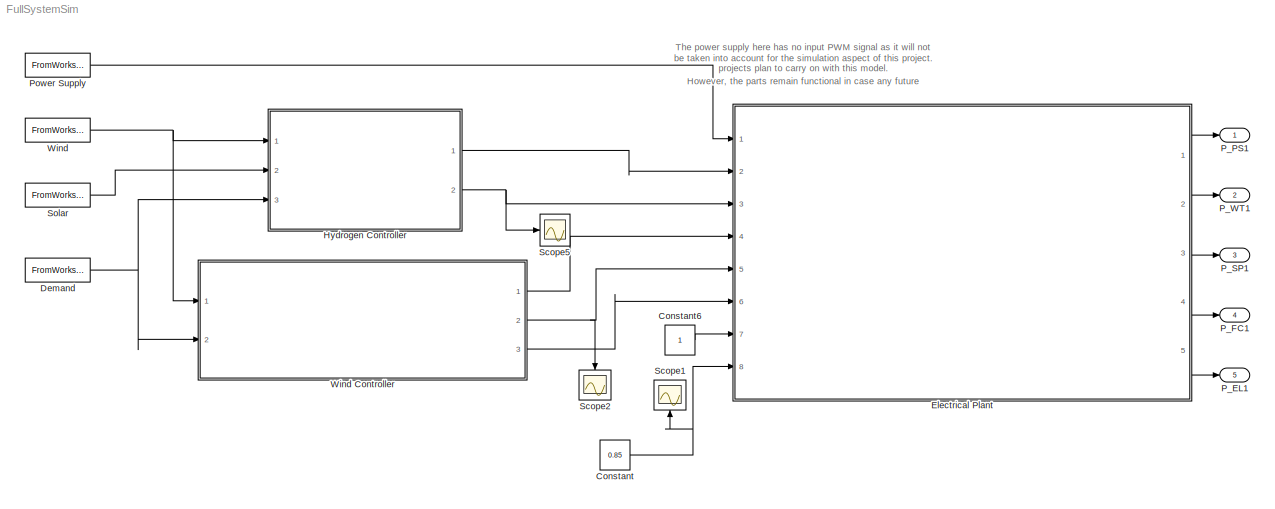
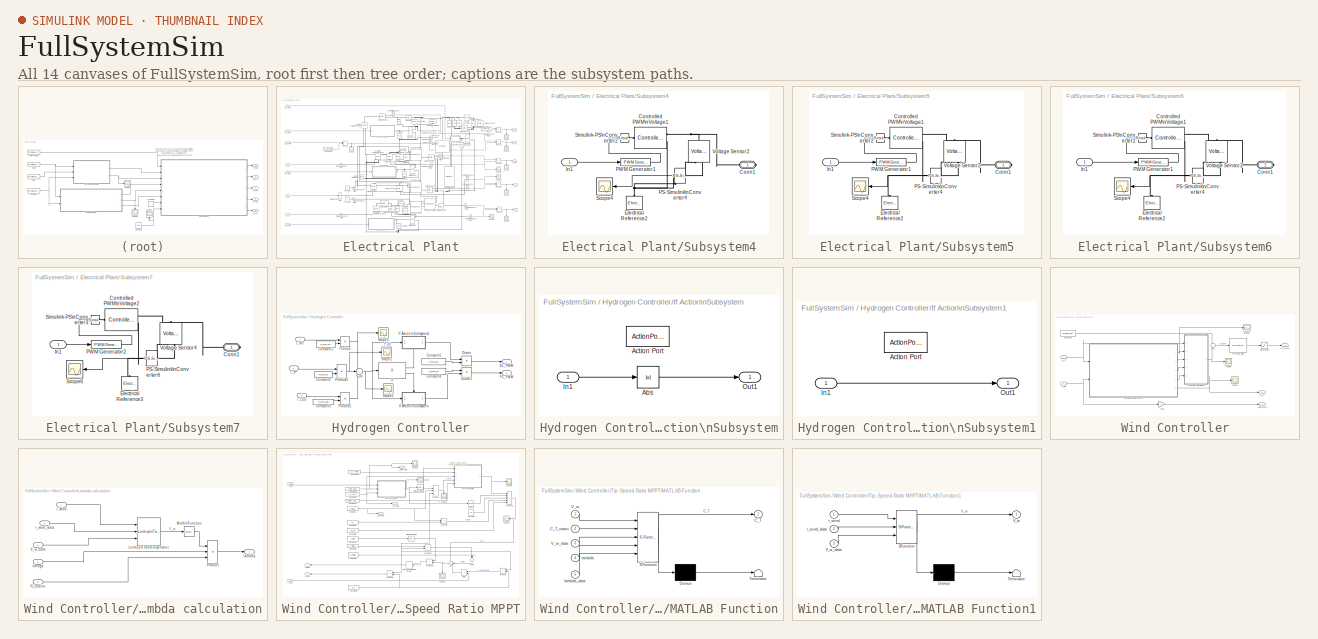
[diagram: thumbnail index - all 14 canvases of the model, root first then tree order]
MODEL FullSystemSim
KIND model
BLOCK [Constant] Constant
  SID = 1121
  Value = 0.85
BLOCK [Constant] Constant6
  SID = 1022
BLOCK [FromWorkspace] Demand
  Interpolate = off
  OutputAfterFinalValue = Holding final value
  SID = 970
  SampleTime = step_size
  VariableName = r_LED
  ZeroCross = on
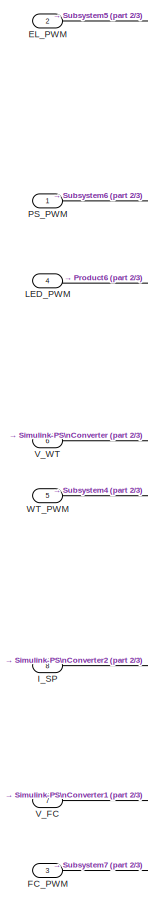
[diagram: Electrical Plant - part 1/3, left side, full height]
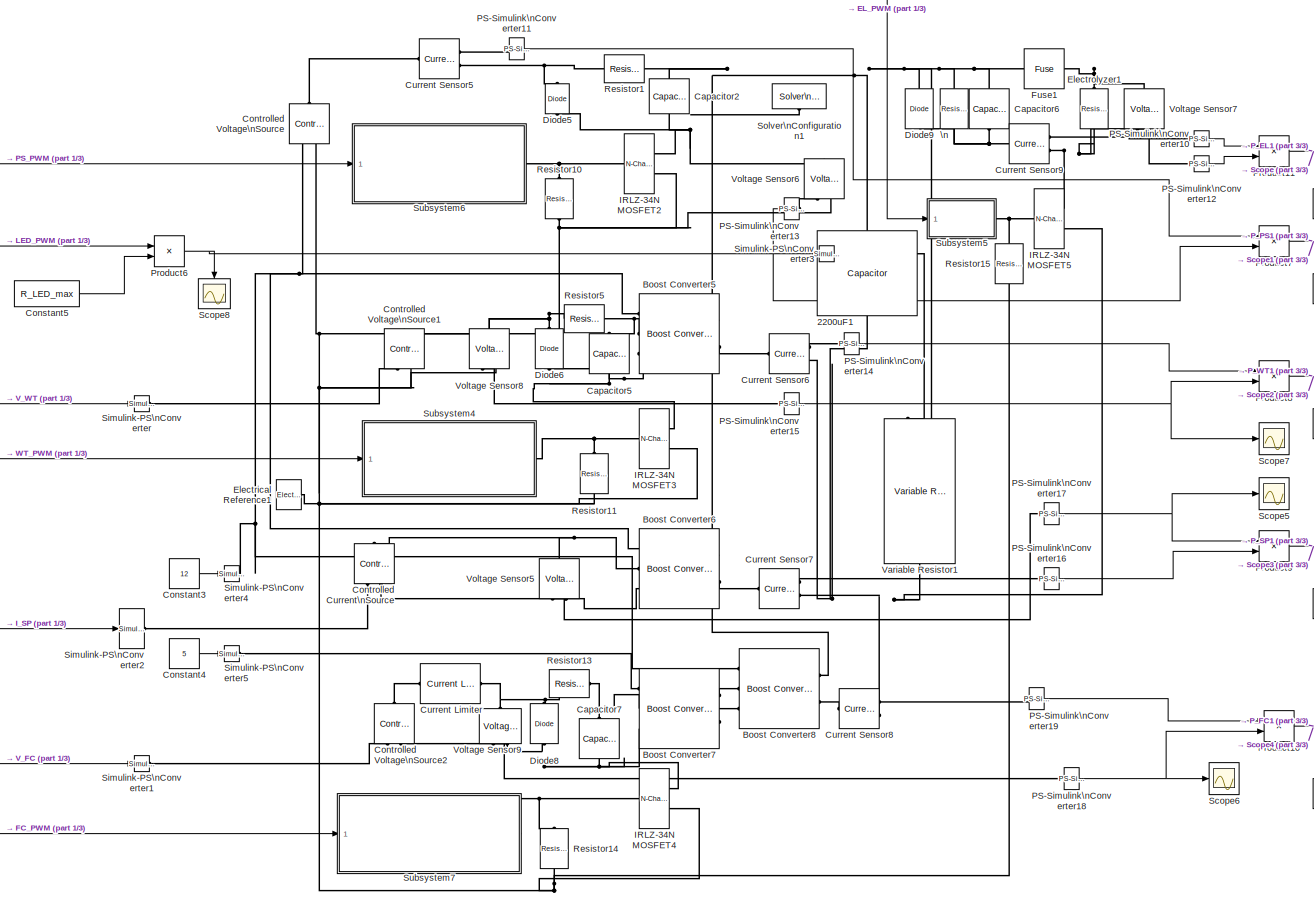
[diagram: Electrical Plant - part 2/3, most of the canvas]
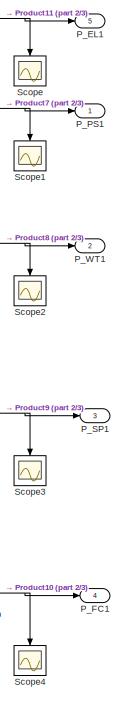
[diagram: Electrical Plant - part 3/3, middle right region]
BLOCK [SubSystem] Electrical Plant
  Ports = [8, 5]
  RequestExecContextInheritance = off
  SID = 825
BLOCK [Reference] Electrical Plant/2200uF1  REF=fl_lib/Electrical/Electrical Elements/Capacitor
  ClassName = capacitor
  ComponentPath = foundation.electrical.elements.capacitor
  ComponentVariantNames = capacitor
  ComponentVariants = foundation.electrical.elements.capacitor
  InternalSimscapePortConfiguration = {\"Bottom\":[],\"Left\":[{\"id\":\"p\",\"label\":\"+\",\"type\":\"foundation.electrical.electrical\"}],\"Right\":[{\"id\":\"n\",\"label\":\"-\",\"type\":\"foundation.electrical.electrical\"}],\"Top\":[]}  <repeated x15 — deduplicated; at blocks: 2200uF1, Capacitor2, Capacitor5, Capacitor6, Capacitor7, Current Limiter, Electrolyzer1, Resistor1, Resistor10, Resistor11, Resistor13, Resistor14, Resistor15, Resistor5, \n>
  LogSimulationData = off
  Ports = [0, 0, 0, 0, 0, 1, 1]
  SID = 576
  SchemaVersion = 1
  SourceBlock = fl_lib/Electrical/Electrical Elements/Capacitor
  SourceFile = foundation.electrical.elements.capacitor
  SourceProductBaseCode = SS
  SourceProductName = Simscape
  SourceType = Capacitor
  c = 2200
  c_conf = compiletime
  c_unit = uF
  g = 0
  g_conf = compiletime
  g_unit = 1/Ohm
  i = 0
  i_nominal_specify = off
  i_nominal_unit = A
  i_nominal_value = 1
  i_priority = None
  i_specify = off
  i_unit = A
  r = 0.014
  r_conf = compiletime
  r_unit = Ohm
  v = 0
  v_nominal_specify = off
  v_nominal_unit = V
  v_nominal_value = 1
  v_priority = None
  v_specify = off
  v_unit = V
  vc = 0
  vc_nominal_specify = off
  vc_nominal_unit = V
  vc_nominal_value = 1
  vc_priority = High
  vc_specify = off
  vc_unit = V
BLOCK [Reference] Electrical Plant/Boost Converter5  REF=ee_lib/Semiconductors &\nConverters/Converters/Boost Converter
  Cf = 1e-7
  Cf_conf = compiletime
  Cf_unit = F
  ClassName = Simscape variant
  ComponentPath = ee.semiconductors.converters.dcdc_converters.boost.ps
  ComponentVariantNames = PS control port, Electrical control ports, Synchronous converter
  ComponentVariants = ee.semiconductors.converters.dcdc_converters.boost.ps, ee.semiconductors.converters.dcdc_converters.boost.elec, ee.semiconductors.converters.dcdc_converters.boost.synchronous
  Cs = 1e-7
  Cs_conf = compiletime
  Cs_unit = F
  Goff = 1e-5
  Goff_conf = compiletime
  Goff_unit = 1/Ohm
  Ih = 1
  Ih_conf = compiletime
  Ih_unit = A
  InternalSimscapePortConfiguration = {\"Bottom\":[],\"Left\":[{\"id\":\"G\",\"label\":\"G\",\"type\":\"input\"},{\"id\":\"p1\",\"label\":\"1+\",\"type\":\"foundation.electrical.electrical\"},{\"id\":\"n1\",\"label\":\"1-\",\"type\":\"foundation.electrical.electrical\"}],\"Right\":[{\"id\":\"p2\",\"label\":\"2+\",\"type\":\"foundation.electrical.electrical\"},{\"id\":\"n2\",\"label\":\"2-\",\"type\":\"foundation.electrical.electrical\...<+15ch>  <repeated x4 — deduplicated; at blocks: Boost Converter5, Boost Converter6, Boost Converter7, Boost Converter8>
  Lf = 1e-6
  Lf_conf = compiletime
  Lf_unit = H
  LogSimulationData = off
  Ports = [0, 0, 0, 0, 0, 3, 2]
  Rds = 0.08
  Rds_conf = compiletime
  Rds_unit = Ohm
  Rf = 1e-6
  Rf_conf = compiletime
  Rf_unit = Ohm
  Ron = 0.001
  Ron_conf = compiletime
  Ron_unit = Ohm
  Rs = 0.1
  Rs_conf = compiletime
  Rs_unit = Ohm
  SID = 577
  SchemaVersion = 1
  SourceBlock = ee_lib/Semiconductors &\nConverters/Converters/Boost Converter
  SourceFile = ee.semiconductors.converters.dcdc_converters.boost.ps
  SourceProductBaseCode = PS
  SourceProductName = Simscape Electrical
  SourceType = Boost Converter
  Vf = 0.8
  Vf_conf = compiletime
  Vf_unit = V
  Vgt = 1
  Vgt_conf = compiletime
  Vgt_off = -1
  Vgt_off_conf = compiletime
  Vgt_off_unit = V
  Vgt_unit = V
  Vth = 2
  Vth_conf = compiletime
  Vth_unit = V
  device_type = 4
  device_type_conf = compiletime
  device_type_unit = 1
  diode_C = 50
  diode_C_conf = compiletime
  diode_C_unit = nF
  diode_Goff = 1e-5
  diode_Goff_conf = compiletime
  diode_Goff_unit = 1/Ohm
  diode_Qrr = 1500
  diode_Qrr_conf = compiletime
  diode_Qrr_unit = s*uA
  diode_Ron = 0.001
  diode_Ron_conf = compiletime
  diode_Ron_unit = Ohm
  diode_Vf = 0.8
  diode_Vf_conf = compiletime
  diode_Vf_unit = V
  diode_iF = 300
  diode_iF_conf = compiletime
  diode_iF_unit = A
  diode_iRM = -235
  diode_iRM_conf = compiletime
  diode_iRM_unit = A
  diode_idot = -50
  diode_idot_conf = compiletime
  diode_idot_unit = A/us
  diode_param = 2
  diode_param_conf = compiletime
  diode_param_unit = 1
  diode_trr = 15
  diode_trr_conf = compiletime
  diode_trr_factor = 3
  diode_trr_factor_conf = compiletime
  diode_trr_factor_unit = 1
  diode_trr_param = 1
  diode_trr_param_conf = compiletime
  diode_trr_param_unit = 1
  diode_trr_unit = us
  snubber_type = 0
  snubber_type_conf = compiletime
  snubber_type_unit = 1
BLOCK [Reference] Electrical Plant/Boost Converter6  REF=ee_lib/Semiconductors &\nConverters/Converters/Boost Converter
  Cf = 1e-7
  Cf_conf = compiletime
  Cf_unit = F
  ClassName = Simscape variant
  ComponentPath = ee.semiconductors.converters.dcdc_converters.boost.ps
  ComponentVariantNames = PS control port, Electrical control ports, Synchronous converter
  ComponentVariants = ee.semiconductors.converters.dcdc_converters.boost.ps, ee.semiconductors.converters.dcdc_converters.boost.elec, ee.semiconductors.converters.dcdc_converters.boost.synchronous
  Cs = 1e-7
  Cs_conf = compiletime
  Cs_unit = F
  Goff = 1e-5
  Goff_conf = compiletime
  Goff_unit = 1/Ohm
  Ih = 1
  Ih_conf = compiletime
  Ih_unit = A
  Lf = 1e-6
  Lf_conf = compiletime
  Lf_unit = H
  LogSimulationData = off
  Ports = [0, 0, 0, 0, 0, 3, 2]
  Rds = 0.08
  Rds_conf = compiletime
  Rds_unit = Ohm
  Rf = 1e-6
  Rf_conf = compiletime
  Rf_unit = Ohm
  Ron = 0.001
  Ron_conf = compiletime
  Ron_unit = Ohm
  Rs = 0.1
  Rs_conf = compiletime
  Rs_unit = Ohm
  SID = 578
  SchemaVersion = 1
  SourceBlock = ee_lib/Semiconductors &\nConverters/Converters/Boost Converter
  SourceFile = ee.semiconductors.converters.dcdc_converters.boost.ps
  SourceProductBaseCode = PS
  SourceProductName = Simscape Electrical
  SourceType = Boost Converter
  Vf = 0.8
  Vf_conf = compiletime
  Vf_unit = V
  Vgt = 1
  Vgt_conf = compiletime
  Vgt_off = -1
  Vgt_off_conf = compiletime
  Vgt_off_unit = V
  Vgt_unit = V
  Vth = 2
  Vth_conf = compiletime
  Vth_unit = V
  device_type = 4
  device_type_conf = compiletime
  device_type_unit = 1
  diode_C = 50
  diode_C_conf = compiletime
  diode_C_unit = nF
  diode_Goff = 1e-5
  diode_Goff_conf = compiletime
  diode_Goff_unit = 1/Ohm
  diode_Qrr = 1500
  diode_Qrr_conf = compiletime
  diode_Qrr_unit = s*uA
  diode_Ron = 0.001
  diode_Ron_conf = compiletime
  diode_Ron_unit = Ohm
  diode_Vf = 0.8
  diode_Vf_conf = compiletime
  diode_Vf_unit = V
  diode_iF = 300
  diode_iF_conf = compiletime
  diode_iF_unit = A
  diode_iRM = -235
  diode_iRM_conf = compiletime
  diode_iRM_unit = A
  diode_idot = -50
  diode_idot_conf = compiletime
  diode_idot_unit = A/us
  diode_param = 2
  diode_param_conf = compiletime
  diode_param_unit = 1
  diode_trr = 15
  diode_trr_conf = compiletime
  diode_trr_factor = 3
  diode_trr_factor_conf = compiletime
  diode_trr_factor_unit = 1
  diode_trr_param = 1
  diode_trr_param_conf = compiletime
  diode_trr_param_unit = 1
  diode_trr_unit = us
  snubber_type = 0
  snubber_type_conf = compiletime
  snubber_type_unit = 1
BLOCK [Reference] Electrical Plant/Boost Converter7  REF=ee_lib/Semiconductors &\nConverters/Converters/Boost Converter
  Cf = 1e-7
  Cf_conf = compiletime
  Cf_unit = F
  ClassName = Simscape variant
  ComponentPath = ee.semiconductors.converters.dcdc_converters.boost.ps
  ComponentVariantNames = PS control port, Electrical control ports, Synchronous converter
  ComponentVariants = ee.semiconductors.converters.dcdc_converters.boost.ps, ee.semiconductors.converters.dcdc_converters.boost.elec, ee.semiconductors.converters.dcdc_converters.boost.synchronous
  Cs = 1e-7
  Cs_conf = compiletime
  Cs_unit = F
  Goff = 1e-5
  Goff_conf = compiletime
  Goff_unit = 1/Ohm
  Ih = 1
  Ih_conf = compiletime
  Ih_unit = A
  Lf = 1e-6
  Lf_conf = compiletime
  Lf_unit = H
  LogSimulationData = off
  Ports = [0, 0, 0, 0, 0, 3, 2]
  Rds = 0.080
  Rds_conf = compiletime
  Rds_unit = Ohm
  Rf = 1e-6
  Rf_conf = compiletime
  Rf_unit = Ohm
  Ron = 0.001
  Ron_conf = compiletime
  Ron_unit = Ohm
  Rs = 0.1
  Rs_conf = compiletime
  Rs_unit = Ohm
  SID = 579
  SchemaVersion = 1
  SourceBlock = ee_lib/Semiconductors &\nConverters/Converters/Boost Converter
  SourceFile = ee.semiconductors.converters.dcdc_converters.boost.ps
  SourceProductBaseCode = PS
  SourceProductName = Simscape Electrical
  SourceType = Boost Converter
  Vf = 0.8
  Vf_conf = compiletime
  Vf_unit = V
  Vgt = 1
  Vgt_conf = compiletime
  Vgt_off = -1
  Vgt_off_conf = compiletime
  Vgt_off_unit = V
  Vgt_unit = V
  Vth = 0.9
  Vth_conf = compiletime
  Vth_unit = V
  device_type = 4
  device_type_conf = compiletime
  device_type_unit = 1
  diode_C = 50
  diode_C_conf = compiletime
  diode_C_unit = nF
  diode_Goff = 1e-5
  diode_Goff_conf = compiletime
  diode_Goff_unit = 1/Ohm
  diode_Qrr = 1500
  diode_Qrr_conf = compiletime
  diode_Qrr_unit = s*uA
  diode_Ron = 0.001
  diode_Ron_conf = compiletime
  diode_Ron_unit = Ohm
  diode_Vf = 0.8
  diode_Vf_conf = compiletime
  diode_Vf_unit = V
  diode_iF = 300
  diode_iF_conf = compiletime
  diode_iF_unit = A
  diode_iRM = -235
  diode_iRM_conf = compiletime
  diode_iRM_unit = A
  diode_idot = -50
  diode_idot_conf = compiletime
  diode_idot_unit = A/us
  diode_param = 2
  diode_param_conf = compiletime
  diode_param_unit = 1
  diode_trr = 15
  diode_trr_conf = compiletime
  diode_trr_factor = 3
  diode_trr_factor_conf = compiletime
  diode_trr_factor_unit = 1
  diode_trr_param = 1
  diode_trr_param_conf = compiletime
  diode_trr_param_unit = 1
  diode_trr_unit = us
  snubber_type = 0
  snubber_type_conf = compiletime
  snubber_type_unit = 1
BLOCK [Reference] Electrical Plant/Boost Converter8  REF=ee_lib/Semiconductors &\nConverters/Converters/Boost Converter
  Cf = 1e-7
  Cf_conf = compiletime
  Cf_unit = F
  ClassName = Simscape variant
  ComponentPath = ee.semiconductors.converters.dcdc_converters.boost.ps
  ComponentVariantNames = PS control port, Electrical control ports, Synchronous converter
  ComponentVariants = ee.semiconductors.converters.dcdc_converters.boost.ps, ee.semiconductors.converters.dcdc_converters.boost.elec, ee.semiconductors.converters.dcdc_converters.boost.synchronous
  Cs = 1e-7
  Cs_conf = compiletime
  Cs_unit = F
  Goff = 1e-5
  Goff_conf = compiletime
  Goff_unit = 1/Ohm
  Ih = 1
  Ih_conf = compiletime
  Ih_unit = A
  Lf = 1e-6
  Lf_conf = compiletime
  Lf_unit = H
  LogSimulationData = off
  Ports = [0, 0, 0, 0, 0, 3, 2]
  Rds = 0.08
  Rds_conf = compiletime
  Rds_unit = Ohm
  Rf = 1e-6
  Rf_conf = compiletime
  Rf_unit = Ohm
  Ron = 0.001
  Ron_conf = compiletime
  Ron_unit = Ohm
  Rs = 0.1
  Rs_conf = compiletime
  Rs_unit = Ohm
  SID = 580
  SchemaVersion = 1
  SourceBlock = ee_lib/Semiconductors &\nConverters/Converters/Boost Converter
  SourceFile = ee.semiconductors.converters.dcdc_converters.boost.ps
  SourceProductBaseCode = PS
  SourceProductName = Simscape Electrical
  SourceType = Boost Converter
  Vf = 0.8
  Vf_conf = compiletime
  Vf_unit = V
  Vgt = 1
  Vgt_conf = compiletime
  Vgt_off = -1
  Vgt_off_conf = compiletime
  Vgt_off_unit = V
  Vgt_unit = V
  Vth = 2
  Vth_conf = compiletime
  Vth_unit = V
  device_type = 4
  device_type_conf = compiletime
  device_type_unit = 1
  diode_C = 50
  diode_C_conf = compiletime
  diode_C_unit = nF
  diode_Goff = 1e-5
  diode_Goff_conf = compiletime
  diode_Goff_unit = 1/Ohm
  diode_Qrr = 1500
  diode_Qrr_conf = compiletime
  diode_Qrr_unit = s*uA
  diode_Ron = 0.001
  diode_Ron_conf = compiletime
  diode_Ron_unit = Ohm
  diode_Vf = 0.8
  diode_Vf_conf = compiletime
  diode_Vf_unit = V
  diode_iF = 300
  diode_iF_conf = compiletime
  diode_iF_unit = A
  diode_iRM = -235
  diode_iRM_conf = compiletime
  diode_iRM_unit = A
  diode_idot = -50
  diode_idot_conf = compiletime
  diode_idot_unit = A/us
  diode_param = 2
  diode_param_conf = compiletime
  diode_param_unit = 1
  diode_trr = 15
  diode_trr_conf = compiletime
  diode_trr_factor = 3
  diode_trr_factor_conf = compiletime
  diode_trr_factor_unit = 1
  diode_trr_param = 1
  diode_trr_param_conf = compiletime
  diode_trr_param_unit = 1
  diode_trr_unit = us
  snubber_type = 0
  snubber_type_conf = compiletime
  snubber_type_unit = 1
BLOCK [Reference] Electrical Plant/Capacitor2  REF=fl_lib/Electrical/Electrical Elements/Capacitor
  ClassName = capacitor
  ComponentPath = foundation.electrical.elements.capacitor
  ComponentVariantNames = capacitor
  ComponentVariants = foundation.electrical.elements.capacitor
  LogSimulationData = off
  Ports = [0, 0, 0, 0, 0, 1, 1]
  SID = 581
  SchemaVersion = 1
  SourceBlock = fl_lib/Electrical/Electrical Elements/Capacitor
  SourceFile = foundation.electrical.elements.capacitor
  SourceProductBaseCode = SS
  SourceProductName = Simscape
  SourceType = Capacitor
  c = 1000
  c_conf = compiletime
  c_unit = uF
  g = 0
  g_conf = compiletime
  g_unit = 1/Ohm
  i = 0
  i_nominal_specify = off
  i_nominal_unit = A
  i_nominal_value = 1
  i_priority = None
  i_specify = off
  i_unit = A
  r = 0.02
  r_conf = compiletime
  r_unit = Ohm
  v = 0
  v_nominal_specify = off
  v_nominal_unit = V
  v_nominal_value = 1
  v_priority = None
  v_specify = off
  v_unit = V
  vc = 0
  vc_nominal_specify = off
  vc_nominal_unit = V
  vc_nominal_value = 1
  vc_priority = High
  vc_specify = off
  vc_unit = V
BLOCK [Reference] Electrical Plant/Capacitor5  REF=fl_lib/Electrical/Electrical Elements/Capacitor
  ClassName = capacitor
  ComponentPath = foundation.electrical.elements.capacitor
  ComponentVariantNames = capacitor
  ComponentVariants = foundation.electrical.elements.capacitor
  LogSimulationData = off
  Ports = [0, 0, 0, 0, 0, 1, 1]
  SID = 582
  SchemaVersion = 1
  SourceBlock = fl_lib/Electrical/Electrical Elements/Capacitor
  SourceFile = foundation.electrical.elements.capacitor
  SourceProductBaseCode = SS
  SourceProductName = Simscape
  SourceType = Capacitor
  c = 1000
  c_conf = compiletime
  c_unit = uF
  g = 0
  g_conf = compiletime
  g_unit = 1/Ohm
  i = 0
  i_nominal_specify = off
  i_nominal_unit = A
  i_nominal_value = 1
  i_priority = None
  i_specify = off
  i_unit = A
  r = 0.02
  r_conf = compiletime
  r_unit = Ohm
  v = 0
  v_nominal_specify = off
  v_nominal_unit = V
  v_nominal_value = 1
  v_priority = None
  v_specify = off
  v_unit = V
  vc = 0
  vc_nominal_specify = off
  vc_nominal_unit = V
  vc_nominal_value = 1
  vc_priority = High
  vc_specify = off
  vc_unit = V
BLOCK [Reference] Electrical Plant/Capacitor6  REF=fl_lib/Electrical/Electrical Elements/Capacitor
  ClassName = capacitor
  ComponentPath = foundation.electrical.elements.capacitor
  ComponentVariantNames = capacitor
  ComponentVariants = foundation.electrical.elements.capacitor
  LogSimulationData = off
  Ports = [0, 0, 0, 0, 0, 1, 1]
  SID = 583
  SchemaVersion = 1
  SourceBlock = fl_lib/Electrical/Electrical Elements/Capacitor
  SourceFile = foundation.electrical.elements.capacitor
  SourceProductBaseCode = SS
  SourceProductName = Simscape
  SourceType = Capacitor
  c = 1000
  c_conf = compiletime
  c_unit = uF
  g = 0
  g_conf = compiletime
  g_unit = 1/Ohm
  i = 0
  i_nominal_specify = off
  i_nominal_unit = A
  i_nominal_value = 1
  i_priority = None
  i_specify = off
  i_unit = A
  r = 0.20
  r_conf = compiletime
  r_unit = Ohm
  v = 0
  v_nominal_specify = off
  v_nominal_unit = V
  v_nominal_value = 1
  v_priority = None
  v_specify = off
  v_unit = V
  vc = 0
  vc_nominal_specify = off
  vc_nominal_unit = V
  vc_nominal_value = 1
  vc_priority = High
  vc_specify = off
  vc_unit = V
BLOCK [Reference] Electrical Plant/Capacitor7  REF=fl_lib/Electrical/Electrical Elements/Capacitor
  ClassName = capacitor
  ComponentPath = foundation.electrical.elements.capacitor
  ComponentVariantNames = capacitor
  ComponentVariants = foundation.electrical.elements.capacitor
  LogSimulationData = off
  Ports = [0, 0, 0, 0, 0, 1, 1]
  SID = 584
  SchemaVersion = 1
  SourceBlock = fl_lib/Electrical/Electrical Elements/Capacitor
  SourceFile = foundation.electrical.elements.capacitor
  SourceProductBaseCode = SS
  SourceProductName = Simscape
  SourceType = Capacitor
  c = 1000
  c_conf = compiletime
  c_unit = uF
  g = 0
  g_conf = compiletime
  g_unit = 1/Ohm
  i = 0
  i_nominal_specify = off
  i_nominal_unit = A
  i_nominal_value = 1
  i_priority = None
  i_specify = off
  i_unit = A
  r = 0.02
  r_conf = compiletime
  r_unit = Ohm
  v = 0
  v_nominal_specify = off
  v_nominal_unit = V
  v_nominal_value = 1
  v_priority = None
  v_specify = off
  v_unit = V
  vc = 0
  vc_nominal_specify = off
  vc_nominal_unit = V
  vc_nominal_value = 1
  vc_priority = High
  vc_specify = off
  vc_unit = V
BLOCK [Constant] Electrical Plant/Constant3
  SID = 585
  Value = 12
BLOCK [Constant] Electrical Plant/Constant4
  SID = 586
  Value = 5
BLOCK [Constant] Electrical Plant/Constant5
  SID = 587
  Value = R_LED_max
BLOCK [Reference] Electrical Plant/Controlled Current\nSource  REF=fl_lib/Electrical/Electrical Sources/Controlled Current\nSource
  ClassName = controlled_current
  ComponentPath = foundation.electrical.sources.controlled_current
  ComponentVariantNames = controlled_current
  ComponentVariants = foundation.electrical.sources.controlled_current
  InternalSimscapePortConfiguration = {\"Bottom\":[],\"Left\":[{\"id\":\"head\",\"label\":\"\",\"type\":\"foundation.electrical.electrical\"}],\"Right\":[{\"id\":\"iT\",\"label\":\"\",\"type\":\"input\"},{\"id\":\"tail\",\"label\":\"\",\"type\":\"foundation.electrical.electrical\"}],\"Top\":[]}
  LogSimulationData = off
  Ports = [0, 0, 0, 0, 0, 1, 2]
  SID = 1014
  SchemaVersion = 1
  SourceBlock = fl_lib/Electrical/Electrical Sources/Controlled Current\nSource
  SourceFile = foundation.electrical.sources.controlled_current
  SourceProductBaseCode = SS
  SourceProductName = Simscape
  SourceType = Controlled Current\nSource
BLOCK [Reference] Electrical Plant/Controlled Voltage\nSource  REF=fl_lib/Electrical/Electrical Sources/Controlled Voltage\nSource
  ClassName = controlled_voltage
  ComponentPath = foundation.electrical.sources.controlled_voltage
  ComponentVariantNames = controlled_voltage
  ComponentVariants = foundation.electrical.sources.controlled_voltage
  InternalSimscapePortConfiguration = {\"Bottom\":[],\"Left\":[{\"id\":\"p\",\"label\":\"\",\"type\":\"foundation.electrical.electrical\"}],\"Right\":[{\"id\":\"vT\",\"label\":\"\",\"type\":\"input\"},{\"id\":\"n\",\"label\":\"\",\"type\":\"foundation.electrical.electrical\"}],\"Top\":[]}  <repeated x3 — deduplicated; at blocks: Controlled Voltage\nSource, Controlled Voltage\nSource1, Controlled Voltage\nSource2>
  LogSimulationData = off
  Ports = [0, 0, 0, 0, 0, 1, 2]
  SID = 1110
  SchemaVersion = 1
  SourceBlock = fl_lib/Electrical/Electrical Sources/Controlled Voltage\nSource
  SourceFile = foundation.electrical.sources.controlled_voltage
  SourceProductBaseCode = SS
  SourceProductName = Simscape
  SourceType = Controlled Voltage\nSource
BLOCK [Reference] Electrical Plant/Controlled Voltage\nSource1  REF=fl_lib/Electrical/Electrical Sources/Controlled Voltage\nSource
  ClassName = controlled_voltage
  ComponentPath = foundation.electrical.sources.controlled_voltage
  ComponentVariantNames = controlled_voltage
  ComponentVariants = foundation.electrical.sources.controlled_voltage
  LogSimulationData = off
  Ports = [0, 0, 0, 0, 0, 1, 2]
  SID = 1004
  SchemaVersion = 1
  SourceBlock = fl_lib/Electrical/Electrical Sources/Controlled Voltage\nSource
  SourceFile = foundation.electrical.sources.controlled_voltage
  SourceProductBaseCode = SS
  SourceProductName = Simscape
  SourceType = Controlled Voltage\nSource
BLOCK [Reference] Electrical Plant/Controlled Voltage\nSource2  REF=fl_lib/Electrical/Electrical Sources/Controlled Voltage\nSource
  ClassName = controlled_voltage
  ComponentPath = foundation.electrical.sources.controlled_voltage
  ComponentVariantNames = controlled_voltage
  ComponentVariants = foundation.electrical.sources.controlled_voltage
  LogSimulationData = off
  Ports = [0, 0, 0, 0, 0, 1, 2]
  SID = 1008
  SchemaVersion = 1
  SourceBlock = fl_lib/Electrical/Electrical Sources/Controlled Voltage\nSource
  SourceFile = foundation.electrical.sources.controlled_voltage
  SourceProductBaseCode = SS
  SourceProductName = Simscape
  SourceType = Controlled Voltage\nSource
BLOCK [Reference] Electrical Plant/Current Limiter  REF=ee_lib/Semiconductors &\nConverters/Current Limiter
  ClassName = Simscape variant
  ComponentPath = ee.semiconductors.current_limiter
  ComponentVariantNames = No thermal port, Show thermal port
  ComponentVariants = ee.semiconductors.current_limiter, ee.semiconductors.current_limiter_thermal
  LogSimulationData = off
  Ports = [0, 0, 0, 0, 0, 1, 1]
  SID = 993
  SchemaVersion = 1
  SourceBlock = ee_lib/Semiconductors &\nConverters/Current Limiter
  SourceFile = ee.semiconductors.current_limiter
  SourceProductBaseCode = PS
  SourceProductName = Simscape Electrical
  SourceType = Current Limiter
  gLim = 1e-3
  gLim_conf = compiletime
  gLim_unit = 1/Ohm
  iLim = 1.2
  iLim_conf = compiletime
  iLim_unit = A
  initial_temperature = 298.15
  initial_temperature_conf = compiletime
  initial_temperature_unit = K
  thermal_mass = 100
  thermal_mass_conf = compiletime
  thermal_mass_unit = J/K
  vLim = 0.4
  vLim_conf = compiletime
  vLim_unit = V
BLOCK [Reference] Electrical Plant/Current Sensor5  REF=fl_lib/Electrical/Electrical Sensors/Current Sensor
  ClassName = current
  ComponentPath = foundation.electrical.sensors.current
  ComponentVariantNames = current
  ComponentVariants = foundation.electrical.sensors.current
  InternalSimscapePortConfiguration = {\"Bottom\":[],\"Left\":[{\"id\":\"p\",\"label\":\"+\",\"type\":\"foundation.electrical.electrical\"}],\"Right\":[{\"id\":\"I\",\"label\":\"I\",\"type\":\"output\"},{\"id\":\"n\",\"label\":\"-\",\"type\":\"foundation.electrical.electrical\"}],\"Top\":[]}  <repeated x5 — deduplicated; at blocks: Current Sensor5, Current Sensor6, Current Sensor7, Current Sensor8, Current Sensor9>
  LogSimulationData = off
  Ports = [0, 0, 0, 0, 0, 1, 2]
  SID = 588
  SchemaVersion = 1
  SourceBlock = fl_lib/Electrical/Electrical Sensors/Current Sensor
  SourceFile = foundation.electrical.sensors.current
  SourceProductBaseCode = SS
  SourceProductName = Simscape
  SourceType = Current Sensor
BLOCK [Reference] Electrical Plant/Current Sensor6  REF=fl_lib/Electrical/Electrical Sensors/Current Sensor
  ClassName = current
  ComponentPath = foundation.electrical.sensors.current
  ComponentVariantNames = current
  ComponentVariants = foundation.electrical.sensors.current
  LogSimulationData = off
  Ports = [0, 0, 0, 0, 0, 1, 2]
  SID = 589
  SchemaVersion = 1
  SourceBlock = fl_lib/Electrical/Electrical Sensors/Current Sensor
  SourceFile = foundation.electrical.sensors.current
  SourceProductBaseCode = SS
  SourceProductName = Simscape
  SourceType = Current Sensor
BLOCK [Reference] Electrical Plant/Current Sensor7  REF=fl_lib/Electrical/Electrical Sensors/Current Sensor
  ClassName = current
  ComponentPath = foundation.electrical.sensors.current
  ComponentVariantNames = current
  ComponentVariants = foundation.electrical.sensors.current
  LogSimulationData = off
  Ports = [0, 0, 0, 0, 0, 1, 2]
  SID = 590
  SchemaVersion = 1
  SourceBlock = fl_lib/Electrical/Electrical Sensors/Current Sensor
  SourceFile = foundation.electrical.sensors.current
  SourceProductBaseCode = SS
  SourceProductName = Simscape
  SourceType = Current Sensor
BLOCK [Reference] Electrical Plant/Current Sensor8  REF=fl_lib/Electrical/Electrical Sensors/Current Sensor
  ClassName = current
  ComponentPath = foundation.electrical.sensors.current
  ComponentVariantNames = current
  ComponentVariants = foundation.electrical.sensors.current
  LogSimulationData = off
  Ports = [0, 0, 0, 0, 0, 1, 2]
  SID = 591
  SchemaVersion = 1
  SourceBlock = fl_lib/Electrical/Electrical Sensors/Current Sensor
  SourceFile = foundation.electrical.sensors.current
  SourceProductBaseCode = SS
  SourceProductName = Simscape
  SourceType = Current Sensor
BLOCK [Reference] Electrical Plant/Current Sensor9  REF=fl_lib/Electrical/Electrical Sensors/Current Sensor
  ClassName = current
  ComponentPath = foundation.electrical.sensors.current
  ComponentVariantNames = current
  ComponentVariants = foundation.electrical.sensors.current
  LogSimulationData = off
  Ports = [0, 0, 0, 0, 0, 1, 2]
  SID = 592
  SchemaVersion = 1
  SourceBlock = fl_lib/Electrical/Electrical Sensors/Current Sensor
  SourceFile = foundation.electrical.sensors.current
  SourceProductBaseCode = SS
  SourceProductName = Simscape
  SourceType = Current Sensor
BLOCK [Reference] Electrical Plant/Diode5  REF=ee_lib/Semiconductors &\nConverters/Diode
  BV = inf
  BV_conf = compiletime
  BV_unit = V
  CJ = 5
  CJ0 = 5
  CJ0_conf = compiletime
  CJ0_unit = pF
  CJ_conf = compiletime
  CJ_unit = pF
  C_param = ee.enum.diode.capParam.fixed
  C_param_conf = compiletime
  C_param_unit = 1
  ClassName = Simscape variant
  ComponentPath = ee.semiconductors.diode
  ComponentVariantNames = No thermal port, Show thermal port
  ComponentVariants = ee.semiconductors.diode, ee.semiconductors.diode_thermal
  Cvec = [3.5, 1, .4]
  Cvec_conf = compiletime
  Cvec_unit = pF
  EG = 1.11
  EG_conf = compiletime
  EG_param = ee.enum.diode.egapParam.material_si
  EG_param_conf = compiletime
  EG_param_unit = 1
  EG_unit = eV
  FC = 0.5
  FC_conf = compiletime
  FC_unit = 1
  Goff = 1e-8
  Goff_conf = compiletime
  Goff_unit = S
  I1 = 0.0137
  I12 = [.0137, .545]
  I12_conf = compiletime
  I12_unit = A
  I1_T2 = 0.245
  I1_T2_conf = compiletime
  I1_T2_unit = A
  I1_conf = compiletime
  I1_unit = A
  IS = 1e-12
  IS_T2 = 1.25e-7
  IS_T2_conf = compiletime
  IS_T2_unit = A
  IS_conf = compiletime
  IS_unit = A
  InternalSimscapePortConfiguration = {\"Bottom\":[],\"Left\":[{\"id\":\"p\",\"label\":\"\",\"type\":\"foundation.electrical.electrical\"}],\"Right\":[{\"id\":\"n\",\"label\":\"\",\"type\":\"foundation.electrical.electrical\"}],\"Top\":[]}  <repeated x5 — deduplicated; at blocks: Diode5, Diode6, Diode8, Diode9, Fuse1>
  LogSimulationData = off
  Mgrad = 0.5
  Mgrad_conf = compiletime
  Mgrad_unit = 1
  ModelType = ee.enum.diode.modelType.pwl
  ModelType_conf = compiletime
  ModelType_unit = 1
  N_parallel = 1
  N_parallel_conf = compiletime
  N_parallel_unit = 1
  N_series = 1
  N_series_conf = compiletime
  N_series_unit = 1
  Ports = [0, 0, 0, 0, 0, 1, 1]
  Q_param = ee.enum.diode.recoveryParam.off
  Q_param_conf = compiletime
  Q_param_unit = 1
  Qrr = 1500
  Qrr_conf = compiletime
  Qrr_unit = s*uA
  RS = 0
  RS_conf = compiletime
  RS_unit = Ohm
  Ron = 0.3
  Ron_conf = compiletime
  Ron_unit = Ohm
  Rth = [0, 10]
  Rth_Foster = [4, 6]
  Rth_Foster_conf = compiletime
  Rth_Foster_unit = K/W
  Rth_conf = compiletime
  Rth_unit = K/W
  Rz = 0.3
  Rz_conf = compiletime
  Rz_unit = Ohm
  SID = 596
  SchemaVersion = 1
  SourceBlock = ee_lib/Semiconductors &\nConverters/Diode
  SourceFile = ee.semiconductors.diode
  SourceProductBaseCode = PS
  SourceProductName = Simscape Electrical
  SourceType = Diode
  TT = 50
  TT_conf = compiletime
  TT_unit = ns
  T_param = ee.enum.diode.temperatureParam.off
  T_param_conf = compiletime
  T_param_unit = 1
  Tdevice = 25
  Tdevice_conf = compiletime
  Tdevice_unit = degC
  Tmeas = 25
  Tmeas2 = 125
  Tmeas2_conf = compiletime
  Tmeas2_unit = degC
  Tmeas_conf = compiletime
  Tmeas_unit = degC
  V1 = 0.6
  V12 = [.6, .7]
  V12_conf = compiletime
  V12_unit = V
  V1_T2 = 0.5
  V1_T2_conf = compiletime
  V1_T2_unit = V
  V1_conf = compiletime
  V1_unit = V
  VJ = 1
  VJ_conf = compiletime
  VJ_unit = V
  Vf = 0.6
  Vf_conf = compiletime
  Vf_unit = V
  Vvec = [.1, 10, 100]
  Vvec_conf = compiletime
  Vvec_unit = V
  XTI = 3
  XTI_conf = compiletime
  XTI_param = ee.enum.diode.xtiParam.pn
  XTI_param_conf = compiletime
  XTI_param_unit = 1
  XTI_unit = 1
  dBVdT = 0
  dBVdT_conf = compiletime
  dBVdT_unit = V/K
  didt = -750
  didt_conf = compiletime
  didt_unit = A/us
  ec = 1
  ec_conf = compiletime
  ec_unit = 1
  i = 0
  iF = 4
  iF_conf = compiletime
  iF_unit = A
  iRM = -7.15
  iRM_conf = compiletime
  iRM_unit = A
  i_capacitor = 0
  i_capacitor_nominal_specify = off
  i_capacitor_nominal_unit = A
  i_capacitor_nominal_value = 1
  i_capacitor_priority = None
  i_capacitor_specify = off
  i_capacitor_unit = A
  i_nominal_specify = off
  i_nominal_unit = A
  i_nominal_value = 1
  i_priority = None
  i_specify = off
  i_unit = A
  power_dissipated = 0
  power_dissipated_nominal_specify = off
  power_dissipated_nominal_unit = W
  power_dissipated_nominal_value = 1
  power_dissipated_priority = None
  power_dissipated_specify = off
  power_dissipated_unit = W
  prmExp = ee.enum.diode.expParam.useTwo
  prmExp_conf = compiletime
  prmExp_unit = 1
  tau = 100
  tau_conf = compiletime
  tau_unit = ns
  thermal_mass = [0, 1]
  thermal_mass_Foster = [1.5, 3]
  thermal_mass_Foster_conf = compiletime
  thermal_mass_Foster_unit = J/K
  thermal_mass_conf = compiletime
  thermal_mass_initial_temperatures = [25, 25]
  thermal_mass_initial_temperatures_conf = compiletime
  thermal_mass_initial_temperatures_unit = degC
  thermal_mass_parameterization = ee.enum.thermalNetwork.timeconstant
  thermal_mass_parameterization_conf = compiletime
  thermal_mass_parameterization_unit = 1
  thermal_mass_unit = J/K
  thermal_network_parameterization = ee.enum.thermalNetworkTopology.cauer
  thermal_network_parameterization_conf = compiletime
  thermal_network_parameterization_unit = 1
  thermal_time_constant = [0, 10]
  thermal_time_constant_Foster = [6, 18]
  thermal_time_constant_Foster_conf = compiletime
  thermal_time_constant_Foster_unit = s
  thermal_time_constant_conf = compiletime
  thermal_time_constant_unit = s
  trr = 115
  trr_conf = compiletime
  trr_factor = 3
  trr_factor_conf = compiletime
  trr_factor_unit = 1
  trr_unit = ns
  v = 0
  v_capacitor = 0
  v_capacitor_nominal_specify = off
  v_capacitor_nominal_unit = V
  v_capacitor_nominal_value = 1
  v_capacitor_priority = None
  v_capacitor_specify = off
  v_capacitor_unit = V
  v_nominal_specify = off
  v_nominal_unit = V
  v_nominal_value = 1
  v_priority = None
  v_specify = off
  v_unit = V
BLOCK [Reference] Electrical Plant/Diode6  REF=ee_lib/Semiconductors &\nConverters/Diode
  BV = inf
  BV_conf = compiletime
  BV_unit = V
  CJ = 5
  CJ0 = 5
  CJ0_conf = compiletime
  CJ0_unit = pF
  CJ_conf = compiletime
  CJ_unit = pF
  C_param = ee.enum.diode.capParam.fixed
  C_param_conf = compiletime
  C_param_unit = 1
  ClassName = Simscape variant
  ComponentPath = ee.semiconductors.diode
  ComponentVariantNames = No thermal port, Show thermal port
  ComponentVariants = ee.semiconductors.diode, ee.semiconductors.diode_thermal
  Cvec = [3.5, 1, .4]
  Cvec_conf = compiletime
  Cvec_unit = pF
  EG = 1.11
  EG_conf = compiletime
  EG_param = ee.enum.diode.egapParam.material_si
  EG_param_conf = compiletime
  EG_param_unit = 1
  EG_unit = eV
  FC = 0.5
  FC_conf = compiletime
  FC_unit = 1
  Goff = 1e-8
  Goff_conf = compiletime
  Goff_unit = S
  I1 = 0.0137
  I12 = [.0137, .545]
  I12_conf = compiletime
  I12_unit = A
  I1_T2 = 0.245
  I1_T2_conf = compiletime
  I1_T2_unit = A
  I1_conf = compiletime
  I1_unit = A
  IS = 1e-12
  IS_T2 = 1.25e-7
  IS_T2_conf = compiletime
  IS_T2_unit = A
  IS_conf = compiletime
  IS_unit = A
  LogSimulationData = off
  Mgrad = 0.5
  Mgrad_conf = compiletime
  Mgrad_unit = 1
  ModelType = ee.enum.diode.modelType.pwl
  ModelType_conf = compiletime
  ModelType_unit = 1
  N_parallel = 1
  N_parallel_conf = compiletime
  N_parallel_unit = 1
  N_series = 1
  N_series_conf = compiletime
  N_series_unit = 1
  Ports = [0, 0, 0, 0, 0, 1, 1]
  Q_param = ee.enum.diode.recoveryParam.off
  Q_param_conf = compiletime
  Q_param_unit = 1
  Qrr = 1500
  Qrr_conf = compiletime
  Qrr_unit = s*uA
  RS = 0
  RS_conf = compiletime
  RS_unit = Ohm
  Ron = 0.05
  Ron_conf = compiletime
  Ron_unit = Ohm
  Rth = [0, 10]
  Rth_Foster = [4, 6]
  Rth_Foster_conf = compiletime
  Rth_Foster_unit = K/W
  Rth_conf = compiletime
  Rth_unit = K/W
  Rz = 0.3
  Rz_conf = compiletime
  Rz_unit = Ohm
  SID = 597
  SchemaVersion = 1
  SourceBlock = ee_lib/Semiconductors &\nConverters/Diode
  SourceFile = ee.semiconductors.diode
  SourceProductBaseCode = PS
  SourceProductName = Simscape Electrical
  SourceType = Diode
  TT = 50
  TT_conf = compiletime
  TT_unit = ns
  T_param = ee.enum.diode.temperatureParam.off
  T_param_conf = compiletime
  T_param_unit = 1
  Tdevice = 25
  Tdevice_conf = compiletime
  Tdevice_unit = degC
  Tmeas = 25
  Tmeas2 = 125
  Tmeas2_conf = compiletime
  Tmeas2_unit = degC
  Tmeas_conf = compiletime
  Tmeas_unit = degC
  V1 = 0.6
  V12 = [.6, .7]
  V12_conf = compiletime
  V12_unit = V
  V1_T2 = 0.5
  V1_T2_conf = compiletime
  V1_T2_unit = V
  V1_conf = compiletime
  V1_unit = V
  VJ = 1
  VJ_conf = compiletime
  VJ_unit = V
  Vf = 0.85
  Vf_conf = compiletime
  Vf_unit = V
  Vvec = [.1, 10, 100]
  Vvec_conf = compiletime
  Vvec_unit = V
  XTI = 3
  XTI_conf = compiletime
  XTI_param = ee.enum.diode.xtiParam.pn
  XTI_param_conf = compiletime
  XTI_param_unit = 1
  XTI_unit = 1
  dBVdT = 0
  dBVdT_conf = compiletime
  dBVdT_unit = V/K
  didt = -750
  didt_conf = compiletime
  didt_unit = A/us
  ec = 1
  ec_conf = compiletime
  ec_unit = 1
  i = 0
  iF = 4
  iF_conf = compiletime
  iF_unit = A
  iRM = -7.15
  iRM_conf = compiletime
  iRM_unit = A
  i_capacitor = 0
  i_capacitor_nominal_specify = off
  i_capacitor_nominal_unit = A
  i_capacitor_nominal_value = 1
  i_capacitor_priority = None
  i_capacitor_specify = off
  i_capacitor_unit = A
  i_nominal_specify = off
  i_nominal_unit = A
  i_nominal_value = 1
  i_priority = None
  i_specify = off
  i_unit = A
  power_dissipated = 0
  power_dissipated_nominal_specify = off
  power_dissipated_nominal_unit = W
  power_dissipated_nominal_value = 1
  power_dissipated_priority = None
  power_dissipated_specify = off
  power_dissipated_unit = W
  prmExp = ee.enum.diode.expParam.useTwo
  prmExp_conf = compiletime
  prmExp_unit = 1
  tau = 100
  tau_conf = compiletime
  tau_unit = ns
  thermal_mass = [0, 1]
  thermal_mass_Foster = [1.5, 3]
  thermal_mass_Foster_conf = compiletime
  thermal_mass_Foster_unit = J/K
  thermal_mass_conf = compiletime
  thermal_mass_initial_temperatures = [25, 25]
  thermal_mass_initial_temperatures_conf = compiletime
  thermal_mass_initial_temperatures_unit = degC
  thermal_mass_parameterization = ee.enum.thermalNetwork.timeconstant
  thermal_mass_parameterization_conf = compiletime
  thermal_mass_parameterization_unit = 1
  thermal_mass_unit = J/K
  thermal_network_parameterization = ee.enum.thermalNetworkTopology.cauer
  thermal_network_parameterization_conf = compiletime
  thermal_network_parameterization_unit = 1
  thermal_time_constant = [0, 10]
  thermal_time_constant_Foster = [6, 18]
  thermal_time_constant_Foster_conf = compiletime
  thermal_time_constant_Foster_unit = s
  thermal_time_constant_conf = compiletime
  thermal_time_constant_unit = s
  trr = 115
  trr_conf = compiletime
  trr_factor = 3
  trr_factor_conf = compiletime
  trr_factor_unit = 1
  trr_unit = ns
  v = 0
  v_capacitor = 0
  v_capacitor_nominal_specify = off
  v_capacitor_nominal_unit = V
  v_capacitor_nominal_value = 1
  v_capacitor_priority = None
  v_capacitor_specify = off
  v_capacitor_unit = V
  v_nominal_specify = off
  v_nominal_unit = V
  v_nominal_value = 1
  v_priority = None
  v_specify = off
  v_unit = V
BLOCK [Reference] Electrical Plant/Diode8  REF=ee_lib/Semiconductors &\nConverters/Diode
  BV = inf
  BV_conf = compiletime
  BV_unit = V
  CJ = 5
  CJ0 = 5
  CJ0_conf = compiletime
  CJ0_unit = pF
  CJ_conf = compiletime
  CJ_unit = pF
  C_param = ee.enum.diode.capParam.fixed
  C_param_conf = compiletime
  C_param_unit = 1
  ClassName = Simscape variant
  ComponentPath = ee.semiconductors.diode
  ComponentVariantNames = No thermal port, Show thermal port
  ComponentVariants = ee.semiconductors.diode, ee.semiconductors.diode_thermal
  Cvec = [3.5, 1, .4]
  Cvec_conf = compiletime
  Cvec_unit = pF
  EG = 1.11
  EG_conf = compiletime
  EG_param = ee.enum.diode.egapParam.material_si
  EG_param_conf = compiletime
  EG_param_unit = 1
  EG_unit = eV
  FC = 0.5
  FC_conf = compiletime
  FC_unit = 1
  Goff = 1e-8
  Goff_conf = compiletime
  Goff_unit = S
  I1 = 0.0137
  I12 = [.0137, .545]
  I12_conf = compiletime
  I12_unit = A
  I1_T2 = 0.245
  I1_T2_conf = compiletime
  I1_T2_unit = A
  I1_conf = compiletime
  I1_unit = A
  IS = 1e-12
  IS_T2 = 1.25e-7
  IS_T2_conf = compiletime
  IS_T2_unit = A
  IS_conf = compiletime
  IS_unit = A
  LogSimulationData = off
  Mgrad = 0.5
  Mgrad_conf = compiletime
  Mgrad_unit = 1
  ModelType = ee.enum.diode.modelType.pwl
  ModelType_conf = compiletime
  ModelType_unit = 1
  N_parallel = 1
  N_parallel_conf = compiletime
  N_parallel_unit = 1
  N_series = 1
  N_series_conf = compiletime
  N_series_unit = 1
  Ports = [0, 0, 0, 0, 0, 1, 1]
  Q_param = ee.enum.diode.recoveryParam.off
  Q_param_conf = compiletime
  Q_param_unit = 1
  Qrr = 1500
  Qrr_conf = compiletime
  Qrr_unit = s*uA
  RS = 0
  RS_conf = compiletime
  RS_unit = Ohm
  Ron = 0.05
  Ron_conf = compiletime
  Ron_unit = Ohm
  Rth = [0, 10]
  Rth_Foster = [4, 6]
  Rth_Foster_conf = compiletime
  Rth_Foster_unit = K/W
  Rth_conf = compiletime
  Rth_unit = K/W
  Rz = 0.3
  Rz_conf = compiletime
  Rz_unit = Ohm
  SID = 599
  SchemaVersion = 1
  SourceBlock = ee_lib/Semiconductors &\nConverters/Diode
  SourceFile = ee.semiconductors.diode
  SourceProductBaseCode = PS
  SourceProductName = Simscape Electrical
  SourceType = Diode
  TT = 50
  TT_conf = compiletime
  TT_unit = ns
  T_param = ee.enum.diode.temperatureParam.off
  T_param_conf = compiletime
  T_param_unit = 1
  Tdevice = 25
  Tdevice_conf = compiletime
  Tdevice_unit = degC
  Tmeas = 25
  Tmeas2 = 125
  Tmeas2_conf = compiletime
  Tmeas2_unit = degC
  Tmeas_conf = compiletime
  Tmeas_unit = degC
  V1 = 0.6
  V12 = [.6, .7]
  V12_conf = compiletime
  V12_unit = V
  V1_T2 = 0.5
  V1_T2_conf = compiletime
  V1_T2_unit = V
  V1_conf = compiletime
  V1_unit = V
  VJ = 1
  VJ_conf = compiletime
  VJ_unit = V
  Vf = 0.85
  Vf_conf = compiletime
  Vf_unit = V
  Vvec = [.1, 10, 100]
  Vvec_conf = compiletime
  Vvec_unit = V
  XTI = 3
  XTI_conf = compiletime
  XTI_param = ee.enum.diode.xtiParam.pn
  XTI_param_conf = compiletime
  XTI_param_unit = 1
  XTI_unit = 1
  dBVdT = 0
  dBVdT_conf = compiletime
  dBVdT_unit = V/K
  didt = -750
  didt_conf = compiletime
  didt_unit = A/us
  ec = 1
  ec_conf = compiletime
  ec_unit = 1
  i = 0
  iF = 4
  iF_conf = compiletime
  iF_unit = A
  iRM = -7.15
  iRM_conf = compiletime
  iRM_unit = A
  i_capacitor = 0
  i_capacitor_nominal_specify = off
  i_capacitor_nominal_unit = A
  i_capacitor_nominal_value = 1
  i_capacitor_priority = None
  i_capacitor_specify = off
  i_capacitor_unit = A
  i_nominal_specify = off
  i_nominal_unit = A
  i_nominal_value = 1
  i_priority = None
  i_specify = off
  i_unit = A
  power_dissipated = 0
  power_dissipated_nominal_specify = off
  power_dissipated_nominal_unit = W
  power_dissipated_nominal_value = 1
  power_dissipated_priority = None
  power_dissipated_specify = off
  power_dissipated_unit = W
  prmExp = ee.enum.diode.expParam.useTwo
  prmExp_conf = compiletime
  prmExp_unit = 1
  tau = 100
  tau_conf = compiletime
  tau_unit = ns
  thermal_mass = [0, 1]
  thermal_mass_Foster = [1.5, 3]
  thermal_mass_Foster_conf = compiletime
  thermal_mass_Foster_unit = J/K
  thermal_mass_conf = compiletime
  thermal_mass_initial_temperatures = [25, 25]
  thermal_mass_initial_temperatures_conf = compiletime
  thermal_mass_initial_temperatures_unit = degC
  thermal_mass_parameterization = ee.enum.thermalNetwork.timeconstant
  thermal_mass_parameterization_conf = compiletime
  thermal_mass_parameterization_unit = 1
  thermal_mass_unit = J/K
  thermal_network_parameterization = ee.enum.thermalNetworkTopology.cauer
  thermal_network_parameterization_conf = compiletime
  thermal_network_parameterization_unit = 1
  thermal_time_constant = [0, 10]
  thermal_time_constant_Foster = [6, 18]
  thermal_time_constant_Foster_conf = compiletime
  thermal_time_constant_Foster_unit = s
  thermal_time_constant_conf = compiletime
  thermal_time_constant_unit = s
  trr = 115
  trr_conf = compiletime
  trr_factor = 3
  trr_factor_conf = compiletime
  trr_factor_unit = 1
  trr_unit = ns
  v = 0
  v_capacitor = 0
  v_capacitor_nominal_specify = off
  v_capacitor_nominal_unit = V
  v_capacitor_nominal_value = 1
  v_capacitor_priority = None
  v_capacitor_specify = off
  v_capacitor_unit = V
  v_nominal_specify = off
  v_nominal_unit = V
  v_nominal_value = 1
  v_priority = None
  v_specify = off
  v_unit = V
BLOCK [Reference] Electrical Plant/Diode9  REF=ee_lib/Semiconductors &\nConverters/Diode
  BV = inf
  BV_conf = compiletime
  BV_unit = V
  CJ = 5
  CJ0 = 5
  CJ0_conf = compiletime
  CJ0_unit = pF
  CJ_conf = compiletime
  CJ_unit = pF
  C_param = ee.enum.diode.capParam.fixed
  C_param_conf = compiletime
  C_param_unit = 1
  ClassName = Simscape variant
  ComponentPath = ee.semiconductors.diode
  ComponentVariantNames = No thermal port, Show thermal port
  ComponentVariants = ee.semiconductors.diode, ee.semiconductors.diode_thermal
  Cvec = [3.5, 1, .4]
  Cvec_conf = compiletime
  Cvec_unit = pF
  EG = 1.11
  EG_conf = compiletime
  EG_param = ee.enum.diode.egapParam.material_si
  EG_param_conf = compiletime
  EG_param_unit = 1
  EG_unit = eV
  FC = 0.5
  FC_conf = compiletime
  FC_unit = 1
  Goff = 1e-8
  Goff_conf = compiletime
  Goff_unit = S
  I1 = 0.0137
  I12 = [.0137, .545]
  I12_conf = compiletime
  I12_unit = A
  I1_T2 = 0.245
  I1_T2_conf = compiletime
  I1_T2_unit = A
  I1_conf = compiletime
  I1_unit = A
  IS = 1e-12
  IS_T2 = 1.25e-7
  IS_T2_conf = compiletime
  IS_T2_unit = A
  IS_conf = compiletime
  IS_unit = A
  LogSimulationData = off
  Mgrad = 0.5
  Mgrad_conf = compiletime
  Mgrad_unit = 1
  ModelType = ee.enum.diode.modelType.pwl
  ModelType_conf = compiletime
  ModelType_unit = 1
  N_parallel = 1
  N_parallel_conf = compiletime
  N_parallel_unit = 1
  N_series = 1
  N_series_conf = compiletime
  N_series_unit = 1
  Ports = [0, 0, 0, 0, 0, 1, 1]
  Q_param = ee.enum.diode.recoveryParam.off
  Q_param_conf = compiletime
  Q_param_unit = 1
  Qrr = 1500
  Qrr_conf = compiletime
  Qrr_unit = s*uA
  RS = 0
  RS_conf = compiletime
  RS_unit = Ohm
  Ron = 0.3
  Ron_conf = compiletime
  Ron_unit = Ohm
  Rth = [0, 10]
  Rth_Foster = [4, 6]
  Rth_Foster_conf = compiletime
  Rth_Foster_unit = K/W
  Rth_conf = compiletime
  Rth_unit = K/W
  Rz = 0.3
  Rz_conf = compiletime
  Rz_unit = Ohm
  SID = 600
  SchemaVersion = 1
  SourceBlock = ee_lib/Semiconductors &\nConverters/Diode
  SourceFile = ee.semiconductors.diode
  SourceProductBaseCode = PS
  SourceProductName = Simscape Electrical
  SourceType = Diode
  TT = 50
  TT_conf = compiletime
  TT_unit = ns
  T_param = ee.enum.diode.temperatureParam.off
  T_param_conf = compiletime
  T_param_unit = 1
  Tdevice = 25
  Tdevice_conf = compiletime
  Tdevice_unit = degC
  Tmeas = 25
  Tmeas2 = 125
  Tmeas2_conf = compiletime
  Tmeas2_unit = degC
  Tmeas_conf = compiletime
  Tmeas_unit = degC
  V1 = 0.6
  V12 = [.6, .7]
  V12_conf = compiletime
  V12_unit = V
  V1_T2 = 0.5
  V1_T2_conf = compiletime
  V1_T2_unit = V
  V1_conf = compiletime
  V1_unit = V
  VJ = 1
  VJ_conf = compiletime
  VJ_unit = V
  Vf = 0.7
  Vf_conf = compiletime
  Vf_unit = V
  Vvec = [.1, 10, 100]
  Vvec_conf = compiletime
  Vvec_unit = V
  XTI = 3
  XTI_conf = compiletime
  XTI_param = ee.enum.diode.xtiParam.pn
  XTI_param_conf = compiletime
  XTI_param_unit = 1
  XTI_unit = 1
  dBVdT = 0
  dBVdT_conf = compiletime
  dBVdT_unit = V/K
  didt = -750
  didt_conf = compiletime
  didt_unit = A/us
  ec = 1
  ec_conf = compiletime
  ec_unit = 1
  i = 0
  iF = 4
  iF_conf = compiletime
  iF_unit = A
  iRM = -7.15
  iRM_conf = compiletime
  iRM_unit = A
  i_capacitor = 0
  i_capacitor_nominal_specify = off
  i_capacitor_nominal_unit = A
  i_capacitor_nominal_value = 1
  i_capacitor_priority = None
  i_capacitor_specify = off
  i_capacitor_unit = A
  i_nominal_specify = off
  i_nominal_unit = A
  i_nominal_value = 1
  i_priority = None
  i_specify = off
  i_unit = A
  power_dissipated = 0
  power_dissipated_nominal_specify = off
  power_dissipated_nominal_unit = W
  power_dissipated_nominal_value = 1
  power_dissipated_priority = None
  power_dissipated_specify = off
  power_dissipated_unit = W
  prmExp = ee.enum.diode.expParam.useTwo
  prmExp_conf = compiletime
  prmExp_unit = 1
  tau = 100
  tau_conf = compiletime
  tau_unit = ns
  thermal_mass = [0, 1]
  thermal_mass_Foster = [1.5, 3]
  thermal_mass_Foster_conf = compiletime
  thermal_mass_Foster_unit = J/K
  thermal_mass_conf = compiletime
  thermal_mass_initial_temperatures = [25, 25]
  thermal_mass_initial_temperatures_conf = compiletime
  thermal_mass_initial_temperatures_unit = degC
  thermal_mass_parameterization = ee.enum.thermalNetwork.timeconstant
  thermal_mass_parameterization_conf = compiletime
  thermal_mass_parameterization_unit = 1
  thermal_mass_unit = J/K
  thermal_network_parameterization = ee.enum.thermalNetworkTopology.cauer
  thermal_network_parameterization_conf = compiletime
  thermal_network_parameterization_unit = 1
  thermal_time_constant = [0, 10]
  thermal_time_constant_Foster = [6, 18]
  thermal_time_constant_Foster_conf = compiletime
  thermal_time_constant_Foster_unit = s
  thermal_time_constant_conf = compiletime
  thermal_time_constant_unit = s
  trr = 115
  trr_conf = compiletime
  trr_factor = 3
  trr_factor_conf = compiletime
  trr_factor_unit = 1
  trr_unit = ns
  v = 0
  v_capacitor = 0
  v_capacitor_nominal_specify = off
  v_capacitor_nominal_unit = V
  v_capacitor_nominal_value = 1
  v_capacitor_priority = None
  v_capacitor_specify = off
  v_capacitor_unit = V
  v_nominal_specify = off
  v_nominal_unit = V
  v_nominal_value = 1
  v_priority = None
  v_specify = off
  v_unit = V
BLOCK [Inport] Electrical Plant/EL_PWM
  IconDisplay = Port number
  Port = 2
  SID = 826
BLOCK [Reference] Electrical Plant/Electrical Reference1  REF=fl_lib/Electrical/Electrical Elements/Electrical Reference
  ClassName = reference
  ComponentPath = foundation.electrical.elements.reference
  ComponentVariantNames = reference
  ComponentVariants = foundation.electrical.elements.reference
  InternalSimscapePortConfiguration = {\"Bottom\":[],\"Left\":[{\"id\":\"V\",\"label\":\"\",\"type\":\"foundation.electrical.electrical\"}],\"Right\":[],\"Top\":[]}
  LogSimulationData = off
  Ports = [0, 0, 0, 0, 0, 1]
  SID = 601
  SchemaVersion = 1
  SourceBlock = fl_lib/Electrical/Electrical Elements/Electrical Reference
  SourceFile = foundation.electrical.elements.reference
  SourceProductBaseCode = SS
  SourceProductName = Simscape
  SourceType = Electrical Reference
BLOCK [Reference] Electrical Plant/Electrolyzer1  REF=fl_lib/Electrical/Electrical Elements/Resistor
  ClassName = resistor
  ComponentPath = foundation.electrical.elements.resistor
  ComponentVariantNames = resistor
  ComponentVariants = foundation.electrical.elements.resistor
  LogSimulationData = off
  Ports = [0, 0, 0, 0, 0, 1, 1]
  R = 4
  R_conf = compiletime
  R_unit = Ohm
  SID = 602
  SchemaVersion = 1
  SourceBlock = fl_lib/Electrical/Electrical Elements/Resistor
  SourceFile = foundation.electrical.elements.resistor
  SourceProductBaseCode = SS
  SourceProductName = Simscape
  SourceType = Resistor
  i = 0
  i_nominal_specify = off
  i_nominal_unit = A
  i_nominal_value = 1
  i_priority = None
  i_specify = off
  i_unit = A
  v = 0
  v_nominal_specify = off
  v_nominal_unit = V
  v_nominal_value = 1
  v_priority = None
  v_specify = off
  v_unit = V
BLOCK [Inport] Electrical Plant/FC_PWM
  IconDisplay = Port number
  Port = 3
  SID = 831
BLOCK [Reference] Electrical Plant/Fuse1  REF=ee_lib/Switches & Breakers/Fuse
  ClassName = fuse
  ComponentPath = ee.switches.fuse
  ComponentVariantNames = fuse
  ComponentVariants = ee.switches.fuse
  G_open = 1e-8
  G_open_conf = compiletime
  G_open_unit = 1/Ohm
  I2t = 1
  I2t_conf = compiletime
  I2t_unit = s*A^2
  I_rated = 1.5
  I_rated_conf = compiletime
  I_rated_unit = A
  I_vec = [1.9, 2, 2.5, 30]
  I_vec_conf = compiletime
  I_vec_unit = A
  LogSimulationData = off
  Ports = [0, 0, 0, 0, 0, 1, 1]
  R_closed = 0.01
  R_closed_conf = compiletime
  R_closed_unit = Ohm
  SID = 610
  SchemaVersion = 1
  SourceBlock = ee_lib/Switches & Breakers/Fuse
  SourceFile = ee.switches.fuse
  SourceProductBaseCode = PS
  SourceProductName = Simscape Electrical
  SourceType = Fuse
  T_fuse = 0
  T_fuse_conf = compiletime
  T_fuse_unit = s
  exposemeasurement = ee.enum.exposemeasurement.hidden
  exposemeasurement_conf = compiletime
  exposemeasurement_unit = 1
  melt_margin = 1
  melt_margin_conf = compiletime
  melt_margin_unit = 1
  prm = 1
  prm_conf = compiletime
  prm_unit = 1
  t_vec = [10000, 1, .3, .001]
  t_vec_conf = compiletime
  t_vec_unit = s
BLOCK [Reference] Electrical Plant/IRLZ-34N MOSFET2  REF=ee_lib/Semiconductors &\nConverters/N-Channel MOSFET
  BEXDatasheet = -1.5
  BEXDatasheet_conf = compiletime
  BEXDatasheet_unit = 1
  BEXEquCoeff = -1.5
  BEXEquCoeff_conf = compiletime
  BEXEquCoeff_unit = 1
  Beta = 5.0
  Beta_conf = compiletime
  Beta_unit = A/V^2
  C_DS = 0
  C_DS_conf = compiletime
  C_DS_unit = pF
  C_DS_vec = [450, 410, 390, 230, 175, 115]
  C_DS_vec_conf = compiletime
  C_DS_vec_unit = pF
  C_GD = 80
  C_GD_conf = compiletime
  C_GD_unit = pF
  C_GD_vec = [450, 400, 300, 190, 95, 55]
  C_GD_vec_conf = compiletime
  C_GD_vec_unit = pF
  C_GS = 270
  C_GS_conf = compiletime
  C_GS_unit = pF
  C_GS_vec = [270, 300, 290, 280, 295, 255]
  C_GS_vec_conf = compiletime
  C_GS_vec_unit = pF
  C_OX = 200
  C_OX_conf = compiletime
  C_OX_unit = pF
  C_Vds_vec = [.1, .3, 1, 3, 10, 30]
  C_Vds_vec_conf = compiletime
  C_Vds_vec_unit = V
  C_iss = 350
  C_iss_conf = compiletime
  C_iss_unit = pF
  C_iss_vec = [720, 700, 590, 470, 390, 310]
  C_iss_vec_conf = compiletime
  C_iss_vec_unit = pF
  C_oss = 0
  C_oss_conf = compiletime
  C_oss_unit = pF
  C_oss_vec = [900, 810, 690, 420, 270, 170]
  C_oss_vec_conf = compiletime
  C_oss_vec_unit = pF
  C_param = 1
  C_param_conf = compiletime
  C_param_unit = 1
  C_rss = 80
  C_rss_conf = compiletime
  C_rss_unit = pF
  C_rss_vec = [450, 400, 300, 190, 95, 55]
  C_rss_vec_conf = compiletime
  C_rss_vec_unit = pF
  Cgdo = 14
  Cgdo_conf = compiletime
  Cgdo_unit = pF
  Cgso = 100
  Cgso_conf = compiletime
  Cgso_unit = pF
  Cj0 = 480
  Cj0Diode = 0
  Cj0Diode_conf = compiletime
  Cj0Diode_unit = pF
  Cj0_conf = compiletime
  Cj0_unit = pF
  ClassName = Simscape variant
  ComponentPath = ee.semiconductors.n_mosfet
  ComponentVariantNames = Threshold-based, Threshold-based with thermal, Surface-potential-based, Surface-potential-based with thermal
  ComponentVariants = ee.semiconductors.n_mosfet, ee.semiconductors.n_mosfet_thermal, ee.semiconductors.sp_nmos, ee.semiconductors.sp_nmos_thermal
  Cox = 1500
  Cox_conf = compiletime
  Cox_unit = pF
  Id = 30
  Id_conf = compiletime
  Id_unit = A
  InternalSimscapePortConfiguration = {\"Bottom\":[],\"Left\":[{\"id\":\"G\",\"label\":\"\",\"type\":\"foundation.electrical.electrical\"}],\"Right\":[{\"id\":\"D\",\"label\":\"d\",\"type\":\"foundation.electrical.electrical\"},{\"id\":\"S\",\"label\":\"s\",\"type\":\"foundation.electrical.electrical\"}],\"Top\":[]}  <repeated x4 — deduplicated; at blocks: IRLZ-34N MOSFET2, IRLZ-34N MOSFET3, IRLZ-34N MOSFET4, IRLZ-34N MOSFET5>
  IsDiode = 0
  IsDiode_conf = compiletime
  IsDiode_unit = A
  Isref = 5.2e-13
  Isref_conf = compiletime
  Isref_unit = A
  LogSimulationData = off
  Ports = [0, 0, 0, 0, 0, 1, 2]
  RD = 0.01
  RD_conf = compiletime
  RD_unit = Ohm
  RS = 0.0001
  RS_conf = compiletime
  RS_unit = Ohm
  Rdref = 0.17
  Rdref_conf = compiletime
  Rdref_unit = Ohm
  Rds = 0.046
  Rds_T2 = 0.037
  Rds_T2_conf = compiletime
  Rds_T2_unit = Ohm
  Rds_conf = compiletime
  Rds_unit = Ohm
  Rgref = 8.4
  Rgref_conf = compiletime
  Rgref_unit = Ohm
  Rsref = 2e-3
  Rsref_conf = compiletime
  Rsref_unit = Ohm
  Rth = [0, 10]
  Rth_Foster = [4, 6]
  Rth_Foster_conf = compiletime
  Rth_Foster_unit = K/W
  Rth_conf = compiletime
  Rth_unit = K/W
  SID = 1112
  SchemaVersion = 1
  SourceBlock = ee_lib/Semiconductors &\nConverters/N-Channel MOSFET
  SourceFile = ee.semiconductors.n_mosfet
  SourceProductBaseCode = PS
  SourceProductName = Simscape Electrical
  SourceType = N-Channel MOSFET
  Stphib = -8.5e-4
  Stphib_conf = compiletime
  Stphib_unit = V/K
  Stvfb = 5e-4
  Stvfb_conf = compiletime
  Stvfb_unit = V/K
  T0 = [25, 25]
  T0_conf = compiletime
  T0_unit = degC
  TT = 50e-9
  TT_conf = compiletime
  TT_unit = s
  TdeviceDatasheet = 25
  TdeviceDatasheet_conf = compiletime
  TdeviceDatasheet_unit = degC
  TdeviceEquCoeff = 25
  TdeviceEquCoeff_conf = compiletime
  TdeviceEquCoeff_unit = degC
  Tmeas = 25
  Tmeas2 = 125
  Tmeas2_conf = compiletime
  Tmeas2_unit = degC
  Tmeas_conf = compiletime
  Tmeas_unit = degC
  Tprm = 1
  Tprm_conf = compiletime
  Tprm_unit = 1
  Tref = 25
  Tref_conf = compiletime
  Tref_unit = degC
  Tsim = 25
  Tsim_conf = compiletime
  Tsim_unit = degC
  V_C_OX = -0.5
  V_C_OX_conf = compiletime
  V_C_OX_unit = V
  V_GS_for_cap_data = 0
  V_GS_for_cap_data_conf = compiletime
  V_GS_for_cap_data_unit = V
  Vbi = 0.6
  Vbi_conf = compiletime
  Vbi_unit = V
  Vfbref = -1.1
  Vfbref_conf = compiletime
  Vfbref_unit = V
  Vgs = 5
  Vgs_conf = compiletime
  Vgs_unit = V
  Vp = 5e-2
  Vp_conf = compiletime
  Vp_unit = V
  Vth = 1.5
  Vth_conf = compiletime
  Vth_unit = V
  alpha = 0
  alpha_conf = compiletime
  alpha_unit = 1
  betaref = 18
  betaref_conf = compiletime
  betaref_unit = A/V^2
  charge_linearity_param = 1
  charge_linearity_param_conf = compiletime
  charge_linearity_param_unit = 1
  dVth_dT = -6
  dVth_dT_conf = compiletime
  dVth_dT_unit = mV/K
  etabet = 1.3
  etabet_conf = compiletime
  etabet_unit = 1
  etais = 3
  etaisDatasheet = 3
  etaisDatasheet_conf = compiletime
  etaisDatasheet_unit = 1
  etaisEquCoeff = 3
  etaisEquCoeff_conf = compiletime
  etaisEquCoeff_unit = 1
  etais_conf = compiletime
  etais_unit = 1
  etar = 0.95
  etar_conf = compiletime
  etar_unit = 1
  etasat = 1.04
  etasat_conf = compiletime
  etasat_unit = 1
  etasr = 0.65
  etasr_conf = compiletime
  etasr_unit = 1
  gamma = 3.5
  gamma_conf = compiletime
  gamma_unit = V^0.50000
  lam = 0
  lam_conf = compiletime
  lam_unit = 1/V
  m = 8
  m_conf = compiletime
  m_unit = 1
  n = 1
  n_conf = compiletime
  n_unit = 1
  parameterization = 1
  parameterization_conf = compiletime
  parameterization_unit = 1
  phib2ref = 1
  phib2ref_conf = compiletime
  phib2ref_unit = V
  prmDatasheet = 1
  prmDatasheet_conf = compiletime
  prmDatasheet_unit = 1
  prmEquCoeff = 1
  prmEquCoeff_conf = compiletime
  prmEquCoeff_unit = 1
  thermal_mass = [0, 1]
  thermal_mass_Foster = [1.5, 3]
  thermal_mass_Foster_conf = compiletime
  thermal_mass_Foster_unit = J/K
  thermal_mass_conf = compiletime
  thermal_mass_initial_temperatures = [25, 25]
  thermal_mass_initial_temperatures_conf = compiletime
  thermal_mass_initial_temperatures_unit = degC
  thermal_mass_parameterization = ee.enum.thermalNetwork.timeconstant
  thermal_mass_parameterization_conf = compiletime
  thermal_mass_parameterization_unit = 1
  thermal_mass_unit = J/K
  thermal_network_parameterization = ee.enum.thermalNetworkTopology.cauer
  thermal_network_parameterization_conf = compiletime
  thermal_network_parameterization_unit = 1
  thermal_time_constant = [0, 10]
  thermal_time_constant_Foster = [6, 18]
  thermal_time_constant_Foster_conf = compiletime
  thermal_time_constant_Foster_unit = s
  thermal_time_constant_conf = compiletime
  thermal_time_constant_unit = s
  thesatref = 0.4
  thesatref_conf = compiletime
  thesatref_unit = 1/V
  thesrref = 0
  thesrref_conf = compiletime
  thesrref_unit = 1/V
BLOCK [Reference] Electrical Plant/IRLZ-34N MOSFET3  REF=ee_lib/Semiconductors &\nConverters/N-Channel MOSFET
  BEXDatasheet = -1.5
  BEXDatasheet_conf = compiletime
  BEXDatasheet_unit = 1
  BEXEquCoeff = -1.5
  BEXEquCoeff_conf = compiletime
  BEXEquCoeff_unit = 1
  Beta = 5.0
  Beta_conf = compiletime
  Beta_unit = A/V^2
  C_DS = 0
  C_DS_conf = compiletime
  C_DS_unit = pF
  C_DS_vec = [450, 410, 390, 230, 175, 115]
  C_DS_vec_conf = compiletime
  C_DS_vec_unit = pF
  C_GD = 80
  C_GD_conf = compiletime
  C_GD_unit = pF
  C_GD_vec = [450, 400, 300, 190, 95, 55]
  C_GD_vec_conf = compiletime
  C_GD_vec_unit = pF
  C_GS = 270
  C_GS_conf = compiletime
  C_GS_unit = pF
  C_GS_vec = [270, 300, 290, 280, 295, 255]
  C_GS_vec_conf = compiletime
  C_GS_vec_unit = pF
  C_OX = 200
  C_OX_conf = compiletime
  C_OX_unit = pF
  C_Vds_vec = [.1, .3, 1, 3, 10, 30]
  C_Vds_vec_conf = compiletime
  C_Vds_vec_unit = V
  C_iss = 350
  C_iss_conf = compiletime
  C_iss_unit = pF
  C_iss_vec = [720, 700, 590, 470, 390, 310]
  C_iss_vec_conf = compiletime
  C_iss_vec_unit = pF
  C_oss = 0
  C_oss_conf = compiletime
  C_oss_unit = pF
  C_oss_vec = [900, 810, 690, 420, 270, 170]
  C_oss_vec_conf = compiletime
  C_oss_vec_unit = pF
  C_param = 1
  C_param_conf = compiletime
  C_param_unit = 1
  C_rss = 80
  C_rss_conf = compiletime
  C_rss_unit = pF
  C_rss_vec = [450, 400, 300, 190, 95, 55]
  C_rss_vec_conf = compiletime
  C_rss_vec_unit = pF
  Cgdo = 14
  Cgdo_conf = compiletime
  Cgdo_unit = pF
  Cgso = 100
  Cgso_conf = compiletime
  Cgso_unit = pF
  Cj0 = 480
  Cj0Diode = 0
  Cj0Diode_conf = compiletime
  Cj0Diode_unit = pF
  Cj0_conf = compiletime
  Cj0_unit = pF
  ClassName = Simscape variant
  ComponentPath = ee.semiconductors.n_mosfet
  ComponentVariantNames = Threshold-based, Threshold-based with thermal, Surface-potential-based, Surface-potential-based with thermal
  ComponentVariants = ee.semiconductors.n_mosfet, ee.semiconductors.n_mosfet_thermal, ee.semiconductors.sp_nmos, ee.semiconductors.sp_nmos_thermal
  Cox = 1500
  Cox_conf = compiletime
  Cox_unit = pF
  Id = 30
  Id_conf = compiletime
  Id_unit = A
  IsDiode = 0
  IsDiode_conf = compiletime
  IsDiode_unit = A
  Isref = 5.2e-13
  Isref_conf = compiletime
  Isref_unit = A
  LogSimulationData = off
  Ports = [0, 0, 0, 0, 0, 1, 2]
  RD = 0.01
  RD_conf = compiletime
  RD_unit = Ohm
  RS = 0.0001
  RS_conf = compiletime
  RS_unit = Ohm
  Rdref = 0.17
  Rdref_conf = compiletime
  Rdref_unit = Ohm
  Rds = 0.046
  Rds_T2 = 0.037
  Rds_T2_conf = compiletime
  Rds_T2_unit = Ohm
  Rds_conf = compiletime
  Rds_unit = Ohm
  Rgref = 8.4
  Rgref_conf = compiletime
  Rgref_unit = Ohm
  Rsref = 2e-3
  Rsref_conf = compiletime
  Rsref_unit = Ohm
  Rth = [0, 10]
  Rth_Foster = [4, 6]
  Rth_Foster_conf = compiletime
  Rth_Foster_unit = K/W
  Rth_conf = compiletime
  Rth_unit = K/W
  SID = 1113
  SchemaVersion = 1
  SourceBlock = ee_lib/Semiconductors &\nConverters/N-Channel MOSFET
  SourceFile = ee.semiconductors.n_mosfet
  SourceProductBaseCode = PS
  SourceProductName = Simscape Electrical
  SourceType = N-Channel MOSFET
  Stphib = -8.5e-4
  Stphib_conf = compiletime
  Stphib_unit = V/K
  Stvfb = 5e-4
  Stvfb_conf = compiletime
  Stvfb_unit = V/K
  T0 = [25, 25]
  T0_conf = compiletime
  T0_unit = degC
  TT = 50e-9
  TT_conf = compiletime
  TT_unit = s
  TdeviceDatasheet = 25
  TdeviceDatasheet_conf = compiletime
  TdeviceDatasheet_unit = degC
  TdeviceEquCoeff = 25
  TdeviceEquCoeff_conf = compiletime
  TdeviceEquCoeff_unit = degC
  Tmeas = 25
  Tmeas2 = 125
  Tmeas2_conf = compiletime
  Tmeas2_unit = degC
  Tmeas_conf = compiletime
  Tmeas_unit = degC
  Tprm = 1
  Tprm_conf = compiletime
  Tprm_unit = 1
  Tref = 25
  Tref_conf = compiletime
  Tref_unit = degC
  Tsim = 25
  Tsim_conf = compiletime
  Tsim_unit = degC
  V_C_OX = -0.5
  V_C_OX_conf = compiletime
  V_C_OX_unit = V
  V_GS_for_cap_data = 0
  V_GS_for_cap_data_conf = compiletime
  V_GS_for_cap_data_unit = V
  Vbi = 0.6
  Vbi_conf = compiletime
  Vbi_unit = V
  Vfbref = -1.1
  Vfbref_conf = compiletime
  Vfbref_unit = V
  Vgs = 5
  Vgs_conf = compiletime
  Vgs_unit = V
  Vp = 5e-2
  Vp_conf = compiletime
  Vp_unit = V
  Vth = 1.5
  Vth_conf = compiletime
  Vth_unit = V
  alpha = 0
  alpha_conf = compiletime
  alpha_unit = 1
  betaref = 18
  betaref_conf = compiletime
  betaref_unit = A/V^2
  charge_linearity_param = 1
  charge_linearity_param_conf = compiletime
  charge_linearity_param_unit = 1
  dVth_dT = -6
  dVth_dT_conf = compiletime
  dVth_dT_unit = mV/K
  etabet = 1.3
  etabet_conf = compiletime
  etabet_unit = 1
  etais = 3
  etaisDatasheet = 3
  etaisDatasheet_conf = compiletime
  etaisDatasheet_unit = 1
  etaisEquCoeff = 3
  etaisEquCoeff_conf = compiletime
  etaisEquCoeff_unit = 1
  etais_conf = compiletime
  etais_unit = 1
  etar = 0.95
  etar_conf = compiletime
  etar_unit = 1
  etasat = 1.04
  etasat_conf = compiletime
  etasat_unit = 1
  etasr = 0.65
  etasr_conf = compiletime
  etasr_unit = 1
  gamma = 3.5
  gamma_conf = compiletime
  gamma_unit = V^0.50000
  lam = 0
  lam_conf = compiletime
  lam_unit = 1/V
  m = 8
  m_conf = compiletime
  m_unit = 1
  n = 1
  n_conf = compiletime
  n_unit = 1
  parameterization = 1
  parameterization_conf = compiletime
  parameterization_unit = 1
  phib2ref = 1
  phib2ref_conf = compiletime
  phib2ref_unit = V
  prmDatasheet = 1
  prmDatasheet_conf = compiletime
  prmDatasheet_unit = 1
  prmEquCoeff = 1
  prmEquCoeff_conf = compiletime
  prmEquCoeff_unit = 1
  thermal_mass = [0, 1]
  thermal_mass_Foster = [1.5, 3]
  thermal_mass_Foster_conf = compiletime
  thermal_mass_Foster_unit = J/K
  thermal_mass_conf = compiletime
  thermal_mass_initial_temperatures = [25, 25]
  thermal_mass_initial_temperatures_conf = compiletime
  thermal_mass_initial_temperatures_unit = degC
  thermal_mass_parameterization = ee.enum.thermalNetwork.timeconstant
  thermal_mass_parameterization_conf = compiletime
  thermal_mass_parameterization_unit = 1
  thermal_mass_unit = J/K
  thermal_network_parameterization = ee.enum.thermalNetworkTopology.cauer
  thermal_network_parameterization_conf = compiletime
  thermal_network_parameterization_unit = 1
  thermal_time_constant = [0, 10]
  thermal_time_constant_Foster = [6, 18]
  thermal_time_constant_Foster_conf = compiletime
  thermal_time_constant_Foster_unit = s
  thermal_time_constant_conf = compiletime
  thermal_time_constant_unit = s
  thesatref = 0.4
  thesatref_conf = compiletime
  thesatref_unit = 1/V
  thesrref = 0
  thesrref_conf = compiletime
  thesrref_unit = 1/V
BLOCK [Reference] Electrical Plant/IRLZ-34N MOSFET4  REF=ee_lib/Semiconductors &\nConverters/N-Channel MOSFET
  BEXDatasheet = -1.5
  BEXDatasheet_conf = compiletime
  BEXDatasheet_unit = 1
  BEXEquCoeff = -1.5
  BEXEquCoeff_conf = compiletime
  BEXEquCoeff_unit = 1
  Beta = 5.0
  Beta_conf = compiletime
  Beta_unit = A/V^2
  C_DS = 0
  C_DS_conf = compiletime
  C_DS_unit = pF
  C_DS_vec = [450, 410, 390, 230, 175, 115]
  C_DS_vec_conf = compiletime
  C_DS_vec_unit = pF
  C_GD = 80
  C_GD_conf = compiletime
  C_GD_unit = pF
  C_GD_vec = [450, 400, 300, 190, 95, 55]
  C_GD_vec_conf = compiletime
  C_GD_vec_unit = pF
  C_GS = 270
  C_GS_conf = compiletime
  C_GS_unit = pF
  C_GS_vec = [270, 300, 290, 280, 295, 255]
  C_GS_vec_conf = compiletime
  C_GS_vec_unit = pF
  C_OX = 200
  C_OX_conf = compiletime
  C_OX_unit = pF
  C_Vds_vec = [.1, .3, 1, 3, 10, 30]
  C_Vds_vec_conf = compiletime
  C_Vds_vec_unit = V
  C_iss = 350
  C_iss_conf = compiletime
  C_iss_unit = pF
  C_iss_vec = [720, 700, 590, 470, 390, 310]
  C_iss_vec_conf = compiletime
  C_iss_vec_unit = pF
  C_oss = 0
  C_oss_conf = compiletime
  C_oss_unit = pF
  C_oss_vec = [900, 810, 690, 420, 270, 170]
  C_oss_vec_conf = compiletime
  C_oss_vec_unit = pF
  C_param = 1
  C_param_conf = compiletime
  C_param_unit = 1
  C_rss = 80
  C_rss_conf = compiletime
  C_rss_unit = pF
  C_rss_vec = [450, 400, 300, 190, 95, 55]
  C_rss_vec_conf = compiletime
  C_rss_vec_unit = pF
  Cgdo = 14
  Cgdo_conf = compiletime
  Cgdo_unit = pF
  Cgso = 100
  Cgso_conf = compiletime
  Cgso_unit = pF
  Cj0 = 480
  Cj0Diode = 0
  Cj0Diode_conf = compiletime
  Cj0Diode_unit = pF
  Cj0_conf = compiletime
  Cj0_unit = pF
  ClassName = Simscape variant
  ComponentPath = ee.semiconductors.n_mosfet
  ComponentVariantNames = Threshold-based, Threshold-based with thermal, Surface-potential-based, Surface-potential-based with thermal
  ComponentVariants = ee.semiconductors.n_mosfet, ee.semiconductors.n_mosfet_thermal, ee.semiconductors.sp_nmos, ee.semiconductors.sp_nmos_thermal
  Cox = 1500
  Cox_conf = compiletime
  Cox_unit = pF
  Id = 30
  Id_conf = compiletime
  Id_unit = A
  IsDiode = 0
  IsDiode_conf = compiletime
  IsDiode_unit = A
  Isref = 5.2e-13
  Isref_conf = compiletime
  Isref_unit = A
  LogSimulationData = off
  Ports = [0, 0, 0, 0, 0, 1, 2]
  RD = 0.01
  RD_conf = compiletime
  RD_unit = Ohm
  RS = 0.0001
  RS_conf = compiletime
  RS_unit = Ohm
  Rdref = 0.17
  Rdref_conf = compiletime
  Rdref_unit = Ohm
  Rds = 0.046
  Rds_T2 = 0.037
  Rds_T2_conf = compiletime
  Rds_T2_unit = Ohm
  Rds_conf = compiletime
  Rds_unit = Ohm
  Rgref = 8.4
  Rgref_conf = compiletime
  Rgref_unit = Ohm
  Rsref = 2e-3
  Rsref_conf = compiletime
  Rsref_unit = Ohm
  Rth = [0, 10]
  Rth_Foster = [4, 6]
  Rth_Foster_conf = compiletime
  Rth_Foster_unit = K/W
  Rth_conf = compiletime
  Rth_unit = K/W
  SID = 1114
  SchemaVersion = 1
  SourceBlock = ee_lib/Semiconductors &\nConverters/N-Channel MOSFET
  SourceFile = ee.semiconductors.n_mosfet
  SourceProductBaseCode = PS
  SourceProductName = Simscape Electrical
  SourceType = N-Channel MOSFET
  Stphib = -8.5e-4
  Stphib_conf = compiletime
  Stphib_unit = V/K
  Stvfb = 5e-4
  Stvfb_conf = compiletime
  Stvfb_unit = V/K
  T0 = [25, 25]
  T0_conf = compiletime
  T0_unit = degC
  TT = 50e-9
  TT_conf = compiletime
  TT_unit = s
  TdeviceDatasheet = 25
  TdeviceDatasheet_conf = compiletime
  TdeviceDatasheet_unit = degC
  TdeviceEquCoeff = 25
  TdeviceEquCoeff_conf = compiletime
  TdeviceEquCoeff_unit = degC
  Tmeas = 25
  Tmeas2 = 125
  Tmeas2_conf = compiletime
  Tmeas2_unit = degC
  Tmeas_conf = compiletime
  Tmeas_unit = degC
  Tprm = 1
  Tprm_conf = compiletime
  Tprm_unit = 1
  Tref = 25
  Tref_conf = compiletime
  Tref_unit = degC
  Tsim = 25
  Tsim_conf = compiletime
  Tsim_unit = degC
  V_C_OX = -0.5
  V_C_OX_conf = compiletime
  V_C_OX_unit = V
  V_GS_for_cap_data = 0
  V_GS_for_cap_data_conf = compiletime
  V_GS_for_cap_data_unit = V
  Vbi = 0.6
  Vbi_conf = compiletime
  Vbi_unit = V
  Vfbref = -1.1
  Vfbref_conf = compiletime
  Vfbref_unit = V
  Vgs = 5
  Vgs_conf = compiletime
  Vgs_unit = V
  Vp = 5e-2
  Vp_conf = compiletime
  Vp_unit = V
  Vth = 1.5
  Vth_conf = compiletime
  Vth_unit = V
  alpha = 0
  alpha_conf = compiletime
  alpha_unit = 1
  betaref = 18
  betaref_conf = compiletime
  betaref_unit = A/V^2
  charge_linearity_param = 1
  charge_linearity_param_conf = compiletime
  charge_linearity_param_unit = 1
  dVth_dT = -6
  dVth_dT_conf = compiletime
  dVth_dT_unit = mV/K
  etabet = 1.3
  etabet_conf = compiletime
  etabet_unit = 1
  etais = 3
  etaisDatasheet = 3
  etaisDatasheet_conf = compiletime
  etaisDatasheet_unit = 1
  etaisEquCoeff = 3
  etaisEquCoeff_conf = compiletime
  etaisEquCoeff_unit = 1
  etais_conf = compiletime
  etais_unit = 1
  etar = 0.95
  etar_conf = compiletime
  etar_unit = 1
  etasat = 1.04
  etasat_conf = compiletime
  etasat_unit = 1
  etasr = 0.65
  etasr_conf = compiletime
  etasr_unit = 1
  gamma = 3.5
  gamma_conf = compiletime
  gamma_unit = V^0.50000
  lam = 0
  lam_conf = compiletime
  lam_unit = 1/V
  m = 8
  m_conf = compiletime
  m_unit = 1
  n = 1
  n_conf = compiletime
  n_unit = 1
  parameterization = 1
  parameterization_conf = compiletime
  parameterization_unit = 1
  phib2ref = 1
  phib2ref_conf = compiletime
  phib2ref_unit = V
  prmDatasheet = 1
  prmDatasheet_conf = compiletime
  prmDatasheet_unit = 1
  prmEquCoeff = 1
  prmEquCoeff_conf = compiletime
  prmEquCoeff_unit = 1
  thermal_mass = [0, 1]
  thermal_mass_Foster = [1.5, 3]
  thermal_mass_Foster_conf = compiletime
  thermal_mass_Foster_unit = J/K
  thermal_mass_conf = compiletime
  thermal_mass_initial_temperatures = [25, 25]
  thermal_mass_initial_temperatures_conf = compiletime
  thermal_mass_initial_temperatures_unit = degC
  thermal_mass_parameterization = ee.enum.thermalNetwork.timeconstant
  thermal_mass_parameterization_conf = compiletime
  thermal_mass_parameterization_unit = 1
  thermal_mass_unit = J/K
  thermal_network_parameterization = ee.enum.thermalNetworkTopology.cauer
  thermal_network_parameterization_conf = compiletime
  thermal_network_parameterization_unit = 1
  thermal_time_constant = [0, 10]
  thermal_time_constant_Foster = [6, 18]
  thermal_time_constant_Foster_conf = compiletime
  thermal_time_constant_Foster_unit = s
  thermal_time_constant_conf = compiletime
  thermal_time_constant_unit = s
  thesatref = 0.4
  thesatref_conf = compiletime
  thesatref_unit = 1/V
  thesrref = 0
  thesrref_conf = compiletime
  thesrref_unit = 1/V
BLOCK [Reference] Electrical Plant/IRLZ-34N MOSFET5  REF=ee_lib/Semiconductors &\nConverters/N-Channel MOSFET
  BEXDatasheet = -1.5
  BEXDatasheet_conf = compiletime
  BEXDatasheet_unit = 1
  BEXEquCoeff = -1.5
  BEXEquCoeff_conf = compiletime
  BEXEquCoeff_unit = 1
  Beta = 5.0
  Beta_conf = compiletime
  Beta_unit = A/V^2
  C_DS = 0
  C_DS_conf = compiletime
  C_DS_unit = pF
  C_DS_vec = [450, 410, 390, 230, 175, 115]
  C_DS_vec_conf = compiletime
  C_DS_vec_unit = pF
  C_GD = 80
  C_GD_conf = compiletime
  C_GD_unit = pF
  C_GD_vec = [450, 400, 300, 190, 95, 55]
  C_GD_vec_conf = compiletime
  C_GD_vec_unit = pF
  C_GS = 270
  C_GS_conf = compiletime
  C_GS_unit = pF
  C_GS_vec = [270, 300, 290, 280, 295, 255]
  C_GS_vec_conf = compiletime
  C_GS_vec_unit = pF
  C_OX = 200
  C_OX_conf = compiletime
  C_OX_unit = pF
  C_Vds_vec = [.1, .3, 1, 3, 10, 30]
  C_Vds_vec_conf = compiletime
  C_Vds_vec_unit = V
  C_iss = 350
  C_iss_conf = compiletime
  C_iss_unit = pF
  C_iss_vec = [720, 700, 590, 470, 390, 310]
  C_iss_vec_conf = compiletime
  C_iss_vec_unit = pF
  C_oss = 0
  C_oss_conf = compiletime
  C_oss_unit = pF
  C_oss_vec = [900, 810, 690, 420, 270, 170]
  C_oss_vec_conf = compiletime
  C_oss_vec_unit = pF
  C_param = 1
  C_param_conf = compiletime
  C_param_unit = 1
  C_rss = 80
  C_rss_conf = compiletime
  C_rss_unit = pF
  C_rss_vec = [450, 400, 300, 190, 95, 55]
  C_rss_vec_conf = compiletime
  C_rss_vec_unit = pF
  Cgdo = 14
  Cgdo_conf = compiletime
  Cgdo_unit = pF
  Cgso = 100
  Cgso_conf = compiletime
  Cgso_unit = pF
  Cj0 = 480
  Cj0Diode = 0
  Cj0Diode_conf = compiletime
  Cj0Diode_unit = pF
  Cj0_conf = compiletime
  Cj0_unit = pF
  ClassName = Simscape variant
  ComponentPath = ee.semiconductors.n_mosfet
  ComponentVariantNames = Threshold-based, Threshold-based with thermal, Surface-potential-based, Surface-potential-based with thermal
  ComponentVariants = ee.semiconductors.n_mosfet, ee.semiconductors.n_mosfet_thermal, ee.semiconductors.sp_nmos, ee.semiconductors.sp_nmos_thermal
  Cox = 1500
  Cox_conf = compiletime
  Cox_unit = pF
  Id = 30
  Id_conf = compiletime
  Id_unit = A
  IsDiode = 0
  IsDiode_conf = compiletime
  IsDiode_unit = A
  Isref = 5.2e-13
  Isref_conf = compiletime
  Isref_unit = A
  LogSimulationData = off
  Ports = [0, 0, 0, 0, 0, 1, 2]
  RD = 0.01
  RD_conf = compiletime
  RD_unit = Ohm
  RS = 0.0001
  RS_conf = compiletime
  RS_unit = Ohm
  Rdref = 0.17
  Rdref_conf = compiletime
  Rdref_unit = Ohm
  Rds = 0.046
  Rds_T2 = 0.037
  Rds_T2_conf = compiletime
  Rds_T2_unit = Ohm
  Rds_conf = compiletime
  Rds_unit = Ohm
  Rgref = 8.4
  Rgref_conf = compiletime
  Rgref_unit = Ohm
  Rsref = 2e-3
  Rsref_conf = compiletime
  Rsref_unit = Ohm
  Rth = [0, 10]
  Rth_Foster = [4, 6]
  Rth_Foster_conf = compiletime
  Rth_Foster_unit = K/W
  Rth_conf = compiletime
  Rth_unit = K/W
  SID = 1115
  SchemaVersion = 1
  SourceBlock = ee_lib/Semiconductors &\nConverters/N-Channel MOSFET
  SourceFile = ee.semiconductors.n_mosfet
  SourceProductBaseCode = PS
  SourceProductName = Simscape Electrical
  SourceType = N-Channel MOSFET
  Stphib = -8.5e-4
  Stphib_conf = compiletime
  Stphib_unit = V/K
  Stvfb = 5e-4
  Stvfb_conf = compiletime
  Stvfb_unit = V/K
  T0 = [25, 25]
  T0_conf = compiletime
  T0_unit = degC
  TT = 50e-9
  TT_conf = compiletime
  TT_unit = s
  TdeviceDatasheet = 25
  TdeviceDatasheet_conf = compiletime
  TdeviceDatasheet_unit = degC
  TdeviceEquCoeff = 25
  TdeviceEquCoeff_conf = compiletime
  TdeviceEquCoeff_unit = degC
  Tmeas = 25
  Tmeas2 = 125
  Tmeas2_conf = compiletime
  Tmeas2_unit = degC
  Tmeas_conf = compiletime
  Tmeas_unit = degC
  Tprm = 1
  Tprm_conf = compiletime
  Tprm_unit = 1
  Tref = 25
  Tref_conf = compiletime
  Tref_unit = degC
  Tsim = 25
  Tsim_conf = compiletime
  Tsim_unit = degC
  V_C_OX = -0.5
  V_C_OX_conf = compiletime
  V_C_OX_unit = V
  V_GS_for_cap_data = 0
  V_GS_for_cap_data_conf = compiletime
  V_GS_for_cap_data_unit = V
  Vbi = 0.6
  Vbi_conf = compiletime
  Vbi_unit = V
  Vfbref = -1.1
  Vfbref_conf = compiletime
  Vfbref_unit = V
  Vgs = 5
  Vgs_conf = compiletime
  Vgs_unit = V
  Vp = 5e-2
  Vp_conf = compiletime
  Vp_unit = V
  Vth = 1.5
  Vth_conf = compiletime
  Vth_unit = V
  alpha = 0
  alpha_conf = compiletime
  alpha_unit = 1
  betaref = 18
  betaref_conf = compiletime
  betaref_unit = A/V^2
  charge_linearity_param = 1
  charge_linearity_param_conf = compiletime
  charge_linearity_param_unit = 1
  dVth_dT = -6
  dVth_dT_conf = compiletime
  dVth_dT_unit = mV/K
  etabet = 1.3
  etabet_conf = compiletime
  etabet_unit = 1
  etais = 3
  etaisDatasheet = 3
  etaisDatasheet_conf = compiletime
  etaisDatasheet_unit = 1
  etaisEquCoeff = 3
  etaisEquCoeff_conf = compiletime
  etaisEquCoeff_unit = 1
  etais_conf = compiletime
  etais_unit = 1
  etar = 0.95
  etar_conf = compiletime
  etar_unit = 1
  etasat = 1.04
  etasat_conf = compiletime
  etasat_unit = 1
  etasr = 0.65
  etasr_conf = compiletime
  etasr_unit = 1
  gamma = 3.5
  gamma_conf = compiletime
  gamma_unit = V^0.50000
  lam = 0
  lam_conf = compiletime
  lam_unit = 1/V
  m = 8
  m_conf = compiletime
  m_unit = 1
  n = 1
  n_conf = compiletime
  n_unit = 1
  parameterization = 1
  parameterization_conf = compiletime
  parameterization_unit = 1
  phib2ref = 1
  phib2ref_conf = compiletime
  phib2ref_unit = V
  prmDatasheet = 1
  prmDatasheet_conf = compiletime
  prmDatasheet_unit = 1
  prmEquCoeff = 1
  prmEquCoeff_conf = compiletime
  prmEquCoeff_unit = 1
  thermal_mass = [0, 1]
  thermal_mass_Foster = [1.5, 3]
  thermal_mass_Foster_conf = compiletime
  thermal_mass_Foster_unit = J/K
  thermal_mass_conf = compiletime
  thermal_mass_initial_temperatures = [25, 25]
  thermal_mass_initial_temperatures_conf = compiletime
  thermal_mass_initial_temperatures_unit = degC
  thermal_mass_parameterization = ee.enum.thermalNetwork.timeconstant
  thermal_mass_parameterization_conf = compiletime
  thermal_mass_parameterization_unit = 1
  thermal_mass_unit = J/K
  thermal_network_parameterization = ee.enum.thermalNetworkTopology.cauer
  thermal_network_parameterization_conf = compiletime
  thermal_network_parameterization_unit = 1
  thermal_time_constant = [0, 10]
  thermal_time_constant_Foster = [6, 18]
  thermal_time_constant_Foster_conf = compiletime
  thermal_time_constant_Foster_unit = s
  thermal_time_constant_conf = compiletime
  thermal_time_constant_unit = s
  thesatref = 0.4
  thesatref_conf = compiletime
  thesatref_unit = 1/V
  thesrref = 0
  thesrref_conf = compiletime
  thesrref_unit = 1/V
BLOCK [Inport] Electrical Plant/I_SP
  IconDisplay = Port number
  Port = 8
  SID = 1015
BLOCK [Inport] Electrical Plant/LED_PWM
  IconDisplay = Port number
  Port = 4
  SID = 828
BLOCK [Reference] Electrical Plant/PS-Simulink\nConverter10  REF=nesl_utility/PS-Simulink\nConverter
  AffineConversion = off
  Frequencies = []
  LeftPortType = input
  PhysicalDomain = network_engine_domain
  Ports = [0, 1, 0, 0, 0, 1]
  PseudoPeriodic = off
  RightPortType = output
  SID = 615
  SourceBlock = nesl_utility/PS-Simulink\nConverter
  SourceProductBaseCode = SS
  SourceProductName = Simscape
  SourceType = PS-Simulink\nConverter
  SubClassName = ps_output
  Unit = inherit
BLOCK [Reference] Electrical Plant/PS-Simulink\nConverter11  REF=nesl_utility/PS-Simulink\nConverter
  AffineConversion = off
  Frequencies = []
  LeftPortType = input
  PhysicalDomain = network_engine_domain
  Ports = [0, 1, 0, 0, 0, 1]
  PseudoPeriodic = off
  RightPortType = output
  SID = 616
  SourceBlock = nesl_utility/PS-Simulink\nConverter
  SourceProductBaseCode = SS
  SourceProductName = Simscape
  SourceType = PS-Simulink\nConverter
  SubClassName = ps_output
  Unit = inherit
BLOCK [Reference] Electrical Plant/PS-Simulink\nConverter12  REF=nesl_utility/PS-Simulink\nConverter
  AffineConversion = off
  Frequencies = []
  LeftPortType = input
  PhysicalDomain = network_engine_domain
  Ports = [0, 1, 0, 0, 0, 1]
  PseudoPeriodic = off
  RightPortType = output
  SID = 617
  SourceBlock = nesl_utility/PS-Simulink\nConverter
  SourceProductBaseCode = SS
  SourceProductName = Simscape
  SourceType = PS-Simulink\nConverter
  SubClassName = ps_output
  Unit = inherit
BLOCK [Reference] Electrical Plant/PS-Simulink\nConverter13  REF=nesl_utility/PS-Simulink\nConverter
  AffineConversion = off
  Frequencies = []
  LeftPortType = input
  PhysicalDomain = network_engine_domain
  Ports = [0, 1, 0, 0, 0, 1]
  PseudoPeriodic = off
  RightPortType = output
  SID = 618
  SourceBlock = nesl_utility/PS-Simulink\nConverter
  SourceProductBaseCode = SS
  SourceProductName = Simscape
  SourceType = PS-Simulink\nConverter
  SubClassName = ps_output
  Unit = inherit
BLOCK [Reference] Electrical Plant/PS-Simulink\nConverter14  REF=nesl_utility/PS-Simulink\nConverter
  AffineConversion = off
  Frequencies = []
  LeftPortType = input
  PhysicalDomain = network_engine_domain
  Ports = [0, 1, 0, 0, 0, 1]
  PseudoPeriodic = off
  RightPortType = output
  SID = 619
  SourceBlock = nesl_utility/PS-Simulink\nConverter
  SourceProductBaseCode = SS
  SourceProductName = Simscape
  SourceType = PS-Simulink\nConverter
  SubClassName = ps_output
  Unit = inherit
BLOCK [Reference] Electrical Plant/PS-Simulink\nConverter15  REF=nesl_utility/PS-Simulink\nConverter
  AffineConversion = off
  Frequencies = []
  LeftPortType = input
  PhysicalDomain = network_engine_domain
  Ports = [0, 1, 0, 0, 0, 1]
  PseudoPeriodic = off
  RightPortType = output
  SID = 620
  SourceBlock = nesl_utility/PS-Simulink\nConverter
  SourceProductBaseCode = SS
  SourceProductName = Simscape
  SourceType = PS-Simulink\nConverter
  SubClassName = ps_output
  Unit = inherit
BLOCK [Reference] Electrical Plant/PS-Simulink\nConverter16  REF=nesl_utility/PS-Simulink\nConverter
  AffineConversion = off
  Frequencies = []
  LeftPortType = input
  PhysicalDomain = network_engine_domain
  Ports = [0, 1, 0, 0, 0, 1]
  PseudoPeriodic = off
  RightPortType = output
  SID = 621
  SourceBlock = nesl_utility/PS-Simulink\nConverter
  SourceProductBaseCode = SS
  SourceProductName = Simscape
  SourceType = PS-Simulink\nConverter
  SubClassName = ps_output
  Unit = inherit
BLOCK [Reference] Electrical Plant/PS-Simulink\nConverter17  REF=nesl_utility/PS-Simulink\nConverter
  AffineConversion = off
  Frequencies = []
  LeftPortType = input
  PhysicalDomain = network_engine_domain
  Ports = [0, 1, 0, 0, 0, 1]
  PseudoPeriodic = off
  RightPortType = output
  SID = 622
  SourceBlock = nesl_utility/PS-Simulink\nConverter
  SourceProductBaseCode = SS
  SourceProductName = Simscape
  SourceType = PS-Simulink\nConverter
  SubClassName = ps_output
  Unit = inherit
BLOCK [Reference] Electrical Plant/PS-Simulink\nConverter18  REF=nesl_utility/PS-Simulink\nConverter
  AffineConversion = off
  Frequencies = []
  LeftPortType = input
  PhysicalDomain = network_engine_domain
  Ports = [0, 1, 0, 0, 0, 1]
  PseudoPeriodic = off
  RightPortType = output
  SID = 623
  SourceBlock = nesl_utility/PS-Simulink\nConverter
  SourceProductBaseCode = SS
  SourceProductName = Simscape
  SourceType = PS-Simulink\nConverter
  SubClassName = ps_output
  Unit = inherit
BLOCK [Reference] Electrical Plant/PS-Simulink\nConverter19  REF=nesl_utility/PS-Simulink\nConverter
  AffineConversion = off
  Frequencies = []
  LeftPortType = input
  PhysicalDomain = network_engine_domain
  Ports = [0, 1, 0, 0, 0, 1]
  PseudoPeriodic = off
  RightPortType = output
  SID = 624
  SourceBlock = nesl_utility/PS-Simulink\nConverter
  SourceProductBaseCode = SS
  SourceProductName = Simscape
  SourceType = PS-Simulink\nConverter
  SubClassName = ps_output
  Unit = inherit
BLOCK [Inport] Electrical Plant/PS_PWM
  IconDisplay = Port number
  SID = 827
BLOCK [Outport] Electrical Plant/P_EL1
  IconDisplay = Port number
  Port = 5
  SID = 838
BLOCK [Outport] Electrical Plant/P_FC1
  IconDisplay = Port number
  Port = 4
  SID = 837
BLOCK [Outport] Electrical Plant/P_PS1
  IconDisplay = Port number
  SID = 832
BLOCK [Outport] Electrical Plant/P_SP1
  IconDisplay = Port number
  Port = 3
  SID = 835
BLOCK [Outport] Electrical Plant/P_WT1
  IconDisplay = Port number
  Port = 2
  SID = 834
BLOCK [Product] Electrical Plant/Product10
  InputSameDT = off
  OutDataTypeStr = Inherit: Inherit via internal rule
  Ports = [2, 1]
  RndMeth = Floor
  SID = 629
  SaturateOnIntegerOverflow = off
BLOCK [Product] Electrical Plant/Product11
  InputSameDT = off
  OutDataTypeStr = Inherit: Inherit via internal rule
  Ports = [2, 1]
  RndMeth = Floor
  SID = 630
  SaturateOnIntegerOverflow = off
BLOCK [Product] Electrical Plant/Product6
  InputSameDT = off
  OutDataTypeStr = Inherit: Inherit via internal rule
  Ports = [2, 1]
  RndMeth = Floor
  SID = 625
  SaturateOnIntegerOverflow = off
BLOCK [Product] Electrical Plant/Product7
  InputSameDT = off
  OutDataTypeStr = Inherit: Inherit via internal rule
  Ports = [2, 1]
  RndMeth = Floor
  SID = 626
  SaturateOnIntegerOverflow = off
BLOCK [Product] Electrical Plant/Product8
  InputSameDT = off
  OutDataTypeStr = Inherit: Inherit via internal rule
  Ports = [2, 1]
  RndMeth = Floor
  SID = 627
  SaturateOnIntegerOverflow = off
BLOCK [Product] Electrical Plant/Product9
  InputSameDT = off
  OutDataTypeStr = Inherit: Inherit via internal rule
  Ports = [2, 1]
  RndMeth = Floor
  SID = 628
  SaturateOnIntegerOverflow = off
BLOCK [Reference] Electrical Plant/Resistor1  REF=fl_lib/Electrical/Electrical Elements/Resistor
  ClassName = resistor
  ComponentPath = foundation.electrical.elements.resistor
  ComponentVariantNames = resistor
  ComponentVariants = foundation.electrical.elements.resistor
  LogSimulationData = off
  Ports = [0, 0, 0, 0, 0, 1, 1]
  R = 16
  R_conf = compiletime
  R_unit = Ohm
  SID = 1111
  SchemaVersion = 1
  SourceBlock = fl_lib/Electrical/Electrical Elements/Resistor
  SourceFile = foundation.electrical.elements.resistor
  SourceProductBaseCode = SS
  SourceProductName = Simscape
  SourceType = Resistor
  i = 0
  i_nominal_specify = off
  i_nominal_unit = A
  i_nominal_value = 1
  i_priority = None
  i_specify = off
  i_unit = A
  v = 0
  v_nominal_specify = off
  v_nominal_unit = V
  v_nominal_value = 1
  v_priority = None
  v_specify = off
  v_unit = V
BLOCK [Reference] Electrical Plant/Resistor10  REF=fl_lib/Electrical/Electrical Elements/Resistor
  ClassName = resistor
  ComponentPath = foundation.electrical.elements.resistor
  ComponentVariantNames = resistor
  ComponentVariants = foundation.electrical.elements.resistor
  LogSimulationData = off
  Ports = [0, 0, 0, 0, 0, 1, 1]
  R = 10000
  R_conf = compiletime
  R_unit = Ohm
  SID = 633
  SchemaVersion = 1
  SourceBlock = fl_lib/Electrical/Electrical Elements/Resistor
  SourceFile = foundation.electrical.elements.resistor
  SourceProductBaseCode = SS
  SourceProductName = Simscape
  SourceType = Resistor
  i = 0
  i_nominal_specify = off
  i_nominal_unit = A
  i_nominal_value = 1
  i_priority = None
  i_specify = off
  i_unit = A
  v = 0
  v_nominal_specify = off
  v_nominal_unit = V
  v_nominal_value = 1
  v_priority = None
  v_specify = off
  v_unit = V
BLOCK [Reference] Electrical Plant/Resistor11  REF=fl_lib/Electrical/Electrical Elements/Resistor
  ClassName = resistor
  ComponentPath = foundation.electrical.elements.resistor
  ComponentVariantNames = resistor
  ComponentVariants = foundation.electrical.elements.resistor
  LogSimulationData = off
  Ports = [0, 0, 0, 0, 0, 1, 1]
  R = 10000
  R_conf = compiletime
  R_unit = Ohm
  SID = 634
  SchemaVersion = 1
  SourceBlock = fl_lib/Electrical/Electrical Elements/Resistor
  SourceFile = foundation.electrical.elements.resistor
  SourceProductBaseCode = SS
  SourceProductName = Simscape
  SourceType = Resistor
  i = 0
  i_nominal_specify = off
  i_nominal_unit = A
  i_nominal_value = 1
  i_priority = None
  i_specify = off
  i_unit = A
  v = 0
  v_nominal_specify = off
  v_nominal_unit = V
  v_nominal_value = 1
  v_priority = None
  v_specify = off
  v_unit = V
BLOCK [Reference] Electrical Plant/Resistor13  REF=fl_lib/Electrical/Electrical Elements/Resistor
  ClassName = resistor
  ComponentPath = foundation.electrical.elements.resistor
  ComponentVariantNames = resistor
  ComponentVariants = foundation.electrical.elements.resistor
  LogSimulationData = off
  Ports = [0, 0, 0, 0, 0, 1, 1]
  R = 16
  R_conf = compiletime
  R_unit = Ohm
  SID = 636
  SchemaVersion = 1
  SourceBlock = fl_lib/Electrical/Electrical Elements/Resistor
  SourceFile = foundation.electrical.elements.resistor
  SourceProductBaseCode = SS
  SourceProductName = Simscape
  SourceType = Resistor
  i = 0
  i_nominal_specify = off
  i_nominal_unit = A
  i_nominal_value = 1
  i_priority = None
  i_specify = off
  i_unit = A
  v = 0
  v_nominal_specify = off
  v_nominal_unit = V
  v_nominal_value = 1
  v_priority = None
  v_specify = off
  v_unit = V
BLOCK [Reference] Electrical Plant/Resistor14  REF=fl_lib/Electrical/Electrical Elements/Resistor
  ClassName = resistor
  ComponentPath = foundation.electrical.elements.resistor
  ComponentVariantNames = resistor
  ComponentVariants = foundation.electrical.elements.resistor
  LogSimulationData = off
  Ports = [0, 0, 0, 0, 0, 1, 1]
  R = 10000
  R_conf = compiletime
  R_unit = Ohm
  SID = 637
  SchemaVersion = 1
  SourceBlock = fl_lib/Electrical/Electrical Elements/Resistor
  SourceFile = foundation.electrical.elements.resistor
  SourceProductBaseCode = SS
  SourceProductName = Simscape
  SourceType = Resistor
  i = 0
  i_nominal_specify = off
  i_nominal_unit = A
  i_nominal_value = 1
  i_priority = None
  i_specify = off
  i_unit = A
  v = 0
  v_nominal_specify = off
  v_nominal_unit = V
  v_nominal_value = 1
  v_priority = None
  v_specify = off
  v_unit = V
BLOCK [Reference] Electrical Plant/Resistor15  REF=fl_lib/Electrical/Electrical Elements/Resistor
  ClassName = resistor
  ComponentPath = foundation.electrical.elements.resistor
  ComponentVariantNames = resistor
  ComponentVariants = foundation.electrical.elements.resistor
  LogSimulationData = off
  Ports = [0, 0, 0, 0, 0, 1, 1]
  R = 10000
  R_conf = compiletime
  R_unit = Ohm
  SID = 638
  SchemaVersion = 1
  SourceBlock = fl_lib/Electrical/Electrical Elements/Resistor
  SourceFile = foundation.electrical.elements.resistor
  SourceProductBaseCode = SS
  SourceProductName = Simscape
  SourceType = Resistor
  i = 0
  i_nominal_specify = off
  i_nominal_unit = A
  i_nominal_value = 1
  i_priority = None
  i_specify = off
  i_unit = A
  v = 0
  v_nominal_specify = off
  v_nominal_unit = V
  v_nominal_value = 1
  v_priority = None
  v_specify = off
  v_unit = V
BLOCK [Reference] Electrical Plant/Resistor5  REF=fl_lib/Electrical/Electrical Elements/Resistor
  ClassName = resistor
  ComponentPath = foundation.electrical.elements.resistor
  ComponentVariantNames = resistor
  ComponentVariants = foundation.electrical.elements.resistor
  LogSimulationData = off
  Ports = [0, 0, 0, 0, 0, 1, 1]
  R = 16
  R_conf = compiletime
  R_unit = Ohm
  SID = 631
  SchemaVersion = 1
  SourceBlock = fl_lib/Electrical/Electrical Elements/Resistor
  SourceFile = foundation.electrical.elements.resistor
  SourceProductBaseCode = SS
  SourceProductName = Simscape
  SourceType = Resistor
  i = 0
  i_nominal_specify = off
  i_nominal_unit = A
  i_nominal_value = 1
  i_priority = None
  i_specify = off
  i_unit = A
  v = 0
  v_nominal_specify = off
  v_nominal_unit = V
  v_nominal_value = 1
  v_priority = None
  v_specify = off
  v_unit = V
BLOCK [Scope] Electrical Plant/Scope
  Floating = off
  NumInputPorts = 1
  Ports = [1]
  SID = 1038
  ScopeSpecificationString = Simulink.scopes.TimeScopeBlockCfg('CurrentConfiguration', extmgr.ConfigurationSet(extmgr.Configuration('Core','General UI',true),extmgr.Configuration('Core','Source UI',true),extmgr.Configuration('Sources','WiredSimulink',true,'DataLoggingVariableName','ScopeData8'),extmgr.Configuration('Visuals','Time Domain',true,'SerializedDisplays',{struct('MinYLimReal','-1.00000','MaxYLimReal','1.00000','YLab...<+1368ch>
BLOCK [Scope] Electrical Plant/Scope1
  Floating = off
  NumInputPorts = 1
  Ports = [1]
  SID = 1039
  ScopeSpecificationString = Simulink.scopes.TimeScopeBlockCfg('CurrentConfiguration', extmgr.ConfigurationSet(extmgr.Configuration('Core','General UI',true),extmgr.Configuration('Core','Source UI',true),extmgr.Configuration('Sources','WiredSimulink',true,'DataLoggingVariableName','ScopeData9'),extmgr.Configuration('Visuals','Time Domain',true,'SerializedDisplays',{struct('MinYLimReal','-1.00000','MaxYLimReal','1.00000','YLab...<+1367ch>
BLOCK [Scope] Electrical Plant/Scope2
  Floating = off
  NumInputPorts = 1
  Ports = [1]
  SID = 1040
  ScopeSpecificationString = Simulink.scopes.TimeScopeBlockCfg('CurrentConfiguration', extmgr.ConfigurationSet(extmgr.Configuration('Core','General UI',true),extmgr.Configuration('Core','Source UI',true),extmgr.Configuration('Sources','WiredSimulink',true,'DataLoggingVariableName','ScopeData10'),extmgr.Configuration('Visuals','Time Domain',true,'SerializedDisplays',{struct('MinYLimReal','-1.00000','MaxYLimReal','1.00000','YLa...<+1368ch>
BLOCK [Scope] Electrical Plant/Scope3
  Floating = off
  NumInputPorts = 1
  Ports = [1]
  SID = 1041
  ScopeSpecificationString = Simulink.scopes.TimeScopeBlockCfg('CurrentConfiguration', extmgr.ConfigurationSet(extmgr.Configuration('Core','General UI',true),extmgr.Configuration('Core','Source UI',true),extmgr.Configuration('Sources','WiredSimulink',true,'DataLoggingVariableName','ScopeData11'),extmgr.Configuration('Visuals','Time Domain',true,'SerializedDisplays',{struct('MinYLimReal','-0.000012','MaxYLimReal','0.000000','Y...<+1422ch>
BLOCK [Scope] Electrical Plant/Scope4
  Floating = off
  NumInputPorts = 1
  Ports = [1]
  SID = 1042
  ScopeSpecificationString = Simulink.scopes.TimeScopeBlockCfg('CurrentConfiguration', extmgr.ConfigurationSet(extmgr.Configuration('Core','General UI',true),extmgr.Configuration('Core','Source UI',true),extmgr.Configuration('Sources','WiredSimulink',true,'DataLoggingVariableName','ScopeData12'),extmgr.Configuration('Visuals','Time Domain',true,'SerializedDisplays',{struct('MinYLimReal','-5.15297','MaxYLimReal','46.37671','YL...<+1400ch>
BLOCK [Scope] Electrical Plant/Scope5
  Floating = off
  NumInputPorts = 1
  Ports = [1]
  SID = 1091
  ScopeSpecificationString = Simulink.scopes.TimeScopeBlockCfg('CurrentConfiguration', extmgr.ConfigurationSet(extmgr.Configuration('Core','General UI',true),extmgr.Configuration('Core','Source UI',true),extmgr.Configuration('Sources','WiredSimulink',true,'DataLoggingVariableName','ScopeData2'),extmgr.Configuration('Visuals','Time Domain',true,'SerializedDisplays',{struct('MinYLimReal','-48.49428','MaxYLimReal','427.52361','Y...<+1392ch>
BLOCK [Scope] Electrical Plant/Scope6
  Floating = off
  NumInputPorts = 1
  Ports = [1]
  SID = 1092
  ScopeSpecificationString = Simulink.scopes.TimeScopeBlockCfg('CurrentConfiguration', extmgr.ConfigurationSet(extmgr.Configuration('Core','General UI',true),extmgr.Configuration('Core','Source UI',true),extmgr.Configuration('Sources','WiredSimulink',true,'DataLoggingVariableName','ScopeData3'),extmgr.Configuration('Visuals','Time Domain',true),extmgr.Configuration('Tools','Plot Navigation',true),extmgr.Configuration('Tools',...<+40ch>
BLOCK [Scope] Electrical Plant/Scope7
  Floating = off
  NumInputPorts = 1
  Ports = [1]
  SID = 1093
  ScopeSpecificationString = Simulink.scopes.TimeScopeBlockCfg('CurrentConfiguration', extmgr.ConfigurationSet(extmgr.Configuration('Core','General UI',true),extmgr.Configuration('Core','Source UI',true),extmgr.Configuration('Sources','WiredSimulink',true,'DataLoggingVariableName','ScopeData4'),extmgr.Configuration('Visuals','Time Domain',true,'SerializedDisplays',{struct('MinYLimReal','-1.00000','MaxYLimReal','1.00000','YLab...<+1382ch>
BLOCK [Scope] Electrical Plant/Scope8
  Floating = off
  NumInputPorts = 1
  Ports = [1]
  SID = 1096
  ScopeSpecificationString = Simulink.scopes.TimeScopeBlockCfg('CurrentConfiguration', extmgr.ConfigurationSet(extmgr.Configuration('Core','General UI',true),extmgr.Configuration('Core','Source UI',true),extmgr.Configuration('Sources','WiredSimulink',true,'DataLoggingVariableName','ScopeData7'),extmgr.Configuration('Visuals','Time Domain',true),extmgr.Configuration('Tools','Plot Navigation',true),extmgr.Configuration('Tools',...<+40ch>
BLOCK [Reference] Electrical Plant/Simulink-PS\nConverter  REF=nesl_utility/Simulink-PS\nConverter
  AffineConversion = off
  FilteringAndDerivatives = filter
  Frequencies = []
  InputFilterTimeConstant = 0.001
  LeftPortType = input
  NoiseDistribution = none
  NoiseParameters = []
  PhysicalDomain = network_engine_domain
  Ports = [1, 0, 0, 0, 0, 0, 1]
  PseudoPeriodic = off
  RightPortType = output
  SID = 1006
  SimscapeFilterOrder = 1
  SourceBlock = nesl_utility/Simulink-PS\nConverter
  SourceProductBaseCode = SS
  SourceProductName = Simscape
  SourceType = Simulink-PS\nConverter
  SubClassName = ps_input
  UdotUserProvided = 0
  Unit = 1
BLOCK [Reference] Electrical Plant/Simulink-PS\nConverter1  REF=nesl_utility/Simulink-PS\nConverter
  AffineConversion = off
  FilteringAndDerivatives = provide
  Frequencies = []
  InputFilterTimeConstant = 0.001
  LeftPortType = input
  NoiseDistribution = none
  NoiseParameters = []
  PhysicalDomain = network_engine_domain
  Ports = [1, 0, 0, 0, 0, 0, 1]
  PseudoPeriodic = off
  RightPortType = output
  SID = 1009
  SimscapeFilterOrder = 1
  SourceBlock = nesl_utility/Simulink-PS\nConverter
  SourceProductBaseCode = SS
  SourceProductName = Simscape
  SourceType = Simulink-PS\nConverter
  SubClassName = ps_input
  UdotUserProvided = 0
  Unit = 1
BLOCK [Reference] Electrical Plant/Simulink-PS\nConverter2  REF=nesl_utility/Simulink-PS\nConverter
  AffineConversion = on
  FilteringAndDerivatives = provide
  Frequencies = []
  InputFilterTimeConstant = 0.001
  LeftPortType = input
  NoiseDistribution = none
  NoiseParameters = []
  PhysicalDomain = network_engine_domain
  Ports = [1, 0, 0, 0, 0, 0, 1]
  PseudoPeriodic = off
  RightPortType = output
  SID = 1017
  SimscapeFilterOrder = 1
  SourceBlock = nesl_utility/Simulink-PS\nConverter
  SourceProductBaseCode = SS
  SourceProductName = Simscape
  SourceType = Simulink-PS\nConverter
  SubClassName = ps_input
  UdotUserProvided = 0
  Unit = A
BLOCK [Reference] Electrical Plant/Simulink-PS\nConverter3  REF=nesl_utility/Simulink-PS\nConverter
  AffineConversion = off
  FilteringAndDerivatives = provide
  Frequencies = []
  InputFilterTimeConstant = 0.001
  LeftPortType = input
  NoiseDistribution = none
  NoiseParameters = []
  PhysicalDomain = network_engine_domain
  Ports = [1, 0, 0, 0, 0, 0, 1]
  PseudoPeriodic = off
  RightPortType = output
  SID = 639
  SimscapeFilterOrder = 1
  SourceBlock = nesl_utility/Simulink-PS\nConverter
  SourceProductBaseCode = SS
  SourceProductName = Simscape
  SourceType = Simulink-PS\nConverter
  SubClassName = ps_input
  UdotUserProvided = 0
  Unit = 1
BLOCK [Reference] Electrical Plant/Simulink-PS\nConverter4  REF=nesl_utility/Simulink-PS\nConverter
  AffineConversion = off
  FilteringAndDerivatives = provide
  Frequencies = []
  InputFilterTimeConstant = 0.001
  LeftPortType = input
  NoiseDistribution = none
  NoiseParameters = []
  PhysicalDomain = network_engine_domain
  Ports = [1, 0, 0, 0, 0, 0, 1]
  PseudoPeriodic = off
  RightPortType = output
  SID = 640
  SimscapeFilterOrder = 1
  SourceBlock = nesl_utility/Simulink-PS\nConverter
  SourceProductBaseCode = SS
  SourceProductName = Simscape
  SourceType = Simulink-PS\nConverter
  SubClassName = ps_input
  UdotUserProvided = 0
  Unit = 1
BLOCK [Reference] Electrical Plant/Simulink-PS\nConverter5  REF=nesl_utility/Simulink-PS\nConverter
  AffineConversion = off
  FilteringAndDerivatives = provide
  Frequencies = []
  InputFilterTimeConstant = 0.001
  LeftPortType = input
  NoiseDistribution = none
  NoiseParameters = []
  PhysicalDomain = network_engine_domain
  Ports = [1, 0, 0, 0, 0, 0, 1]
  PseudoPeriodic = off
  RightPortType = output
  SID = 641
  SimscapeFilterOrder = 1
  SourceBlock = nesl_utility/Simulink-PS\nConverter
  SourceProductBaseCode = SS
  SourceProductName = Simscape
  SourceType = Simulink-PS\nConverter
  SubClassName = ps_input
  UdotUserProvided = 0
  Unit = 1
BLOCK [Reference] Electrical Plant/Solver\nConfiguration1  REF=nesl_utility/Solver\nConfiguration
  AbsTol = 1e-06
  AutomaticFiltering = on
  DelaysMemoryBudget = 1024
  DoDC = off
  DoFixedCost = off
  EnableSwitchedLinearOptims = on
  EquationFormulation = NE_TIME_EF
  FilteringTimeConstant = 0.001
  FrequencyDomain = off
  Harmonics = []
  LeftPortType = input
  LinearAlgebra = auto
  LocalSolverChoice = NE_BACKWARD_EULER_ADVANCER
  LocalSolverSampleTime = 0.001
  MaxModeIter = 2
  MaxNonlinIter = 3
  MinStep = 1e-09
  NumHomotopyIterations = 100
  PartitionMemoryBudget = 1024
  PartitionMethod = ROBUST
  PartitionStorageMethod = AS_NEEDED
  PhasorMode = off
  PhasorModeNumHarmonics = 1
  PhysicalDomain = network_engine_domain
  Ports = [0, 0, 0, 0, 0, 0, 1]
  Profile = off
  RelTol = 0.001
  ResidualTolerance = 1e-09
  RevertToSquareIcSolve = off
  RightPortType = generic
  SID = 643
  SimulateNoise = off
  SourceBlock = nesl_utility/Solver\nConfiguration
  SourceProductBaseCode = SS
  SourceProductName = Simscape
  SourceType = Solver\nConfiguration
  SubClassName = solver
  ToWorkspace = off
  Tones = []
  UseCCode = off
  UseLocalSampling = off
  UseLocalSolver = off
BLOCK [SubSystem] Electrical Plant/Subsystem4
  Ports = [1, 0, 0, 0, 0, 0, 1]
  RequestExecContextInheritance = off
  SID = 644
BLOCK [PMIOPort] Electrical Plant/Subsystem4/Conn1
  SID = 653
  Side = Right
BLOCK [Reference] Electrical Plant/Subsystem4/Controlled PWM\nVoltage1  REF=ee_lib/Integrated Circuits/Controlled PWM\nVoltage
  ClassName = Simscape variant
  ComponentPath = ee.ic.controlled_pwm_ps
  ComponentVariantNames = Electrical input ports, PS input
  ComponentVariants = ee.ic.controlled_pwm, ee.ic.controlled_pwm_ps
  F = 490
  F_conf = compiletime
  F_unit = Hz
  InternalSimscapePortConfiguration = {\"Bottom\":[],\"Left\":[{\"id\":\"u\",\"label\":\"u\",\"type\":\"input\"}],\"Right\":[{\"id\":\"p2\",\"label\":\"PWM\",\"type\":\"foundation.electrical.electrical\"},{\"id\":\"n2\",\"label\":\"REF\",\"type\":\"foundation.electrical.electrical\"}],\"Top\":[]}  <repeated x4 — deduplicated; at blocks: Controlled PWM\nVoltage1, Controlled PWM\nVoltage2>
  LogSimulationData = off
  Ports = [0, 0, 0, 0, 0, 1, 2]
  SID = 646
  SchemaVersion = 1
  SourceBlock = ee_lib/Integrated Circuits/Controlled PWM\nVoltage
  SourceFile = ee.ic.controlled_pwm_ps
  SourceProductBaseCode = PS
  SourceProductName = Simscape Electrical
  SourceType = Controlled PWM\nVoltage
  TD = 0
  TD_conf = compiletime
  TD_unit = s
  Vm = 5
  Vm_conf = compiletime
  Vm_unit = V
  Vmax = 5
  Vmax_conf = compiletime
  Vmax_unit = V
  Vmin = 0
  Vmin_conf = compiletime
  Vmin_unit = V
  event_type = 1
  event_type_conf = compiletime
  event_type_unit = 1
  pulse_min = 0
  pulse_min_conf = compiletime
  pulse_min_unit = s
  pulse_width_offset = 0
  pulse_width_offset_conf = compiletime
  pulse_width_offset_unit = s
  pwm_or_av = 1
  pwm_or_av_conf = compiletime
  pwm_or_av_unit = 1
  sample_time = 1e-6
  sample_time_conf = compiletime
  sample_time_unit = s
  u_max = 1
  u_max_conf = compiletime
  u_max_unit = 1
  u_min = 0
  u_min_conf = compiletime
  u_min_unit = 1
BLOCK [Reference] Electrical Plant/Subsystem4/Electrical Reference2  REF=fl_lib/Electrical/Electrical Elements/Electrical Reference
  ClassName = reference
  ComponentPath = foundation.electrical.elements.reference
  ComponentVariantNames = reference
  ComponentVariants = foundation.electrical.elements.reference
  InternalSimscapePortConfiguration = {\"Bottom\":[],\"Left\":[{\"id\":\"V\",\"label\":\"\",\"type\":\"foundation.electrical.electrical\"}],\"Right\":[],\"Top\":[]}
  LogSimulationData = off
  Ports = [0, 0, 0, 0, 0, 1]
  SID = 647
  SchemaVersion = 1
  SourceBlock = fl_lib/Electrical/Electrical Elements/Electrical Reference
  SourceFile = foundation.electrical.elements.reference
  SourceProductBaseCode = SS
  SourceProductName = Simscape
  SourceType = Electrical Reference
BLOCK [Inport] Electrical Plant/Subsystem4/In1
  IconDisplay = Port number
  SID = 645
BLOCK [Reference] Electrical Plant/Subsystem4/PS-Simulink\nConverter4  REF=nesl_utility/PS-Simulink\nConverter
  AffineConversion = off
  Frequencies = []
  LeftPortType = input
  PhysicalDomain = network_engine_domain
  Ports = [0, 1, 0, 0, 0, 1]
  PseudoPeriodic = off
  RightPortType = output
  SID = 648
  SourceBlock = nesl_utility/PS-Simulink\nConverter
  SourceProductBaseCode = SS
  SourceProductName = Simscape
  SourceType = PS-Simulink\nConverter
  SubClassName = ps_output
  Unit = inherit
BLOCK [Reference] Electrical Plant/Subsystem4/PWM Generator1  REF=eePwmGenerator/PWM Generator
  CarrCount = Up
  Ports = [1, 1]
  SID = 649
  SourceBlock = eePwmGenerator/PWM Generator
  SourceProductBaseCode = PS
  SourceProductName = Simscape Electrical
  SourceType = PWM Generator
  Tper = pwm_timer
  Ts = t_sample
BLOCK [Scope] Electrical Plant/Subsystem4/Scope4
  Floating = off
  NumInputPorts = 1
  Ports = [1]
  SID = 650
  ScopeSpecificationString = Simulink.scopes.TimeScopeBlockCfg('CurrentConfiguration', extmgr.ConfigurationSet(extmgr.Configuration('Core','General UI',true),extmgr.Configuration('Core','Source UI',true),extmgr.Configuration('Sources','WiredSimulink',true,'DataLoggingVariableName','ScopeData1'),extmgr.Configuration('Visuals','Time Domain',true,'SerializedDisplays',{struct('MinYLimReal','4.77465','MaxYLimReal','4.77476','YLabe...<+1428ch>  <repeated x3 — deduplicated; at blocks: Scope4>
BLOCK [Reference] Electrical Plant/Subsystem4/Simulink-PS\nConverter2  REF=nesl_utility/Simulink-PS\nConverter
  AffineConversion = off
  FilteringAndDerivatives = provide
  Frequencies = []
  InputFilterTimeConstant = 0.001
  LeftPortType = input
  NoiseDistribution = none
  NoiseParameters = []
  PhysicalDomain = network_engine_domain
  Ports = [1, 0, 0, 0, 0, 0, 1]
  PseudoPeriodic = off
  RightPortType = output
  SID = 651
  SimscapeFilterOrder = 1
  SourceBlock = nesl_utility/Simulink-PS\nConverter
  SourceProductBaseCode = SS
  SourceProductName = Simscape
  SourceType = Simulink-PS\nConverter
  SubClassName = ps_input
  UdotUserProvided = 0
  Unit = 1
BLOCK [Reference] Electrical Plant/Subsystem4/Voltage Sensor2  REF=fl_lib/Electrical/Electrical Sensors/Voltage Sensor
  ClassName = voltage
  ComponentPath = foundation.electrical.sensors.voltage
  ComponentVariantNames = voltage
  ComponentVariants = foundation.electrical.sensors.voltage
  InternalSimscapePortConfiguration = {\"Bottom\":[],\"Left\":[{\"id\":\"p\",\"label\":\"+\",\"type\":\"foundation.electrical.electrical\"}],\"Right\":[{\"id\":\"V\",\"label\":\"V\",\"type\":\"output\"},{\"id\":\"n\",\"label\":\"-\",\"type\":\"foundation.electrical.electrical\"}],\"Top\":[]}  <repeated x9 — deduplicated; at blocks: Voltage Sensor2, Voltage Sensor4, Voltage Sensor5, Voltage Sensor6, Voltage Sensor7, Voltage Sensor8, Voltage Sensor9>
  LogSimulationData = off
  Ports = [0, 0, 0, 0, 0, 1, 2]
  SID = 652
  SchemaVersion = 1
  SourceBlock = fl_lib/Electrical/Electrical Sensors/Voltage Sensor
  SourceFile = foundation.electrical.sensors.voltage
  SourceProductBaseCode = SS
  SourceProductName = Simscape
  SourceType = Voltage Sensor
BLOCK [SubSystem] Electrical Plant/Subsystem5
  Ports = [1, 0, 0, 0, 0, 0, 1]
  RequestExecContextInheritance = off
  SID = 654
BLOCK [PMIOPort] Electrical Plant/Subsystem5/Conn1
  SID = 663
  Side = Right
BLOCK [Reference] Electrical Plant/Subsystem5/Controlled PWM\nVoltage1  REF=ee_lib/Integrated Circuits/Controlled PWM\nVoltage
  ClassName = Simscape variant
  ComponentPath = ee.ic.controlled_pwm_ps
  ComponentVariantNames = Electrical input ports, PS input
  ComponentVariants = ee.ic.controlled_pwm, ee.ic.controlled_pwm_ps
  F = 490
  F_conf = compiletime
  F_unit = Hz
  LogSimulationData = off
  Ports = [0, 0, 0, 0, 0, 1, 2]
  SID = 656
  SchemaVersion = 1
  SourceBlock = ee_lib/Integrated Circuits/Controlled PWM\nVoltage
  SourceFile = ee.ic.controlled_pwm_ps
  SourceProductBaseCode = PS
  SourceProductName = Simscape Electrical
  SourceType = Controlled PWM\nVoltage
  TD = 0
  TD_conf = compiletime
  TD_unit = s
  Vm = 5
  Vm_conf = compiletime
  Vm_unit = V
  Vmax = 5
  Vmax_conf = compiletime
  Vmax_unit = V
  Vmin = 0
  Vmin_conf = compiletime
  Vmin_unit = V
  event_type = 1
  event_type_conf = compiletime
  event_type_unit = 1
  pulse_min = 0
  pulse_min_conf = compiletime
  pulse_min_unit = s
  pulse_width_offset = 0
  pulse_width_offset_conf = compiletime
  pulse_width_offset_unit = s
  pwm_or_av = 1
  pwm_or_av_conf = compiletime
  pwm_or_av_unit = 1
  sample_time = 1e-6
  sample_time_conf = compiletime
  sample_time_unit = s
  u_max = 1
  u_max_conf = compiletime
  u_max_unit = 1
  u_min = 0
  u_min_conf = compiletime
  u_min_unit = 1
BLOCK [Reference] Electrical Plant/Subsystem5/Electrical Reference2  REF=fl_lib/Electrical/Electrical Elements/Electrical Reference
  ClassName = reference
  ComponentPath = foundation.electrical.elements.reference
  ComponentVariantNames = reference
  ComponentVariants = foundation.electrical.elements.reference
  InternalSimscapePortConfiguration = {\"Bottom\":[],\"Left\":[{\"id\":\"V\",\"label\":\"\",\"type\":\"foundation.electrical.electrical\"}],\"Right\":[],\"Top\":[]}
  LogSimulationData = off
  Ports = [0, 0, 0, 0, 0, 1]
  SID = 657
  SchemaVersion = 1
  SourceBlock = fl_lib/Electrical/Electrical Elements/Electrical Reference
  SourceFile = foundation.electrical.elements.reference
  SourceProductBaseCode = SS
  SourceProductName = Simscape
  SourceType = Electrical Reference
BLOCK [Inport] Electrical Plant/Subsystem5/In1
  IconDisplay = Port number
  SID = 655
BLOCK [Reference] Electrical Plant/Subsystem5/PS-Simulink\nConverter4  REF=nesl_utility/PS-Simulink\nConverter
  AffineConversion = off
  Frequencies = []
  LeftPortType = input
  PhysicalDomain = network_engine_domain
  Ports = [0, 1, 0, 0, 0, 1]
  PseudoPeriodic = off
  RightPortType = output
  SID = 658
  SourceBlock = nesl_utility/PS-Simulink\nConverter
  SourceProductBaseCode = SS
  SourceProductName = Simscape
  SourceType = PS-Simulink\nConverter
  SubClassName = ps_output
  Unit = inherit
BLOCK [Reference] Electrical Plant/Subsystem5/PWM Generator1  REF=eePwmGenerator/PWM Generator
  CarrCount = Up
  Ports = [1, 1]
  SID = 659
  SourceBlock = eePwmGenerator/PWM Generator
  SourceProductBaseCode = PS
  SourceProductName = Simscape Electrical
  SourceType = PWM Generator
  Tper = pwm_timer
  Ts = t_sample
BLOCK [Scope] Electrical Plant/Subsystem5/Scope4
  Floating = off
  NumInputPorts = 1
  Ports = [1]
  SID = 660
BLOCK [Reference] Electrical Plant/Subsystem5/Simulink-PS\nConverter2  REF=nesl_utility/Simulink-PS\nConverter
  AffineConversion = off
  FilteringAndDerivatives = provide
  Frequencies = []
  InputFilterTimeConstant = 0.001
  LeftPortType = input
  NoiseDistribution = none
  NoiseParameters = []
  PhysicalDomain = network_engine_domain
  Ports = [1, 0, 0, 0, 0, 0, 1]
  PseudoPeriodic = off
  RightPortType = output
  SID = 661
  SimscapeFilterOrder = 1
  SourceBlock = nesl_utility/Simulink-PS\nConverter
  SourceProductBaseCode = SS
  SourceProductName = Simscape
  SourceType = Simulink-PS\nConverter
  SubClassName = ps_input
  UdotUserProvided = 0
  Unit = 1
BLOCK [Reference] Electrical Plant/Subsystem5/Voltage Sensor2  REF=fl_lib/Electrical/Electrical Sensors/Voltage Sensor
  ClassName = voltage
  ComponentPath = foundation.electrical.sensors.voltage
  ComponentVariantNames = voltage
  ComponentVariants = foundation.electrical.sensors.voltage
  LogSimulationData = off
  Ports = [0, 0, 0, 0, 0, 1, 2]
  SID = 662
  SchemaVersion = 1
  SourceBlock = fl_lib/Electrical/Electrical Sensors/Voltage Sensor
  SourceFile = foundation.electrical.sensors.voltage
  SourceProductBaseCode = SS
  SourceProductName = Simscape
  SourceType = Voltage Sensor
BLOCK [SubSystem] Electrical Plant/Subsystem6
  Ports = [1, 0, 0, 0, 0, 0, 1]
  RequestExecContextInheritance = off
  SID = 664
BLOCK [PMIOPort] Electrical Plant/Subsystem6/Conn1
  SID = 673
  Side = Right
BLOCK [Reference] Electrical Plant/Subsystem6/Controlled PWM\nVoltage1  REF=ee_lib/Integrated Circuits/Controlled PWM\nVoltage
  ClassName = Simscape variant
  ComponentPath = ee.ic.controlled_pwm_ps
  ComponentVariantNames = Electrical input ports, PS input
  ComponentVariants = ee.ic.controlled_pwm, ee.ic.controlled_pwm_ps
  F = 490
  F_conf = compiletime
  F_unit = Hz
  LogSimulationData = off
  Ports = [0, 0, 0, 0, 0, 1, 2]
  SID = 666
  SchemaVersion = 1
  SourceBlock = ee_lib/Integrated Circuits/Controlled PWM\nVoltage
  SourceFile = ee.ic.controlled_pwm_ps
  SourceProductBaseCode = PS
  SourceProductName = Simscape Electrical
  SourceType = Controlled PWM\nVoltage
  TD = 0
  TD_conf = compiletime
  TD_unit = s
  Vm = 5
  Vm_conf = compiletime
  Vm_unit = V
  Vmax = 5
  Vmax_conf = compiletime
  Vmax_unit = V
  Vmin = 0
  Vmin_conf = compiletime
  Vmin_unit = V
  event_type = 1
  event_type_conf = compiletime
  event_type_unit = 1
  pulse_min = 0
  pulse_min_conf = compiletime
  pulse_min_unit = s
  pulse_width_offset = 0
  pulse_width_offset_conf = compiletime
  pulse_width_offset_unit = s
  pwm_or_av = 1
  pwm_or_av_conf = compiletime
  pwm_or_av_unit = 1
  sample_time = 1e-6
  sample_time_conf = compiletime
  sample_time_unit = s
  u_max = 1
  u_max_conf = compiletime
  u_max_unit = 1
  u_min = 0
  u_min_conf = compiletime
  u_min_unit = 1
BLOCK [Reference] Electrical Plant/Subsystem6/Electrical Reference2  REF=fl_lib/Electrical/Electrical Elements/Electrical Reference
  ClassName = reference
  ComponentPath = foundation.electrical.elements.reference
  ComponentVariantNames = reference
  ComponentVariants = foundation.electrical.elements.reference
  InternalSimscapePortConfiguration = {\"Bottom\":[],\"Left\":[{\"id\":\"V\",\"label\":\"\",\"type\":\"foundation.electrical.electrical\"}],\"Right\":[],\"Top\":[]}
  LogSimulationData = off
  Ports = [0, 0, 0, 0, 0, 1]
  SID = 667
  SchemaVersion = 1
  SourceBlock = fl_lib/Electrical/Electrical Elements/Electrical Reference
  SourceFile = foundation.electrical.elements.reference
  SourceProductBaseCode = SS
  SourceProductName = Simscape
  SourceType = Electrical Reference
BLOCK [Inport] Electrical Plant/Subsystem6/In1
  IconDisplay = Port number
  SID = 665
BLOCK [Reference] Electrical Plant/Subsystem6/PS-Simulink\nConverter4  REF=nesl_utility/PS-Simulink\nConverter
  AffineConversion = off
  Frequencies = []
  LeftPortType = input
  PhysicalDomain = network_engine_domain
  Ports = [0, 1, 0, 0, 0, 1]
  PseudoPeriodic = off
  RightPortType = output
  SID = 668
  SourceBlock = nesl_utility/PS-Simulink\nConverter
  SourceProductBaseCode = SS
  SourceProductName = Simscape
  SourceType = PS-Simulink\nConverter
  SubClassName = ps_output
  Unit = inherit
BLOCK [Reference] Electrical Plant/Subsystem6/PWM Generator1  REF=eePwmGenerator/PWM Generator
  CarrCount = Up
  Ports = [1, 1]
  SID = 669
  SourceBlock = eePwmGenerator/PWM Generator
  SourceProductBaseCode = PS
  SourceProductName = Simscape Electrical
  SourceType = PWM Generator
  Tper = pwm_timer
  Ts = t_sample
BLOCK [Scope] Electrical Plant/Subsystem6/Scope4
  Floating = off
  NumInputPorts = 1
  Ports = [1]
  SID = 670
BLOCK [Reference] Electrical Plant/Subsystem6/Simulink-PS\nConverter2  REF=nesl_utility/Simulink-PS\nConverter
  AffineConversion = off
  FilteringAndDerivatives = provide
  Frequencies = []
  InputFilterTimeConstant = 0.001
  LeftPortType = input
  NoiseDistribution = none
  NoiseParameters = []
  PhysicalDomain = network_engine_domain
  Ports = [1, 0, 0, 0, 0, 0, 1]
  PseudoPeriodic = off
  RightPortType = output
  SID = 671
  SimscapeFilterOrder = 1
  SourceBlock = nesl_utility/Simulink-PS\nConverter
  SourceProductBaseCode = SS
  SourceProductName = Simscape
  SourceType = Simulink-PS\nConverter
  SubClassName = ps_input
  UdotUserProvided = 0
  Unit = 1
BLOCK [Reference] Electrical Plant/Subsystem6/Voltage Sensor2  REF=fl_lib/Electrical/Electrical Sensors/Voltage Sensor
  ClassName = voltage
  ComponentPath = foundation.electrical.sensors.voltage
  ComponentVariantNames = voltage
  ComponentVariants = foundation.electrical.sensors.voltage
  LogSimulationData = off
  Ports = [0, 0, 0, 0, 0, 1, 2]
  SID = 672
  SchemaVersion = 1
  SourceBlock = fl_lib/Electrical/Electrical Sensors/Voltage Sensor
  SourceFile = foundation.electrical.sensors.voltage
  SourceProductBaseCode = SS
  SourceProductName = Simscape
  SourceType = Voltage Sensor
BLOCK [SubSystem] Electrical Plant/Subsystem7
  Ports = [1, 0, 0, 0, 0, 0, 1]
  RequestExecContextInheritance = off
  SID = 674
BLOCK [PMIOPort] Electrical Plant/Subsystem7/Conn1
  SID = 683
  Side = Right
BLOCK [Reference] Electrical Plant/Subsystem7/Controlled PWM\nVoltage2  REF=ee_lib/Integrated Circuits/Controlled PWM\nVoltage
  ClassName = Simscape variant
  ComponentPath = ee.ic.controlled_pwm_ps
  ComponentVariantNames = Electrical input ports, PS input
  ComponentVariants = ee.ic.controlled_pwm, ee.ic.controlled_pwm_ps
  F = 490
  F_conf = compiletime
  F_unit = Hz
  LogSimulationData = off
  Ports = [0, 0, 0, 0, 0, 1, 2]
  SID = 676
  SchemaVersion = 1
  SourceBlock = ee_lib/Integrated Circuits/Controlled PWM\nVoltage
  SourceFile = ee.ic.controlled_pwm_ps
  SourceProductBaseCode = PS
  SourceProductName = Simscape Electrical
  SourceType = Controlled PWM\nVoltage
  TD = 0
  TD_conf = compiletime
  TD_unit = s
  Vm = 5
  Vm_conf = compiletime
  Vm_unit = V
  Vmax = 5
  Vmax_conf = compiletime
  Vmax_unit = V
  Vmin = 0
  Vmin_conf = compiletime
  Vmin_unit = V
  event_type = 1
  event_type_conf = compiletime
  event_type_unit = 1
  pulse_min = 0
  pulse_min_conf = compiletime
  pulse_min_unit = s
  pulse_width_offset = 0
  pulse_width_offset_conf = compiletime
  pulse_width_offset_unit = s
  pwm_or_av = 1
  pwm_or_av_conf = compiletime
  pwm_or_av_unit = 1
  sample_time = 1e-6
  sample_time_conf = compiletime
  sample_time_unit = s
  u_max = 1
  u_max_conf = compiletime
  u_max_unit = 1
  u_min = 0
  u_min_conf = compiletime
  u_min_unit = 1
BLOCK [Reference] Electrical Plant/Subsystem7/Electrical Reference3  REF=fl_lib/Electrical/Electrical Elements/Electrical Reference
  ClassName = reference
  ComponentPath = foundation.electrical.elements.reference
  ComponentVariantNames = reference
  ComponentVariants = foundation.electrical.elements.reference
  InternalSimscapePortConfiguration = {\"Bottom\":[],\"Left\":[{\"id\":\"V\",\"label\":\"\",\"type\":\"foundation.electrical.electrical\"}],\"Right\":[],\"Top\":[]}
  LogSimulationData = off
  Ports = [0, 0, 0, 0, 0, 1]
  SID = 677
  SchemaVersion = 1
  SourceBlock = fl_lib/Electrical/Electrical Elements/Electrical Reference
  SourceFile = foundation.electrical.elements.reference
  SourceProductBaseCode = SS
  SourceProductName = Simscape
  SourceType = Electrical Reference
BLOCK [Inport] Electrical Plant/Subsystem7/In1
  IconDisplay = Port number
  SID = 675
BLOCK [Reference] Electrical Plant/Subsystem7/PS-Simulink\nConverter6  REF=nesl_utility/PS-Simulink\nConverter
  AffineConversion = off
  Frequencies = []
  LeftPortType = input
  PhysicalDomain = network_engine_domain
  Ports = [0, 1, 0, 0, 0, 1]
  PseudoPeriodic = off
  RightPortType = output
  SID = 678
  SourceBlock = nesl_utility/PS-Simulink\nConverter
  SourceProductBaseCode = SS
  SourceProductName = Simscape
  SourceType = PS-Simulink\nConverter
  SubClassName = ps_output
  Unit = inherit
BLOCK [Reference] Electrical Plant/Subsystem7/PWM Generator2  REF=eePwmGenerator/PWM Generator
  CarrCount = Up
  Ports = [1, 1]
  SID = 679
  SourceBlock = eePwmGenerator/PWM Generator
  SourceProductBaseCode = PS
  SourceProductName = Simscape Electrical
  SourceType = PWM Generator
  Tper = pwm_timer
  Ts = t_sample
BLOCK [Scope] Electrical Plant/Subsystem7/Scope6
  Floating = off
  NumInputPorts = 1
  Ports = [1]
  SID = 680
  ScopeSpecificationString = Simulink.scopes.TimeScopeBlockCfg('CurrentConfiguration', extmgr.ConfigurationSet(extmgr.Configuration('Core','General UI',true),extmgr.Configuration('Core','Source UI',true),extmgr.Configuration('Sources','WiredSimulink',true,'DataLoggingVariableName','ScopeData3'),extmgr.Configuration('Visuals','Time Domain',true,'SerializedDisplays',{struct('MinYLimReal','4.77465','MaxYLimReal','4.77476','YLabe...<+1428ch>
BLOCK [Reference] Electrical Plant/Subsystem7/Simulink-PS\nConverter3  REF=nesl_utility/Simulink-PS\nConverter
  AffineConversion = off
  FilteringAndDerivatives = provide
  Frequencies = []
  InputFilterTimeConstant = 0.001
  LeftPortType = input
  NoiseDistribution = none
  NoiseParameters = []
  PhysicalDomain = network_engine_domain
  Ports = [1, 0, 0, 0, 0, 0, 1]
  PseudoPeriodic = off
  RightPortType = output
  SID = 681
  SimscapeFilterOrder = 1
  SourceBlock = nesl_utility/Simulink-PS\nConverter
  SourceProductBaseCode = SS
  SourceProductName = Simscape
  SourceType = Simulink-PS\nConverter
  SubClassName = ps_input
  UdotUserProvided = 0
  Unit = 1
BLOCK [Reference] Electrical Plant/Subsystem7/Voltage Sensor4  REF=fl_lib/Electrical/Electrical Sensors/Voltage Sensor
  ClassName = voltage
  ComponentPath = foundation.electrical.sensors.voltage
  ComponentVariantNames = voltage
  ComponentVariants = foundation.electrical.sensors.voltage
  LogSimulationData = off
  Ports = [0, 0, 0, 0, 0, 1, 2]
  SID = 682
  SchemaVersion = 1
  SourceBlock = fl_lib/Electrical/Electrical Sensors/Voltage Sensor
  SourceFile = foundation.electrical.sensors.voltage
  SourceProductBaseCode = SS
  SourceProductName = Simscape
  SourceType = Voltage Sensor
BLOCK [Inport] Electrical Plant/V_FC
  IconDisplay = Port number
  Port = 7
  SID = 1007
BLOCK [Inport] Electrical Plant/V_WT
  IconDisplay = Port number
  Port = 6
  SID = 829
BLOCK [Reference] Electrical Plant/Variable Resistor1  REF=fl_lib/Electrical/Electrical Elements/Variable Resistor
  ClassName = variable_resistor
  ComponentPath = foundation.electrical.elements.variable_resistor
  ComponentVariantNames = variable_resistor
  ComponentVariants = foundation.electrical.elements.variable_resistor
  InternalSimscapePortConfiguration = {\"Bottom\":[],\"Left\":[{\"id\":\"R\",\"label\":\"R\",\"type\":\"input\"},{\"id\":\"p\",\"label\":\"+\",\"type\":\"foundation.electrical.electrical\"}],\"Right\":[{\"id\":\"n\",\"label\":\"-\",\"type\":\"foundation.electrical.electrical\"}],\"Top\":[]}
  LogSimulationData = off
  Ports = [0, 0, 0, 0, 0, 2, 1]
  Rmin = 25
  Rmin_conf = compiletime
  Rmin_unit = Ohm
  SID = 684
  SchemaVersion = 1
  SourceBlock = fl_lib/Electrical/Electrical Elements/Variable Resistor
  SourceFile = foundation.electrical.elements.variable_resistor
  SourceProductBaseCode = SS
  SourceProductName = Simscape
  SourceType = Variable Resistor
  i = 0
  i_nominal_specify = off
  i_nominal_unit = A
  i_nominal_value = 1
  i_priority = None
  i_specify = off
  i_unit = A
  v = 0
  v_nominal_specify = off
  v_nominal_unit = V
  v_nominal_value = 1
  v_priority = None
  v_specify = off
  v_unit = V
BLOCK [Reference] Electrical Plant/Voltage Sensor5  REF=fl_lib/Electrical/Electrical Sensors/Voltage Sensor
  ClassName = voltage
  ComponentPath = foundation.electrical.sensors.voltage
  ComponentVariantNames = voltage
  ComponentVariants = foundation.electrical.sensors.voltage
  LogSimulationData = off
  Ports = [0, 0, 0, 0, 0, 1, 2]
  SID = 685
  SchemaVersion = 1
  SourceBlock = fl_lib/Electrical/Electrical Sensors/Voltage Sensor
  SourceFile = foundation.electrical.sensors.voltage
  SourceProductBaseCode = SS
  SourceProductName = Simscape
  SourceType = Voltage Sensor
BLOCK [Reference] Electrical Plant/Voltage Sensor6  REF=fl_lib/Electrical/Electrical Sensors/Voltage Sensor
  ClassName = voltage
  ComponentPath = foundation.electrical.sensors.voltage
  ComponentVariantNames = voltage
  ComponentVariants = foundation.electrical.sensors.voltage
  LogSimulationData = off
  Ports = [0, 0, 0, 0, 0, 1, 2]
  SID = 686
  SchemaVersion = 1
  SourceBlock = fl_lib/Electrical/Electrical Sensors/Voltage Sensor
  SourceFile = foundation.electrical.sensors.voltage
  SourceProductBaseCode = SS
  SourceProductName = Simscape
  SourceType = Voltage Sensor
BLOCK [Reference] Electrical Plant/Voltage Sensor7  REF=fl_lib/Electrical/Electrical Sensors/Voltage Sensor
  ClassName = voltage
  ComponentPath = foundation.electrical.sensors.voltage
  ComponentVariantNames = voltage
  ComponentVariants = foundation.electrical.sensors.voltage
  LogSimulationData = off
  Ports = [0, 0, 0, 0, 0, 1, 2]
  SID = 687
  SchemaVersion = 1
  SourceBlock = fl_lib/Electrical/Electrical Sensors/Voltage Sensor
  SourceFile = foundation.electrical.sensors.voltage
  SourceProductBaseCode = SS
  SourceProductName = Simscape
  SourceType = Voltage Sensor
BLOCK [Reference] Electrical Plant/Voltage Sensor8  REF=fl_lib/Electrical/Electrical Sensors/Voltage Sensor
  ClassName = voltage
  ComponentPath = foundation.electrical.sensors.voltage
  ComponentVariantNames = voltage
  ComponentVariants = foundation.electrical.sensors.voltage
  LogSimulationData = off
  Ports = [0, 0, 0, 0, 0, 1, 2]
  SID = 688
  SchemaVersion = 1
  SourceBlock = fl_lib/Electrical/Electrical Sensors/Voltage Sensor
  SourceFile = foundation.electrical.sensors.voltage
  SourceProductBaseCode = SS
  SourceProductName = Simscape
  SourceType = Voltage Sensor
BLOCK [Reference] Electrical Plant/Voltage Sensor9  REF=fl_lib/Electrical/Electrical Sensors/Voltage Sensor
  ClassName = voltage
  ComponentPath = foundation.electrical.sensors.voltage
  ComponentVariantNames = voltage
  ComponentVariants = foundation.electrical.sensors.voltage
  LogSimulationData = off
  Ports = [0, 0, 0, 0, 0, 1, 2]
  SID = 689
  SchemaVersion = 1
  SourceBlock = fl_lib/Electrical/Electrical Sensors/Voltage Sensor
  SourceFile = foundation.electrical.sensors.voltage
  SourceProductBaseCode = SS
  SourceProductName = Simscape
  SourceType = Voltage Sensor
BLOCK [Inport] Electrical Plant/WT_PWM
  IconDisplay = Port number
  Port = 5
  SID = 830
BLOCK [Reference] Electrical Plant/\n  REF=fl_lib/Electrical/Electrical Elements/Resistor
  ClassName = resistor
  ComponentPath = foundation.electrical.elements.resistor
  ComponentVariantNames = resistor
  ComponentVariants = foundation.electrical.elements.resistor
  LogSimulationData = off
  Ports = [0, 0, 0, 0, 0, 1, 1]
  R = 16
  R_conf = compiletime
  R_unit = Ohm
  SID = 1060
  SchemaVersion = 1
  SourceBlock = fl_lib/Electrical/Electrical Elements/Resistor
  SourceFile = foundation.electrical.elements.resistor
  SourceProductBaseCode = SS
  SourceProductName = Simscape
  SourceType = Resistor
  i = 0
  i_nominal_specify = off
  i_nominal_unit = A
  i_nominal_value = 1
  i_priority = None
  i_specify = off
  i_unit = A
  v = 0
  v_nominal_specify = off
  v_nominal_unit = V
  v_nominal_value = 1
  v_priority = None
  v_specify = off
  v_unit = V
BLOCK [SubSystem] Hydrogen Controller
  Ports = [3, 2]
  RequestExecContextInheritance = off
  SID = 1081
BLOCK [Constant] Hydrogen Controller/Constant1
  SID = 972
  Value = P_max_WT
BLOCK [Constant] Hydrogen Controller/Constant2
  SID = 973
  Value = P_max_SP
BLOCK [Constant] Hydrogen Controller/Constant3
  SID = 974
  Value = P_max_LED
BLOCK [Constant] Hydrogen Controller/Constant4
  SID = 984
  Value = P_max_FC
BLOCK [Constant] Hydrogen Controller/Constant5
  SID = 985
  Value = P_max_EL
BLOCK [Product] Hydrogen Controller/Divide
  InputSameDT = off
  Inputs = */
  OutDataTypeStr = Inherit: Inherit via internal rule
  Ports = [2, 1]
  RndMeth = Floor
  SID = 986
  SaturateOnIntegerOverflow = off
BLOCK [Product] Hydrogen Controller/Divide1
  InputSameDT = off
  Inputs = /*
  OutDataTypeStr = Inherit: Inherit via internal rule
  Ports = [2, 1]
  RndMeth = Floor
  SID = 987
  SaturateOnIntegerOverflow = off
BLOCK [Outport] Hydrogen Controller/EL_PWM
  IconDisplay = Port number
  SID = 1085
BLOCK [Outport] Hydrogen Controller/FC_PWM
  IconDisplay = Port number
  Port = 2
  SID = 1086
BLOCK [If] Hydrogen Controller/If
  Ports = [1, 2]
  SID = 975
BLOCK [SubSystem] Hydrogen Controller/If Action\nSubsystem
  Ports = [1, 1, 0, 0, 0, 0, 0, 1]
  RequestExecContextInheritance = off
  SID = 976
  TreatAsAtomicUnit = on
BLOCK [Abs] Hydrogen Controller/If Action\nSubsystem/Abs
  SID = 1052
  SaturateOnIntegerOverflow = off
BLOCK [ActionPort] Hydrogen Controller/If Action\nSubsystem/Action Port
  ActionPortLabel = else
  SID = 978
BLOCK [Inport] Hydrogen Controller/If Action\nSubsystem/In1
  IconDisplay = Port number
  SID = 977
BLOCK [Outport] Hydrogen Controller/If Action\nSubsystem/Out1
  IconDisplay = Port number
  SID = 979
BLOCK [SubSystem] Hydrogen Controller/If Action\nSubsystem1
  Ports = [1, 1, 0, 0, 0, 0, 0, 1]
  RequestExecContextInheritance = off
  SID = 980
  TreatAsAtomicUnit = on
BLOCK [ActionPort] Hydrogen Controller/If Action\nSubsystem1/Action Port
  ActionPortLabel = if(u1 > 0)
  SID = 982
BLOCK [Inport] Hydrogen Controller/If Action\nSubsystem1/In1
  IconDisplay = Port number
  SID = 981
BLOCK [Outport] Hydrogen Controller/If Action\nSubsystem1/Out1
  IconDisplay = Port number
  SID = 983
BLOCK [Product] Hydrogen Controller/Product
  InputSameDT = off
  OutDataTypeStr = Inherit: Inherit via internal rule
  Ports = [2, 1]
  RndMeth = Floor
  SID = 843
  SaturateOnIntegerOverflow = off
BLOCK [Product] Hydrogen Controller/Product1
  InputSameDT = off
  OutDataTypeStr = Inherit: Inherit via internal rule
  Ports = [2, 1]
  RndMeth = Floor
  SID = 966
  SaturateOnIntegerOverflow = off
BLOCK [Product] Hydrogen Controller/Product2
  InputSameDT = off
  OutDataTypeStr = Inherit: Inherit via internal rule
  Ports = [2, 1]
  RndMeth = Floor
  SID = 968
  SaturateOnIntegerOverflow = off
BLOCK [Scope] Hydrogen Controller/Scope1
  Floating = off
  NumInputPorts = 1
  Ports = [1]
  SID = 1099
  ScopeSpecificationString = Simulink.scopes.TimeScopeBlockCfg('CurrentConfiguration', extmgr.ConfigurationSet(extmgr.Configuration('Core','General UI',true),extmgr.Configuration('Core','Source UI',true),extmgr.Configuration('Sources','WiredSimulink',true,'DataLoggingVariableName','ScopeData10'),extmgr.Configuration('Visuals','Time Domain',true,'SerializedDisplays',{struct('MinYLimReal','-1.00000','MaxYLimReal','1.00000','YLa...<+1367ch>
BLOCK [Scope] Hydrogen Controller/Scope2
  Floating = off
  NumInputPorts = 1
  Ports = [1]
  SID = 1100
  ScopeSpecificationString = Simulink.scopes.TimeScopeBlockCfg('CurrentConfiguration', extmgr.ConfigurationSet(extmgr.Configuration('Core','General UI',true),extmgr.Configuration('Core','Source UI',true),extmgr.Configuration('Sources','WiredSimulink',true,'DataLoggingVariableName','ScopeData11'),extmgr.Configuration('Visuals','Time Domain',true,'SerializedDisplays',{struct('MinYLimReal','0.325','MaxYLimReal','0.525','YLabelRe...<+1380ch>
BLOCK [Scope] Hydrogen Controller/Scope5
  Floating = off
  NumInputPorts = 1
  Ports = [1]
  SID = 1098
  ScopeSpecificationString = Simulink.scopes.TimeScopeBlockCfg('CurrentConfiguration', extmgr.ConfigurationSet(extmgr.Configuration('Core','General UI',true),extmgr.Configuration('Core','Source UI',true),extmgr.Configuration('Sources','WiredSimulink',true,'DataLoggingVariableName','ScopeData9'),extmgr.Configuration('Visuals','Time Domain',true,'SerializedDisplays',{struct('MinYLimReal','-8.255','MaxYLimReal','-6.255','YLabelR...<+1355ch>
BLOCK [Sum] Hydrogen Controller/Sum
  IconShape = round
  InputSameDT = off
  Inputs = ++-
  OutDataTypeStr = Inherit: Inherit via internal rule
  Ports = [3, 1]
  SID = 967
  SaturateOnIntegerOverflow = off
BLOCK [Inport] Hydrogen Controller/r_LED
  IconDisplay = Port number
  Port = 3
  SID = 1084
BLOCK [Inport] Hydrogen Controller/r_SP
  IconDisplay = Port number
  Port = 2
  SID = 1083
BLOCK [Inport] Hydrogen Controller/r_WT
  IconDisplay = Port number
  SID = 1082
BLOCK [Outport] P_EL1
  IconDisplay = Port number
  Port = 5
  SID = 696
BLOCK [Outport] P_FC1
  IconDisplay = Port number
  Port = 4
  SID = 695
BLOCK [Outport] P_PS1
  IconDisplay = Port number
  SID = 690
BLOCK [Outport] P_SP1
  IconDisplay = Port number
  Port = 3
  SID = 693
BLOCK [Outport] P_WT1
  IconDisplay = Port number
  Port = 2
  SID = 692
BLOCK [FromWorkspace] Power Supply
  Interpolate = off
  OutputAfterFinalValue = Holding final value
  SID = 1065
  SampleTime = step_size
  VariableName = r_PS
  ZeroCross = on
BLOCK [Scope] Scope1
  Floating = off
  NumInputPorts = 1
  Ports = [1]
  SID = 1043
  ScopeSpecificationString = Simulink.scopes.TimeScopeBlockCfg('CurrentConfiguration', extmgr.ConfigurationSet(extmgr.Configuration('Core','General UI',true),extmgr.Configuration('Core','Source UI',true),extmgr.Configuration('Sources','WiredSimulink',true,'DataLoggingVariableName','ScopeData13'),extmgr.Configuration('Visuals','Time Domain',true,'SerializedDisplays',{struct('MinYLimReal','0.75','MaxYLimReal','0.95','YLabelReal...<+1406ch>
BLOCK [Scope] Scope2
  Floating = off
  NumInputPorts = 1
  Ports = [1]
  SID = 1044
  ScopeSpecificationString = Simulink.scopes.TimeScopeBlockCfg('CurrentConfiguration', extmgr.ConfigurationSet(extmgr.Configuration('Core','General UI',true),extmgr.Configuration('Core','Source UI',true),extmgr.Configuration('Sources','WiredSimulink',true,'DataLoggingVariableName','ScopeData14'),extmgr.Configuration('Visuals','Time Domain',true,'SerializedDisplays',{struct('MinYLimReal','0.9','MaxYLimReal','1.1','YLabelReal',...<+1370ch>
BLOCK [Scope] Scope5
  Floating = off
  NumInputPorts = 1
  Ports = [1]
  SID = 1097
  ScopeSpecificationString = Simulink.scopes.TimeScopeBlockCfg('CurrentConfiguration', extmgr.ConfigurationSet(extmgr.Configuration('Core','General UI',true),extmgr.Configuration('Core','Source UI',true),extmgr.Configuration('Sources','WiredSimulink',true,'DataLoggingVariableName','ScopeData8'),extmgr.Configuration('Visuals','Time Domain',true),extmgr.Configuration('Tools','Plot Navigation',true),extmgr.Configuration('Tools',...<+40ch>
BLOCK [FromWorkspace] Solar
  Interpolate = off
  OutputAfterFinalValue = Holding final value
  SID = 971
  SampleTime = step_size
  VariableName = r_SP
  ZeroCross = on
BLOCK [FromWorkspace] Wind
  Interpolate = off
  OutputAfterFinalValue = Holding final value
  SID = 969
  SampleTime = step_size
  VariableName = r_WT
  ZeroCross = on
BLOCK [SubSystem] Wind Controller
  Ports = [2, 3]
  RequestExecContextInheritance = off
  SID = 81
BLOCK [Constant] Wind Controller/Constant
  SID = 66
  Value = lambda_opt
BLOCK [Gain] Wind Controller/Gain
  OutDataTypeStr = Inherit: Inherit via internal rule
  ParamDataTypeStr = Inherit: Inherit via internal rule
  SID = 79
  SaturateOnIntegerOverflow = off
BLOCK [Outport] Wind Controller/LED_PWM
  IconDisplay = Port number
  SID = 85
BLOCK [SubSystem] Wind Controller/Lambda calculation
  Ports = [5, 1]
  RequestExecContextInheritance = off
  SID = 59
BLOCK [Reference] Wind Controller/Lambda calculation/Lookup\nTable\nDynamic  REF=simulink/Lookup\nTables/Lookup\nTable\nDynamic
  DoSatur = off
  LockScale = off
  LookUpMeth = Interpolation-Use End Values
  MultiThreadCoSim = auto
  OutDataType = fixdt('double')
  OutDataTypeStr = double
  OutScaling = []
  OutputDataTypeScalingMode = Specify via dialog
  Ports = [3, 1]
  RndMeth = Floor
  SID = 50
  SourceBlock = simulink/Lookup\nTables/Lookup\nTable\nDynamic
  SourceProductBaseCode = SL
  SourceProductName = Simulink
  SourceType = Lookup Table Dynamic
BLOCK [Math] Wind Controller/Lambda calculation/Math\nFunction
  Operator = reciprocal
  Ports = [1, 1]
  SID = 53
  SignedPower = off
BLOCK [Product] Wind Controller/Lambda calculation/Product
  InputSameDT = off
  Inputs = 3
  OutDataTypeStr = Inherit: Inherit via internal rule
  Ports = [3, 1]
  RndMeth = Floor
  SID = 57
  SaturateOnIntegerOverflow = off
BLOCK [Inport] Wind Controller/Lambda calculation/R_turbine
  IconDisplay = Port number
  Port = 5
  SID = 64
BLOCK [Inport] Wind Controller/Lambda calculation/V_w_data
  IconDisplay = Port number
  Port = 3
  SID = 62
BLOCK [Outport] Wind Controller/Lambda calculation/lambda
  IconDisplay = Port number
  SID = 65
BLOCK [Inport] Wind Controller/Lambda calculation/omega
  IconDisplay = Port number
  Port = 2
  SID = 60
BLOCK [Inport] Wind Controller/Lambda calculation/r_wind
  IconDisplay = Port number
  SID = 61
BLOCK [Inport] Wind Controller/Lambda calculation/r_wind_data
  IconDisplay = Port number
  Port = 4
  SID = 63
BLOCK [Reference] Wind Controller/PID Controller  REF=simulink/Continuous/PID Controller
  AWVariant = Passthrough
  AntiWindupMode = none
  Controller = PID
  ControllerParametersSource = internal
  D = 0
  DGainOutDataTypeStr = Inherit: Inherit via internal rule
  DOutMax = []
  DOutMin = []
  DParamDataTypeStr = Inherit: Inherit via internal rule
  DParamMax = []
  DParamMin = []
  DProdOutDataTypeStr = Inherit: Inherit via internal rule
  DVariant = InternalParameters
  DerivativeFilterVariant = ContFilter
  DifferentiatorICPrevScaledInput = 0
  DifferentiatorOutDataTypeStr = Inherit: Inherit via internal rule
  DifferentiatorOutMax = []
  DifferentiatorOutMin = []
  DivideOutDataTypeStr = Inherit: Inherit via internal rule
  DivideOutMax = []
  DivideOutMin = []
  ExternalReset = none
  ExternalResetVariant = Disabled
  FdbkBlocksVariant = Forward
  FilterContinuousStateAttributes = ''
  FilterDiffDenAccumDataTypeStr = Inherit: Inherit via internal rule
  FilterDiffDenProductOutputDataTypeStr = Inherit: Inherit via internal rule
  FilterDiffNumAccumDataTypeStr = Inherit: Inherit via internal rule
  FilterDiffNumProductOutputDataTypeStr = Inherit: Inherit via internal rule
  FilterDiffOutCoefDataTypeStr = Inherit: Inherit via internal rule
  FilterDiffOutCoefMax = []
  FilterDiffOutCoefMin = []
  FilterICVariant = InternalICsFilter
  FilterMethod = Forward Euler
  FilterOutDataTypeStr = Inherit: Inherit via internal rule
  FilterOutMax = []
  FilterOutMin = []
  FilterRTWStateStorageClass = Auto
  FilterStateMustResolveToSignalObject = off
  Form = Parallel
  I = 1
  IGainOutDataTypeStr = Inherit: Inherit via internal rule
  IOutMax = []
  IOutMin = []
  IParamDataTypeStr = Inherit: Inherit via internal rule
  IParamMax = []
  IParamMin = []
  IProdOutDataTypeStr = Inherit: Inherit via internal rule
  IVariant = InternalParameters
  IdealPFdbkVariant = Disabled
  IdealPVariant = Disabled
  IgnoreLimit = off
  InitialConditionForFilter = 0
  InitialConditionForIntegrator = 0
  InitialConditionSetting = Auto
  InitialConditionSource = internal
  IntegratorContinuousStateAttributes = ''
  IntegratorICVariant = InternalICs
  IntegratorMethod = Forward Euler
  IntegratorOutDataTypeStr = Inherit: Inherit via internal rule
  IntegratorOutMax = []
  IntegratorOutMin = []
  IntegratorRTWStateStorageClass = Auto
  IntegratorStateMustResolveToSignalObject = off
  IntegratorVariant = Continuous
  Kb = 1
  KbOutDataTypeStr = Inherit: Inherit via internal rule
  KbOutMax = []
  KbOutMin = []
  KbParamDataTypeStr = Inherit: Inherit via internal rule
  KbParamMax = []
  KbParamMin = []
  Kt = 1
  KtOutDataTypeStr = Inherit: Inherit via internal rule
  KtOutMax = []
  KtOutMin = []
  KtParamDataTypeStr = Inherit: Inherit via internal rule
  KtParamMax = []
  KtParamMin = []
  LimitOutput = off
  LinearizeAsGain = on
  LockScale = off
  LowerSaturationLimit = -inf
  N = 100
  NCopyVariant = Disabled
  NGainOutDataTypeStr = Inherit: Inherit via internal rule
  NOutMax = []
  NOutMin = []
  NParamDataTypeStr = Inherit: Inherit via internal rule
  NParamMax = []
  NParamMin = []
  NProdOutDataTypeStr = Inherit: Inherit via internal rule
  NVariant = InternalParameters
  P = 1
  PCopyVariant = Disabled
  PGainOutDataTypeStr = Inherit: Inherit via internal rule
  POutMax = []
  POutMin = []
  PParamDataTypeStr = Inherit: Inherit via internal rule
  PParamMax = []
  PParamMin = []
  PProdOutDataTypeStr = Inherit: Inherit via internal rule
  ParallelPVariant = InternalParameters
  Ports = [1, 1]
  ReciprocalOutDataTypeStr = Inherit: Inherit via internal rule
  ReciprocalOutMax = []
  ReciprocalOutMin = []
  RndMeth = Floor
  SID = 73
  SampleTime = -1
  SatFdbkVariant = Disabled
  SatVariant = Disabled
  SaturateOnIntegerOverflow = off
  SaturationOutDataTypeStr = Inherit: Same as input
  SaturationOutMax = []
  SaturationOutMin = []
  SourceBlock = simulink/Continuous/PID Controller
  SourceProductBaseCode = SL
  SourceProductName = Simulink
  SourceType = PID 1dof
  SumAccumDataTypeStr = Inherit: Inherit via internal rule
  SumDAccumDataTypeStr = Inherit: Inherit via internal rule
  SumDOutDataTypeStr = Inherit: Inherit via internal rule
  SumDOutMax = []
  SumDOutMin = []
  SumDenAccumDataTypeStr = Inherit: Inherit via internal rule
  SumDenOutDataTypeStr = Inherit: Inherit via internal rule
  SumDenOutMax = []
  SumDenOutMin = []
  SumFdbkVariant = Disabled
  SumI1AccumDataTypeStr = Inherit: Inherit via internal rule
  SumI1OutDataTypeStr = Inherit: Inherit via internal rule
  SumI1OutMax = []
  SumI1OutMin = []
  SumI2AccumDataTypeStr = Inherit: Inherit via internal rule
  SumI2OutDataTypeStr = Inherit: Inherit via internal rule
  SumI2OutMax = []
  SumI2OutMin = []
  SumI3AccumDataTypeStr = Inherit: Inherit via internal rule
  SumI3OutDataTypeStr = Inherit: Inherit via internal rule
  SumI3OutMax = []
  SumI3OutMin = []
  SumI4AccumDataTypeStr = Inherit: Inherit via internal rule
  SumI4OutDataTypeStr = Inherit: Inherit via internal rule
  SumI4OutMax = []
  SumI4OutMin = []
  SumNumAccumDataTypeStr = Inherit: Inherit via internal rule
  SumNumOutDataTypeStr = Inherit: Inherit via internal rule
  SumNumOutMax = []
  SumNumOutMin = []
  SumOutDataTypeStr = Inherit: Inherit via internal rule
  SumOutMax = []
  SumOutMin = []
  SumVariant = Sum_PID
  TRSumVariant = Passthrough
  TRVariant = Disabled
  TimeDomain = Continuous-time
  TrackingMode = off
  TunerSelectOption = Transfer Function Based (PID Tuner App)
  UpperSaturationLimit = inf
  UseFilter = on
  ZeroCross = on
BLOCK [Saturate] Wind Controller/Saturation
  InputPortMap = u0
  LowerLimit = 0
  Ports = [1, 1]
  SID = 1090
  UpperLimit = 1
BLOCK [Scope] Wind Controller/Scope
  Floating = off
  NumInputPorts = 1
  Ports = [1]
  SID = 1089
  ScopeSpecificationString = Simulink.scopes.TimeScopeBlockCfg('CurrentConfiguration', extmgr.ConfigurationSet(extmgr.Configuration('Core','General UI',true),extmgr.Configuration('Core','Source UI',true),extmgr.Configuration('Sources','WiredSimulink',true,'DataLoggingVariableName','ScopeData1'),extmgr.Configuration('Visuals','Time Domain',true,'SerializedDisplays',{struct('MinYLimReal','5000.00000','MaxYLimReal','25000.00000'...<+1430ch>
BLOCK [Scope] Wind Controller/Scope1
  Floating = off
  NumInputPorts = 1
  Ports = [1]
  SID = 1095
  ScopeSpecificationString = Simulink.scopes.TimeScopeBlockCfg('CurrentConfiguration', extmgr.ConfigurationSet(extmgr.Configuration('Core','General UI',true),extmgr.Configuration('Core','Source UI',true),extmgr.Configuration('Sources','WiredSimulink',true,'DataLoggingVariableName','ScopeData6'),extmgr.Configuration('Visuals','Time Domain',true,'SerializedDisplays',{struct('MinYLimReal','-1.00000','MaxYLimReal','1.00000','YLab...<+1408ch>
BLOCK [Scope] Wind Controller/Scope5
  Floating = off
  NumInputPorts = 1
  Ports = [1]
  SID = 1094
  ScopeSpecificationString = Simulink.scopes.TimeScopeBlockCfg('CurrentConfiguration', extmgr.ConfigurationSet(extmgr.Configuration('Core','General UI',true),extmgr.Configuration('Core','Source UI',true),extmgr.Configuration('Sources','WiredSimulink',true,'DataLoggingVariableName','ScopeData5'),extmgr.Configuration('Visuals','Time Domain',true),extmgr.Configuration('Tools','Plot Navigation',true),extmgr.Configuration('Tools',...<+40ch>
BLOCK [Sum] Wind Controller/Sum
  IconShape = round
  InputSameDT = off
  Inputs = -+
  OutDataTypeStr = Inherit: Inherit via internal rule
  Ports = [2, 1]
  SID = 67
  SaturateOnIntegerOverflow = off
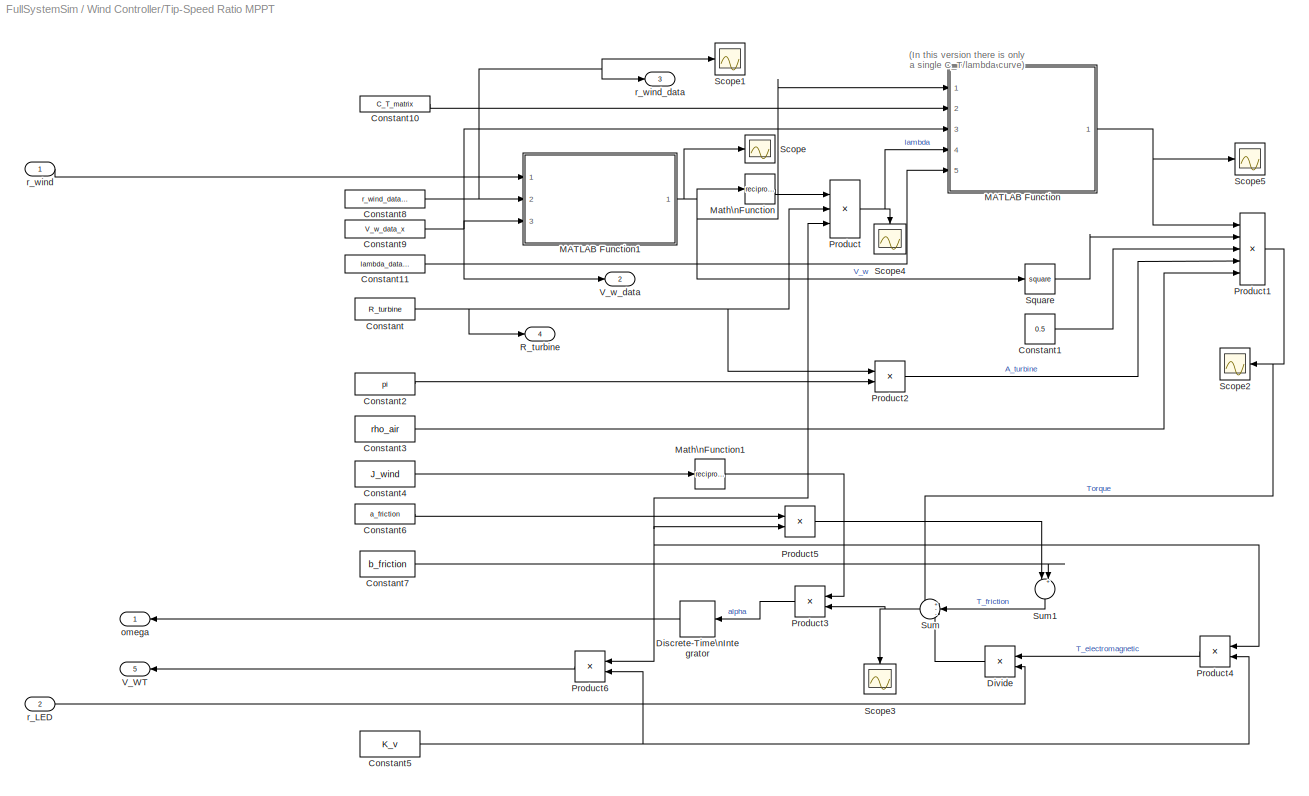
BLOCK [SubSystem] Wind Controller/Tip-Speed Ratio MPPT
  Ports = [2, 5]
  RequestExecContextInheritance = off
  SID = 1
BLOCK [Constant] Wind Controller/Tip-Speed Ratio MPPT/Constant
  SID = 12
  Value = R_turbine
BLOCK [Constant] Wind Controller/Tip-Speed Ratio MPPT/Constant1
  SID = 24
  Value = 0.5
BLOCK [Constant] Wind Controller/Tip-Speed Ratio MPPT/Constant10
  SID = 1026
  Value = C_T_matrix
BLOCK [Constant] Wind Controller/Tip-Speed Ratio MPPT/Constant11
  SID = 1027
  Value = lambda_data_x
BLOCK [Constant] Wind Controller/Tip-Speed Ratio MPPT/Constant2
  SID = 28
  Value = pi
BLOCK [Constant] Wind Controller/Tip-Speed Ratio MPPT/Constant3
  SID = 29
  Value = rho_air
BLOCK [Constant] Wind Controller/Tip-Speed Ratio MPPT/Constant4
  SID = 31
  Value = J_wind
BLOCK [Constant] Wind Controller/Tip-Speed Ratio MPPT/Constant5
  SID = 37
  Value = K_v
BLOCK [Constant] Wind Controller/Tip-Speed Ratio MPPT/Constant6
  SID = 41
  Value = a_friction
BLOCK [Constant] Wind Controller/Tip-Speed Ratio MPPT/Constant7
  SID = 43
  Value = b_friction
BLOCK [Constant] Wind Controller/Tip-Speed Ratio MPPT/Constant8
  SID = 1024
  Value = r_wind_data_x
BLOCK [Constant] Wind Controller/Tip-Speed Ratio MPPT/Constant9
  SID = 1025
  Value = V_w_data_x
BLOCK [DiscreteIntegrator] Wind Controller/Tip-Speed Ratio MPPT/Discrete-Time\nIntegrator
  ICPrevOutput = DiscIntNeverNeededParam
  ICPrevScaledInput = DiscIntNeverNeededParam
  InitialCondition = omega_0
  InitialConditionSetting = Auto
  Ports = [1, 1]
  SID = 1088
  SampleTime = step_size
  gainval = 1
BLOCK [Product] Wind Controller/Tip-Speed Ratio MPPT/Divide
  InputSameDT = off
  Inputs = */
  OutDataTypeStr = Inherit: Inherit via internal rule
  Ports = [2, 1]
  RndMeth = Floor
  SID = 46
  SaturateOnIntegerOverflow = off
BLOCK [SubSystem] Wind Controller/Tip-Speed Ratio MPPT/MATLAB Function
  ErrorFcn = Stateflow.Translate.translate
  PermitHierarchicalResolution = ExplicitOnly
  Ports = [5, 1]
  RequestExecContextInheritance = off
  SFBlockType = MATLAB Function
  SID = 1000
  TreatAsAtomicUnit = on
BLOCK [Demux] Wind Controller/Tip-Speed Ratio MPPT/MATLAB Function/ Demux 
  Outputs = 1
  Ports = [1, 1]
  SID = 1000::20
BLOCK [S-Function] Wind Controller/Tip-Speed Ratio MPPT/MATLAB Function/ SFunction 
  EnableBusSupport = on
  FunctionName = sf_sfun
  PortCounts = [5 2]
  Ports = [5, 2]
  SFcnIsStateOwnerBlock = off
  SFunctionDeploymentMode = off
  SID = 1000::19
  Tag = Stateflow S-Function 2
BLOCK [Terminator] Wind Controller/Tip-Speed Ratio MPPT/MATLAB Function/ Terminator 
  SID = 1000::21
BLOCK [Outport] Wind Controller/Tip-Speed Ratio MPPT/MATLAB Function/C_T
  IconDisplay = Port number
  SID = 1000::5
BLOCK [Inport] Wind Controller/Tip-Speed Ratio MPPT/MATLAB Function/C_T_matrix
  IconDisplay = Port number
  Port = 2
  SID = 1000::22
BLOCK [Inport] Wind Controller/Tip-Speed Ratio MPPT/MATLAB Function/V_w
  IconDisplay = Port number
  SID = 1000::1
BLOCK [Inport] Wind Controller/Tip-Speed Ratio MPPT/MATLAB Function/V_w_data
  IconDisplay = Port number
  Port = 3
  SID = 1000::23
BLOCK [Inport] Wind Controller/Tip-Speed Ratio MPPT/MATLAB Function/lambda
  IconDisplay = Port number
  Port = 4
  SID = 1000::24
BLOCK [Inport] Wind Controller/Tip-Speed Ratio MPPT/MATLAB Function/lambda_data
  IconDisplay = Port number
  Port = 5
  SID = 1000::25
BLOCK [SubSystem] Wind Controller/Tip-Speed Ratio MPPT/MATLAB Function1
  ErrorFcn = Stateflow.Translate.translate
  PermitHierarchicalResolution = ExplicitOnly
  Ports = [3, 1]
  RequestExecContextInheritance = off
  SFBlockType = MATLAB Function
  SID = 1023
  TreatAsAtomicUnit = on
BLOCK [Demux] Wind Controller/Tip-Speed Ratio MPPT/MATLAB Function1/ Demux 
  Outputs = 1
  Ports = [1, 1]
  SID = 1023::20
BLOCK [S-Function] Wind Controller/Tip-Speed Ratio MPPT/MATLAB Function1/ SFunction 
  EnableBusSupport = on
  FunctionName = sf_sfun
  PortCounts = [3 2]
  Ports = [3, 2]
  SFcnIsStateOwnerBlock = off
  SFunctionDeploymentMode = off
  SID = 1023::19
  Tag = Stateflow S-Function 1
BLOCK [Terminator] Wind Controller/Tip-Speed Ratio MPPT/MATLAB Function1/ Terminator 
  SID = 1023::21
BLOCK [Outport] Wind Controller/Tip-Speed Ratio MPPT/MATLAB Function1/V_w
  IconDisplay = Port number
  SID = 1023::5
BLOCK [Inport] Wind Controller/Tip-Speed Ratio MPPT/MATLAB Function1/V_w_data
  IconDisplay = Port number
  Port = 3
  SID = 1023::23
BLOCK [Inport] Wind Controller/Tip-Speed Ratio MPPT/MATLAB Function1/r_wind
  IconDisplay = Port number
  SID = 1023::1
BLOCK [Inport] Wind Controller/Tip-Speed Ratio MPPT/MATLAB Function1/r_wind_data
  IconDisplay = Port number
  Port = 2
  SID = 1023::22
BLOCK [Math] Wind Controller/Tip-Speed Ratio MPPT/Math\nFunction
  Operator = reciprocal
  Ports = [1, 1]
  SID = 15
  SignedPower = off
BLOCK [Math] Wind Controller/Tip-Speed Ratio MPPT/Math\nFunction1
  Operator = reciprocal
  Ports = [1, 1]
  SID = 32
  SignedPower = off
BLOCK [Product] Wind Controller/Tip-Speed Ratio MPPT/Product
  InputSameDT = off
  Inputs = 3
  OutDataTypeStr = Inherit: Inherit via internal rule
  Ports = [3, 1]
  RndMeth = Floor
  SID = 13
  SaturateOnIntegerOverflow = off
BLOCK [Product] Wind Controller/Tip-Speed Ratio MPPT/Product1
  InputSameDT = off
  Inputs = 5
  OutDataTypeStr = Inherit: Inherit via internal rule
  Ports = [5, 1]
  RndMeth = Floor
  SID = 22
  SaturateOnIntegerOverflow = off
BLOCK [Product] Wind Controller/Tip-Speed Ratio MPPT/Product2
  InputSameDT = off
  OutDataTypeStr = Inherit: Inherit via internal rule
  Ports = [2, 1]
  RndMeth = Floor
  SID = 27
  SaturateOnIntegerOverflow = off
BLOCK [Product] Wind Controller/Tip-Speed Ratio MPPT/Product3
  InputSameDT = off
  OutDataTypeStr = Inherit: Inherit via internal rule
  Ports = [2, 1]
  RndMeth = Floor
  SID = 33
  SaturateOnIntegerOverflow = off
BLOCK [Product] Wind Controller/Tip-Speed Ratio MPPT/Product4
  InputSameDT = off
  OutDataTypeStr = Inherit: Inherit via internal rule
  Ports = [2, 1]
  RndMeth = Floor
  SID = 38
  SaturateOnIntegerOverflow = off
BLOCK [Product] Wind Controller/Tip-Speed Ratio MPPT/Product5
  InputSameDT = off
  OutDataTypeStr = Inherit: Inherit via internal rule
  Ports = [2, 1]
  RndMeth = Floor
  SID = 42
  SaturateOnIntegerOverflow = off
BLOCK [Product] Wind Controller/Tip-Speed Ratio MPPT/Product6
  InputSameDT = off
  OutDataTypeStr = Inherit: Inherit via internal rule
  Ports = [2, 1]
  RndMeth = Floor
  SID = 1011
  SaturateOnIntegerOverflow = off
BLOCK [Outport] Wind Controller/Tip-Speed Ratio MPPT/R_turbine
  IconDisplay = Port number
  Port = 4
  SID = 56
BLOCK [Scope] Wind Controller/Tip-Speed Ratio MPPT/Scope
  Floating = off
  NumInputPorts = 1
  Ports = [1]
  SID = 1054
  ScopeSpecificationString = Simulink.scopes.TimeScopeBlockCfg('CurrentConfiguration', extmgr.ConfigurationSet(extmgr.Configuration('Core','General UI',true),extmgr.Configuration('Core','Source UI',true),extmgr.Configuration('Sources','WiredSimulink',true,'DataLoggingVariableName','ScopeData22'),extmgr.Configuration('Visuals','Time Domain',true,'SerializedDisplays',{struct('MinYLimReal','6.5','MaxYLimReal','8.5','YLabelReal',...<+1358ch>
BLOCK [Scope] Wind Controller/Tip-Speed Ratio MPPT/Scope1
  Floating = off
  NumInputPorts = 1
  Ports = [1]
  SID = 1055
  ScopeSpecificationString = Simulink.scopes.TimeScopeBlockCfg('CurrentConfiguration', extmgr.ConfigurationSet(extmgr.Configuration('Core','General UI',true),extmgr.Configuration('Core','Source UI',true),extmgr.Configuration('Sources','WiredSimulink',true,'DataLoggingVariableName','ScopeData23'),extmgr.Configuration('Visuals','Time Domain',true,'SerializedDisplays',{struct('MinYLimReal','-0.11875','MaxYLimReal','1.06875','YLa...<+2397ch>
BLOCK [Scope] Wind Controller/Tip-Speed Ratio MPPT/Scope2
  Floating = off
  NumInputPorts = 1
  Ports = [1]
  SID = 1056
  ScopeSpecificationString = Simulink.scopes.TimeScopeBlockCfg('CurrentConfiguration', extmgr.ConfigurationSet(extmgr.Configuration('Core','General UI',true),extmgr.Configuration('Core','Source UI',true),extmgr.Configuration('Sources','WiredSimulink',true,'DataLoggingVariableName','ScopeData24'),extmgr.Configuration('Visuals','Time Domain',true,'SerializedDisplays',{struct('MinYLimReal','6.30604','MaxYLimReal','8.30604','YLab...<+1364ch>
BLOCK [Scope] Wind Controller/Tip-Speed Ratio MPPT/Scope3
  Floating = off
  NumInputPorts = 1
  Ports = [1]
  SID = 1057
  ScopeSpecificationString = Simulink.scopes.TimeScopeBlockCfg('CurrentConfiguration', extmgr.ConfigurationSet(extmgr.Configuration('Core','General UI',true),extmgr.Configuration('Core','Source UI',true),extmgr.Configuration('Sources','WiredSimulink',true,'DataLoggingVariableName','ScopeData25'),extmgr.Configuration('Visuals','Time Domain',true,'SerializedDisplays',{struct('MinYLimReal','6.30604','MaxYLimReal','8.30604','YLab...<+1361ch>
BLOCK [Scope] Wind Controller/Tip-Speed Ratio MPPT/Scope4
  Floating = off
  NumInputPorts = 1
  Ports = [1]
  SID = 1058
  ScopeSpecificationString = Simulink.scopes.TimeScopeBlockCfg('CurrentConfiguration', extmgr.ConfigurationSet(extmgr.Configuration('Core','General UI',true),extmgr.Configuration('Core','Source UI',true),extmgr.Configuration('Sources','WiredSimulink',true,'DataLoggingVariableName','ScopeData26'),extmgr.Configuration('Visuals','Time Domain',true,'SerializedDisplays',{struct('MinYLimReal','1.00000','MaxYLimReal','11.00000','YLa...<+1368ch>
BLOCK [Scope] Wind Controller/Tip-Speed Ratio MPPT/Scope5
  Floating = off
  NumInputPorts = 1
  Ports = [1]
  SID = 1059
  ScopeSpecificationString = Simulink.scopes.TimeScopeBlockCfg('CurrentConfiguration', extmgr.ConfigurationSet(extmgr.Configuration('Core','General UI',true),extmgr.Configuration('Core','Source UI',true),extmgr.Configuration('Sources','WiredSimulink',true,'DataLoggingVariableName','ScopeData27'),extmgr.Configuration('Visuals','Time Domain',true,'SerializedDisplays',{struct('MinYLimReal','0.35','MaxYLimReal','0.55','YLabelReal...<+1378ch>
BLOCK [Math] Wind Controller/Tip-Speed Ratio MPPT/Square
  Operator = square
  Ports = [1, 1]
  SID = 23
  SignedPower = off
BLOCK [Sum] Wind Controller/Tip-Speed Ratio MPPT/Sum
  IconShape = round
  InputSameDT = off
  Inputs = +--
  OutDataTypeStr = Inherit: Inherit via internal rule
  Ports = [3, 1]
  SID = 36
  SaturateOnIntegerOverflow = off
BLOCK [Sum] Wind Controller/Tip-Speed Ratio MPPT/Sum1
  IconShape = round
  InputSameDT = off
  Inputs = |++
  OutDataTypeStr = Inherit: Inherit via internal rule
  Ports = [2, 1]
  SID = 39
  SaturateOnIntegerOverflow = off
BLOCK [Outport] Wind Controller/Tip-Speed Ratio MPPT/V_WT
  IconDisplay = Port number
  Port = 5
  SID = 1010
BLOCK [Outport] Wind Controller/Tip-Speed Ratio MPPT/V_w_data
  IconDisplay = Port number
  Port = 2
  SID = 54
BLOCK [Outport] Wind Controller/Tip-Speed Ratio MPPT/omega
  IconDisplay = Port number
  SID = 3
BLOCK [Inport] Wind Controller/Tip-Speed Ratio MPPT/r_LED
  IconDisplay = Port number
  Port = 2
  SID = 45
BLOCK [Inport] Wind Controller/Tip-Speed Ratio MPPT/r_wind
  IconDisplay = Port number
  SID = 2
BLOCK [Outport] Wind Controller/Tip-Speed Ratio MPPT/r_wind_data
  IconDisplay = Port number
  Port = 3
  SID = 55
BLOCK [Outport] Wind Controller/V_WT
  IconDisplay = Port number
  Port = 3
  SID = 1012
BLOCK [Outport] Wind Controller/WT_PWM
  IconDisplay = Port number
  Port = 2
  SID = 84
BLOCK [Inport] Wind Controller/r_LED
  IconDisplay = Port number
  Port = 2
  SID = 83
BLOCK [Inport] Wind Controller/r_WT
  IconDisplay = Port number
  SID = 82
ANNOTATION (root): The power supply here has no input PWM signal as it will not\nbe taken into account for the simulation aspect of this project.\nHowever, the parts remain functional in case any future\nprojects plan to carry on with this model.
ANNOTATION Wind Controller/Tip-Speed Ratio MPPT: \n \n (In this version there is only \n a single C_T/lambda curve)
LINE Constant6:1 -> Electrical Plant:7
NET Constant:1 -> Electrical Plant:8, Scope1:1
NET Demand:1 -> Hydrogen Controller:3, Wind Controller:2
LINE Electrical Plant/Constant3:1 -> Electrical Plant/Simulink-PS\nConverter4:1
LINE Electrical Plant/Constant4:1 -> Electrical Plant/Simulink-PS\nConverter5:1
LINE Electrical Plant/Constant5:1 -> Electrical Plant/Product6:2
LINE Electrical Plant/EL_PWM:1 -> Electrical Plant/Subsystem5:1
LINE Electrical Plant/FC_PWM:1 -> Electrical Plant/Subsystem7:1
LINE Electrical Plant/I_SP:1 -> Electrical Plant/Simulink-PS\nConverter2:1
LINE Electrical Plant/LED_PWM:1 -> Electrical Plant/Product6:1
LINE Electrical Plant/PS-Simulink\nConverter10:1 -> Electrical Plant/Product11:1
LINE Electrical Plant/PS-Simulink\nConverter11:1 -> Electrical Plant/Product7:1
LINE Electrical Plant/PS-Simulink\nConverter12:1 -> Electrical Plant/Product11:2
LINE Electrical Plant/PS-Simulink\nConverter13:1 -> Electrical Plant/Product7:2
LINE Electrical Plant/PS-Simulink\nConverter14:1 -> Electrical Plant/Product8:1
NET Electrical Plant/PS-Simulink\nConverter15:1 -> Electrical Plant/Product8:2, Electrical Plant/Scope7:1
LINE Electrical Plant/PS-Simulink\nConverter16:1 -> Electrical Plant/Product9:2
NET Electrical Plant/PS-Simulink\nConverter17:1 -> Electrical Plant/Product9:1, Electrical Plant/Scope5:1
NET Electrical Plant/PS-Simulink\nConverter18:1 -> Electrical Plant/Product10:2, Electrical Plant/Scope6:1
LINE Electrical Plant/PS-Simulink\nConverter19:1 -> Electrical Plant/Product10:1
LINE Electrical Plant/PS_PWM:1 -> Electrical Plant/Subsystem6:1
NET Electrical Plant/Product10:1 -> Electrical Plant/P_FC1:1, Electrical Plant/Scope4:1
NET Electrical Plant/Product11:1 -> Electrical Plant/P_EL1:1, Electrical Plant/Scope:1
NET Electrical Plant/Product6:1 -> Electrical Plant/Scope8:1, Electrical Plant/Simulink-PS\nConverter3:1
NET Electrical Plant/Product7:1 -> Electrical Plant/P_PS1:1, Electrical Plant/Scope1:1
NET Electrical Plant/Product8:1 -> Electrical Plant/P_WT1:1, Electrical Plant/Scope2:1
NET Electrical Plant/Product9:1 -> Electrical Plant/P_SP1:1, Electrical Plant/Scope3:1
LINE Electrical Plant/Subsystem4/In1:1 -> Electrical Plant/Subsystem4/PWM Generator1:1
LINE Electrical Plant/Subsystem4/PS-Simulink\nConverter4:1 -> Electrical Plant/Subsystem4/Scope4:1
LINE Electrical Plant/Subsystem4/PWM Generator1:1 -> Electrical Plant/Subsystem4/Simulink-PS\nConverter2:1
LINE Electrical Plant/Subsystem5/In1:1 -> Electrical Plant/Subsystem5/PWM Generator1:1
LINE Electrical Plant/Subsystem5/PS-Simulink\nConverter4:1 -> Electrical Plant/Subsystem5/Scope4:1
LINE Electrical Plant/Subsystem5/PWM Generator1:1 -> Electrical Plant/Subsystem5/Simulink-PS\nConverter2:1
LINE Electrical Plant/Subsystem6/In1:1 -> Electrical Plant/Subsystem6/PWM Generator1:1
LINE Electrical Plant/Subsystem6/PS-Simulink\nConverter4:1 -> Electrical Plant/Subsystem6/Scope4:1
LINE Electrical Plant/Subsystem6/PWM Generator1:1 -> Electrical Plant/Subsystem6/Simulink-PS\nConverter2:1
LINE Electrical Plant/Subsystem7/In1:1 -> Electrical Plant/Subsystem7/PWM Generator2:1
LINE Electrical Plant/Subsystem7/PS-Simulink\nConverter6:1 -> Electrical Plant/Subsystem7/Scope6:1
LINE Electrical Plant/Subsystem7/PWM Generator2:1 -> Electrical Plant/Subsystem7/Simulink-PS\nConverter3:1
LINE Electrical Plant/V_FC:1 -> Electrical Plant/Simulink-PS\nConverter1:1
LINE Electrical Plant/V_WT:1 -> Electrical Plant/Simulink-PS\nConverter:1
LINE Electrical Plant/WT_PWM:1 -> Electrical Plant/Subsystem4:1
LINE Electrical Plant:1 -> P_PS1:1
LINE Electrical Plant:2 -> P_WT1:1
LINE Electrical Plant:3 -> P_SP1:1
LINE Electrical Plant:4 -> P_FC1:1
LINE Electrical Plant:5 -> P_EL1:1
LINE Hydrogen Controller/Constant1:1 -> Hydrogen Controller/Product:2
LINE Hydrogen Controller/Constant2:1 -> Hydrogen Controller/Product2:2
LINE Hydrogen Controller/Constant3:1 -> Hydrogen Controller/Product1:2
LINE Hydrogen Controller/Constant4:1 -> Hydrogen Controller/Divide1:1
LINE Hydrogen Controller/Constant5:1 -> Hydrogen Controller/Divide:2
LINE Hydrogen Controller/Divide1:1 -> Hydrogen Controller/FC_PWM:1
LINE Hydrogen Controller/Divide:1 -> Hydrogen Controller/EL_PWM:1
LINE Hydrogen Controller/If Action\nSubsystem/Abs:1 -> Hydrogen Controller/If Action\nSubsystem/Out1:1
LINE Hydrogen Controller/If Action\nSubsystem/In1:1 -> Hydrogen Controller/If Action\nSubsystem/Abs:1
LINE Hydrogen Controller/If Action\nSubsystem1/In1:1 -> Hydrogen Controller/If Action\nSubsystem1/Out1:1
LINE Hydrogen Controller/If Action\nSubsystem1:1 -> Hydrogen Controller/Divide:1
LINE Hydrogen Controller/If Action\nSubsystem:1 -> Hydrogen Controller/Divide1:2
LINE Hydrogen Controller/If:1 -> Hydrogen Controller/If Action\nSubsystem1:ifaction
LINE Hydrogen Controller/If:2 -> Hydrogen Controller/If Action\nSubsystem:ifaction
LINE Hydrogen Controller/Product1:1 -> Hydrogen Controller/Sum:3
NET Hydrogen Controller/Product2:1 -> Hydrogen Controller/Scope2:1, Hydrogen Controller/Sum:2
NET Hydrogen Controller/Product:1 -> Hydrogen Controller/Scope1:1, Hydrogen Controller/Sum:1
NET Hydrogen Controller/Sum:1 -> Hydrogen Controller/If Action\nSubsystem1:1, Hydrogen Controller/If Action\nSubsystem:1, Hydrogen Controller/If:1, Hydrogen Controller/Scope5:1
LINE Hydrogen Controller/r_LED:1 -> Hydrogen Controller/Product1:1
LINE Hydrogen Controller/r_SP:1 -> Hydrogen Controller/Product2:1
LINE Hydrogen Controller/r_WT:1 -> Hydrogen Controller/Product:1
LINE Hydrogen Controller:1 -> Electrical Plant:2
NET Hydrogen Controller:2 -> Electrical Plant:3, Scope5:1
LINE Power Supply:1 -> Electrical Plant:1
LINE Solar:1 -> Hydrogen Controller:2
LINE Wind Controller/Constant:1 -> Wind Controller/Sum:1
LINE Wind Controller/Gain:1 -> Wind Controller/LED_PWM:1
LINE Wind Controller/Lambda calculation/Lookup\nTable\nDynamic:1 -> Wind Controller/Lambda calculation/Math\nFunction:1
LINE Wind Controller/Lambda calculation/Math\nFunction:1 -> Wind Controller/Lambda calculation/Product:1
LINE Wind Controller/Lambda calculation/Product:1 -> Wind Controller/Lambda calculation/lambda:1
LINE Wind Controller/Lambda calculation/R_turbine:1 -> Wind Controller/Lambda calculation/Product:3
LINE Wind Controller/Lambda calculation/V_w_data:1 -> Wind Controller/Lambda calculation/Lookup\nTable\nDynamic:3
LINE Wind Controller/Lambda calculation/omega:1 -> Wind Controller/Lambda calculation/Product:2
LINE Wind Controller/Lambda calculation/r_wind:1 -> Wind Controller/Lambda calculation/Lookup\nTable\nDynamic:1
LINE Wind Controller/Lambda calculation/r_wind_data:1 -> Wind Controller/Lambda calculation/Lookup\nTable\nDynamic:2
NET Wind Controller/Lambda calculation:1 -> Wind Controller/Scope:1, Wind Controller/Sum:2
LINE Wind Controller/PID Controller:1 -> Wind Controller/Saturation:1
LINE Wind Controller/Saturation:1 -> Wind Controller/WT_PWM:1
LINE Wind Controller/Sum:1 -> Wind Controller/PID Controller:1
LINE Wind Controller/Tip-Speed Ratio MPPT/Constant10:1 -> Wind Controller/Tip-Speed Ratio MPPT/MATLAB Function:2
LINE Wind Controller/Tip-Speed Ratio MPPT/Constant11:1 -> Wind Controller/Tip-Speed Ratio MPPT/MATLAB Function:5
LINE Wind Controller/Tip-Speed Ratio MPPT/Constant1:1 -> Wind Controller/Tip-Speed Ratio MPPT/Product1:3
LINE Wind Controller/Tip-Speed Ratio MPPT/Constant2:1 -> Wind Controller/Tip-Speed Ratio MPPT/Product2:2
LINE Wind Controller/Tip-Speed Ratio MPPT/Constant3:1 -> Wind Controller/Tip-Speed Ratio MPPT/Product1:5
LINE Wind Controller/Tip-Speed Ratio MPPT/Constant4:1 -> Wind Controller/Tip-Speed Ratio MPPT/Math\nFunction1:1
NET Wind Controller/Tip-Speed Ratio MPPT/Constant5:1 -> Wind Controller/Tip-Speed Ratio MPPT/Product4:2, Wind Controller/Tip-Speed Ratio MPPT/Product6:2
LINE Wind Controller/Tip-Speed Ratio MPPT/Constant6:1 -> Wind Controller/Tip-Speed Ratio MPPT/Product5:1
LINE Wind Controller/Tip-Speed Ratio MPPT/Constant7:1 -> Wind Controller/Tip-Speed Ratio MPPT/Sum1:2
NET Wind Controller/Tip-Speed Ratio MPPT/Constant8:1 -> Wind Controller/Tip-Speed Ratio MPPT/MATLAB Function1:2, Wind Controller/Tip-Speed Ratio MPPT/Scope1:1, Wind Controller/Tip-Speed Ratio MPPT/r_wind_data:1
NET Wind Controller/Tip-Speed Ratio MPPT/Constant9:1 -> Wind Controller/Tip-Speed Ratio MPPT/MATLAB Function1:3, Wind Controller/Tip-Speed Ratio MPPT/MATLAB Function:3, Wind Controller/Tip-Speed Ratio MPPT/V_w_data:1
NET Wind Controller/Tip-Speed Ratio MPPT/Constant:1 -> Wind Controller/Tip-Speed Ratio MPPT/Product2:1, Wind Controller/Tip-Speed Ratio MPPT/Product:2, Wind Controller/Tip-Speed Ratio MPPT/R_turbine:1
NET Wind Controller/Tip-Speed Ratio MPPT/Discrete-Time\nIntegrator:1 -> Wind Controller/Tip-Speed Ratio MPPT/Product4:1, Wind Controller/Tip-Speed Ratio MPPT/Product5:2, Wind Controller/Tip-Speed Ratio MPPT/Product6:1, Wind Controller/Tip-Speed Ratio MPPT/Product:3, Wind Controller/Tip-Speed Ratio MPPT/omega:1
LINE Wind Controller/Tip-Speed Ratio MPPT/Divide:1 -> Wind Controller/Tip-Speed Ratio MPPT/Sum:3
LINE Wind Controller/Tip-Speed Ratio MPPT/MATLAB Function/ Demux :1 -> Wind Controller/Tip-Speed Ratio MPPT/MATLAB Function/ Terminator :1
LINE Wind Controller/Tip-Speed Ratio MPPT/MATLAB Function/ SFunction :1 -> Wind Controller/Tip-Speed Ratio MPPT/MATLAB Function/ Demux :1
LINE Wind Controller/Tip-Speed Ratio MPPT/MATLAB Function/ SFunction :2 -> Wind Controller/Tip-Speed Ratio MPPT/MATLAB Function/C_T:1
LINE Wind Controller/Tip-Speed Ratio MPPT/MATLAB Function/C_T_matrix:1 -> Wind Controller/Tip-Speed Ratio MPPT/MATLAB Function/ SFunction :2
LINE Wind Controller/Tip-Speed Ratio MPPT/MATLAB Function/V_w:1 -> Wind Controller/Tip-Speed Ratio MPPT/MATLAB Function/ SFunction :1
LINE Wind Controller/Tip-Speed Ratio MPPT/MATLAB Function/V_w_data:1 -> Wind Controller/Tip-Speed Ratio MPPT/MATLAB Function/ SFunction :3
LINE Wind Controller/Tip-Speed Ratio MPPT/MATLAB Function/lambda:1 -> Wind Controller/Tip-Speed Ratio MPPT/MATLAB Function/ SFunction :4
LINE Wind Controller/Tip-Speed Ratio MPPT/MATLAB Function/lambda_data:1 -> Wind Controller/Tip-Speed Ratio MPPT/MATLAB Function/ SFunction :5
LINE Wind Controller/Tip-Speed Ratio MPPT/MATLAB Function1/ Demux :1 -> Wind Controller/Tip-Speed Ratio MPPT/MATLAB Function1/ Terminator :1
LINE Wind Controller/Tip-Speed Ratio MPPT/MATLAB Function1/ SFunction :1 -> Wind Controller/Tip-Speed Ratio MPPT/MATLAB Function1/ Demux :1
LINE Wind Controller/Tip-Speed Ratio MPPT/MATLAB Function1/ SFunction :2 -> Wind Controller/Tip-Speed Ratio MPPT/MATLAB Function1/V_w:1
LINE Wind Controller/Tip-Speed Ratio MPPT/MATLAB Function1/V_w_data:1 -> Wind Controller/Tip-Speed Ratio MPPT/MATLAB Function1/ SFunction :3
LINE Wind Controller/Tip-Speed Ratio MPPT/MATLAB Function1/r_wind:1 -> Wind Controller/Tip-Speed Ratio MPPT/MATLAB Function1/ SFunction :1
LINE Wind Controller/Tip-Speed Ratio MPPT/MATLAB Function1/r_wind_data:1 -> Wind Controller/Tip-Speed Ratio MPPT/MATLAB Function1/ SFunction :2
NET Wind Controller/Tip-Speed Ratio MPPT/MATLAB Function1:1 -> Wind Controller/Tip-Speed Ratio MPPT/MATLAB Function:1, Wind Controller/Tip-Speed Ratio MPPT/Math\nFunction:1, Wind Controller/Tip-Speed Ratio MPPT/Scope:1, Wind Controller/Tip-Speed Ratio MPPT/Square:1
NET Wind Controller/Tip-Speed Ratio MPPT/MATLAB Function:1 -> Wind Controller/Tip-Speed Ratio MPPT/Product1:1, Wind Controller/Tip-Speed Ratio MPPT/Scope5:1
LINE Wind Controller/Tip-Speed Ratio MPPT/Math\nFunction1:1 -> Wind Controller/Tip-Speed Ratio MPPT/Product3:1
LINE Wind Controller/Tip-Speed Ratio MPPT/Math\nFunction:1 -> Wind Controller/Tip-Speed Ratio MPPT/Product:1
NET Wind Controller/Tip-Speed Ratio MPPT/Product1:1 -> Wind Controller/Tip-Speed Ratio MPPT/Scope2:1, Wind Controller/Tip-Speed Ratio MPPT/Sum:1
LINE Wind Controller/Tip-Speed Ratio MPPT/Product2:1 -> Wind Controller/Tip-Speed Ratio MPPT/Product1:4
LINE Wind Controller/Tip-Speed Ratio MPPT/Product3:1 -> Wind Controller/Tip-Speed Ratio MPPT/Discrete-Time\nIntegrator:1
LINE Wind Controller/Tip-Speed Ratio MPPT/Product4:1 -> Wind Controller/Tip-Speed Ratio MPPT/Divide:1
LINE Wind Controller/Tip-Speed Ratio MPPT/Product5:1 -> Wind Controller/Tip-Speed Ratio MPPT/Sum1:1
LINE Wind Controller/Tip-Speed Ratio MPPT/Product6:1 -> Wind Controller/Tip-Speed Ratio MPPT/V_WT:1
NET Wind Controller/Tip-Speed Ratio MPPT/Product:1 -> Wind Controller/Tip-Speed Ratio MPPT/MATLAB Function:4, Wind Controller/Tip-Speed Ratio MPPT/Scope4:1
LINE Wind Controller/Tip-Speed Ratio MPPT/Square:1 -> Wind Controller/Tip-Speed Ratio MPPT/Product1:2
LINE Wind Controller/Tip-Speed Ratio MPPT/Sum1:1 -> Wind Controller/Tip-Speed Ratio MPPT/Sum:2
NET Wind Controller/Tip-Speed Ratio MPPT/Sum:1 -> Wind Controller/Tip-Speed Ratio MPPT/Product3:2, Wind Controller/Tip-Speed Ratio MPPT/Scope3:1
LINE Wind Controller/Tip-Speed Ratio MPPT/r_LED:1 -> Wind Controller/Tip-Speed Ratio MPPT/Divide:2
LINE Wind Controller/Tip-Speed Ratio MPPT/r_wind:1 -> Wind Controller/Tip-Speed Ratio MPPT/MATLAB Function1:1
NET Wind Controller/Tip-Speed Ratio MPPT:1 -> Wind Controller/Lambda calculation:2, Wind Controller/Scope5:1
LINE Wind Controller/Tip-Speed Ratio MPPT:2 -> Wind Controller/Lambda calculation:3
LINE Wind Controller/Tip-Speed Ratio MPPT:3 -> Wind Controller/Lambda calculation:4
LINE Wind Controller/Tip-Speed Ratio MPPT:4 -> Wind Controller/Lambda calculation:5
NET Wind Controller/Tip-Speed Ratio MPPT:5 -> Wind Controller/Scope1:1, Wind Controller/V_WT:1
NET Wind Controller/r_LED:1 -> Wind Controller/Gain:1, Wind Controller/Tip-Speed Ratio MPPT:2
NET Wind Controller/r_WT:1 -> Wind Controller/Lambda calculation:1, Wind Controller/Tip-Speed Ratio MPPT:1
LINE Wind Controller:1 -> Electrical Plant:4
NET Wind Controller:2 -> Electrical Plant:5, Scope2:1
LINE Wind Controller:3 -> Electrical Plant:6
NET Wind:1 -> Hydrogen Controller:1, Wind Controller:1
PNET net1: Electrical Plant/2200uF1:LConn1 -- Electrical Plant/Boost Converter5:RConn1 -- Electrical Plant/Boost Converter6:RConn1 -- Electrical Plant/Boost Converter8:RConn1 -- Electrical Plant/Capacitor2:LConn1 -- Electrical Plant/Capacitor6:LConn1 -- Electrical Plant/Diode9:RConn1 -- Electrical Plant/Fuse1:LConn1 -- Electrical Plant/Resistor1:RConn1 -- Electrical Plant/Variable Resistor1:LConn2 -- Electrical Plant/\n:LConn1
PNET net2: Electrical Plant/2200uF1:RConn1 -- Electrical Plant/Current Sensor6:RConn2 -- Electrical Plant/Current Sensor7:RConn2 -- Electrical Plant/Current Sensor8:RConn2 -- Electrical Plant/IRLZ-34N MOSFET5:RConn2 -- Electrical Plant/Variable Resistor1:RConn1
PNET net3: Electrical Plant/Boost Converter5:LConn1 -- Electrical Plant/Boost Converter6:LConn1 -- Electrical Plant/Boost Converter8:LConn1 -- Electrical Plant/Controlled Voltage\nSource:RConn1 -- Electrical Plant/Simulink-PS\nConverter4:RConn1
PNET net4: Electrical Plant/Boost Converter5:LConn2 -- Electrical Plant/Capacitor5:LConn1 -- Electrical Plant/Resistor5:RConn1
PNET net5: Electrical Plant/Boost Converter5:LConn3 -- Electrical Plant/Capacitor5:RConn1 -- Electrical Plant/Diode6:LConn1 -- Electrical Plant/IRLZ-34N MOSFET3:RConn1
PLINE Electrical Plant/Boost Converter5:RConn2 -- Electrical Plant/Current Sensor6:LConn1
PNET net6: Electrical Plant/Boost Converter6:LConn2 -- Electrical Plant/Controlled Current\nSource:LConn1 -- Electrical Plant/Voltage Sensor5:LConn1
PNET net7: Electrical Plant/Boost Converter6:LConn3 -- Electrical Plant/Controlled Current\nSource:RConn2 -- Electrical Plant/Voltage Sensor5:RConn2
PLINE Electrical Plant/Boost Converter6:RConn2 -- Electrical Plant/Current Sensor7:LConn1
PLINE Electrical Plant/Boost Converter7:LConn1 -- Electrical Plant/Simulink-PS\nConverter5:RConn1
PNET net8: Electrical Plant/Boost Converter7:LConn2 -- Electrical Plant/Capacitor7:LConn1 -- Electrical Plant/Resistor13:RConn1
PNET net9: Electrical Plant/Boost Converter7:LConn3 -- Electrical Plant/Capacitor7:RConn1 -- Electrical Plant/Controlled Voltage\nSource2:RConn2 -- Electrical Plant/Diode8:LConn1 -- Electrical Plant/IRLZ-34N MOSFET4:RConn1 -- Electrical Plant/Voltage Sensor9:RConn2
PLINE Electrical Plant/Boost Converter7:RConn1 -- Electrical Plant/Boost Converter8:LConn2
PLINE Electrical Plant/Boost Converter7:RConn2 -- Electrical Plant/Boost Converter8:LConn3
PLINE Electrical Plant/Boost Converter8:RConn2 -- Electrical Plant/Current Sensor8:LConn1
PNET net10: Electrical Plant/Capacitor2:RConn1 -- Electrical Plant/Diode5:LConn1 -- Electrical Plant/IRLZ-34N MOSFET2:RConn1 -- Electrical Plant/Solver\nConfiguration1:RConn1 -- Electrical Plant/Voltage Sensor6:LConn1
PNET net11: Electrical Plant/Capacitor6:RConn1 -- Electrical Plant/Current Sensor9:LConn1 -- Electrical Plant/Diode9:LConn1 -- Electrical Plant/\n:RConn1
PLINE Electrical Plant/Controlled Current\nSource:RConn1 -- Electrical Plant/Simulink-PS\nConverter2:RConn1
PNET net12: Electrical Plant/Controlled Voltage\nSource1:LConn1 -- Electrical Plant/Diode6:RConn1 -- Electrical Plant/Resistor5:LConn1 -- Electrical Plant/Voltage Sensor8:LConn1
PLINE Electrical Plant/Controlled Voltage\nSource1:RConn1 -- Electrical Plant/Simulink-PS\nConverter:RConn1
PNET net13: Electrical Plant/Controlled Voltage\nSource1:RConn2 -- Electrical Plant/Controlled Voltage\nSource:RConn2 -- Electrical Plant/Electrical Reference1:LConn1 -- Electrical Plant/IRLZ-34N MOSFET2:RConn2 -- Electrical Plant/IRLZ-34N MOSFET3:RConn2 -- Electrical Plant/IRLZ-34N MOSFET4:RConn2 -- Electrical Plant/Resistor10:RConn1 -- Electrical Plant/Resistor11:RConn1 -- Electrical Plant/Resistor14:RConn1 -- Electrical Plant/Resistor15:RConn1 -- Electrical Plant/Voltage Sensor6:RConn2 -- Electrical Plant/Voltage Sensor8:RConn2
PLINE Electrical Plant/Controlled Voltage\nSource2:LConn1 -- Electrical Plant/Current Limiter:LConn1
PLINE Electrical Plant/Controlled Voltage\nSource2:RConn1 -- Electrical Plant/Simulink-PS\nConverter1:RConn1
PLINE Electrical Plant/Controlled Voltage\nSource:LConn1 -- Electrical Plant/Current Sensor5:LConn1
PNET net14: Electrical Plant/Current Limiter:RConn1 -- Electrical Plant/Diode8:RConn1 -- Electrical Plant/Resistor13:LConn1 -- Electrical Plant/Voltage Sensor9:LConn1
PLINE Electrical Plant/Current Sensor5:RConn1 -- Electrical Plant/PS-Simulink\nConverter11:LConn1
PNET net15: Electrical Plant/Current Sensor5:RConn2 -- Electrical Plant/Diode5:RConn1 -- Electrical Plant/Resistor1:LConn1
PLINE Electrical Plant/Current Sensor6:RConn1 -- Electrical Plant/PS-Simulink\nConverter14:LConn1
PLINE Electrical Plant/Current Sensor7:RConn1 -- Electrical Plant/PS-Simulink\nConverter16:LConn1
PLINE Electrical Plant/Current Sensor8:RConn1 -- Electrical Plant/PS-Simulink\nConverter19:LConn1
PLINE Electrical Plant/Current Sensor9:RConn1 -- Electrical Plant/PS-Simulink\nConverter10:LConn1
PNET net16: Electrical Plant/Current Sensor9:RConn2 -- Electrical Plant/Electrolyzer1:RConn1 -- Electrical Plant/IRLZ-34N MOSFET5:RConn1 -- Electrical Plant/Voltage Sensor7:RConn2
PNET net17: Electrical Plant/Electrolyzer1:LConn1 -- Electrical Plant/Fuse1:RConn1 -- Electrical Plant/Voltage Sensor7:LConn1
PNET net18: Electrical Plant/IRLZ-34N MOSFET2:LConn1 -- Electrical Plant/Resistor10:LConn1 -- Electrical Plant/Subsystem6:RConn1
PNET net19: Electrical Plant/IRLZ-34N MOSFET3:LConn1 -- Electrical Plant/Resistor11:LConn1 -- Electrical Plant/Subsystem4:RConn1
PNET net20: Electrical Plant/IRLZ-34N MOSFET4:LConn1 -- Electrical Plant/Resistor14:LConn1 -- Electrical Plant/Subsystem7:RConn1
PNET net21: Electrical Plant/IRLZ-34N MOSFET5:LConn1 -- Electrical Plant/Resistor15:LConn1 -- Electrical Plant/Subsystem5:RConn1
PLINE Electrical Plant/PS-Simulink\nConverter12:LConn1 -- Electrical Plant/Voltage Sensor7:RConn1
PLINE Electrical Plant/PS-Simulink\nConverter13:LConn1 -- Electrical Plant/Voltage Sensor6:RConn1
PLINE Electrical Plant/PS-Simulink\nConverter15:LConn1 -- Electrical Plant/Voltage Sensor8:RConn1
PLINE Electrical Plant/PS-Simulink\nConverter17:LConn1 -- Electrical Plant/Voltage Sensor5:RConn1
PLINE Electrical Plant/PS-Simulink\nConverter18:LConn1 -- Electrical Plant/Voltage Sensor9:RConn1
PLINE Electrical Plant/Simulink-PS\nConverter3:RConn1 -- Electrical Plant/Variable Resistor1:LConn1
PNET net22: Electrical Plant/Subsystem4/Conn1:RConn1 -- Electrical Plant/Subsystem4/Controlled PWM\nVoltage1:RConn1 -- Electrical Plant/Subsystem4/Voltage Sensor2:LConn1
PLINE Electrical Plant/Subsystem4/Controlled PWM\nVoltage1:LConn1 -- Electrical Plant/Subsystem4/Simulink-PS\nConverter2:RConn1
PNET net23: Electrical Plant/Subsystem4/Controlled PWM\nVoltage1:RConn2 -- Electrical Plant/Subsystem4/Electrical Reference2:LConn1 -- Electrical Plant/Subsystem4/Voltage Sensor2:RConn2
PLINE Electrical Plant/Subsystem4/PS-Simulink\nConverter4:LConn1 -- Electrical Plant/Subsystem4/Voltage Sensor2:RConn1
PNET net24: Electrical Plant/Subsystem5/Conn1:RConn1 -- Electrical Plant/Subsystem5/Controlled PWM\nVoltage1:RConn1 -- Electrical Plant/Subsystem5/Voltage Sensor2:LConn1
PLINE Electrical Plant/Subsystem5/Controlled PWM\nVoltage1:LConn1 -- Electrical Plant/Subsystem5/Simulink-PS\nConverter2:RConn1
PNET net25: Electrical Plant/Subsystem5/Controlled PWM\nVoltage1:RConn2 -- Electrical Plant/Subsystem5/Electrical Reference2:LConn1 -- Electrical Plant/Subsystem5/Voltage Sensor2:RConn2
PLINE Electrical Plant/Subsystem5/PS-Simulink\nConverter4:LConn1 -- Electrical Plant/Subsystem5/Voltage Sensor2:RConn1
PNET net26: Electrical Plant/Subsystem6/Conn1:RConn1 -- Electrical Plant/Subsystem6/Controlled PWM\nVoltage1:RConn1 -- Electrical Plant/Subsystem6/Voltage Sensor2:LConn1
PLINE Electrical Plant/Subsystem6/Controlled PWM\nVoltage1:LConn1 -- Electrical Plant/Subsystem6/Simulink-PS\nConverter2:RConn1
PNET net27: Electrical Plant/Subsystem6/Controlled PWM\nVoltage1:RConn2 -- Electrical Plant/Subsystem6/Electrical Reference2:LConn1 -- Electrical Plant/Subsystem6/Voltage Sensor2:RConn2
PLINE Electrical Plant/Subsystem6/PS-Simulink\nConverter4:LConn1 -- Electrical Plant/Subsystem6/Voltage Sensor2:RConn1
PNET net28: Electrical Plant/Subsystem7/Conn1:RConn1 -- Electrical Plant/Subsystem7/Controlled PWM\nVoltage2:RConn1 -- Electrical Plant/Subsystem7/Voltage Sensor4:LConn1
PLINE Electrical Plant/Subsystem7/Controlled PWM\nVoltage2:LConn1 -- Electrical Plant/Subsystem7/Simulink-PS\nConverter3:RConn1
PNET net29: Electrical Plant/Subsystem7/Controlled PWM\nVoltage2:RConn2 -- Electrical Plant/Subsystem7/Electrical Reference3:LConn1 -- Electrical Plant/Subsystem7/Voltage Sensor4:RConn2
PLINE Electrical Plant/Subsystem7/PS-Simulink\nConverter6:LConn1 -- Electrical Plant/Subsystem7/Voltage Sensor4:RConn1
note: NET lines group one-source signal fan-out (src -> all destinations, sorted); 1:1 wires keep LINE; PNET lines group multi-terminal physical nets as a canonical sorted terminal list (undirected conserving connections); 2-terminal nets keep the pairwise PLINE form
CHART Wind Controller/Tip-Speed Ratio MPPT/MATLAB Function1 states=1 transitions=1
  STATE_LABEL 'eML_blk_kernel()'
CHART Wind Controller/Tip-Speed Ratio MPPT/MATLAB Function states=1 transitions=1
  STATE_LABEL 'eML_blk_kernel()'
